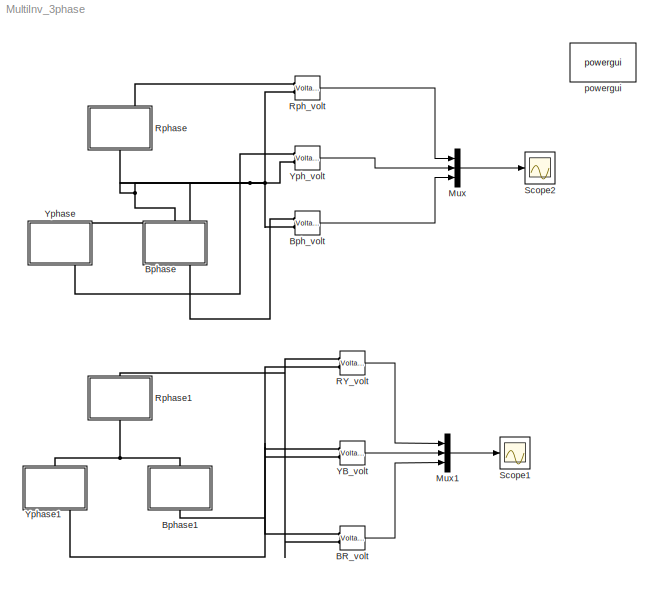
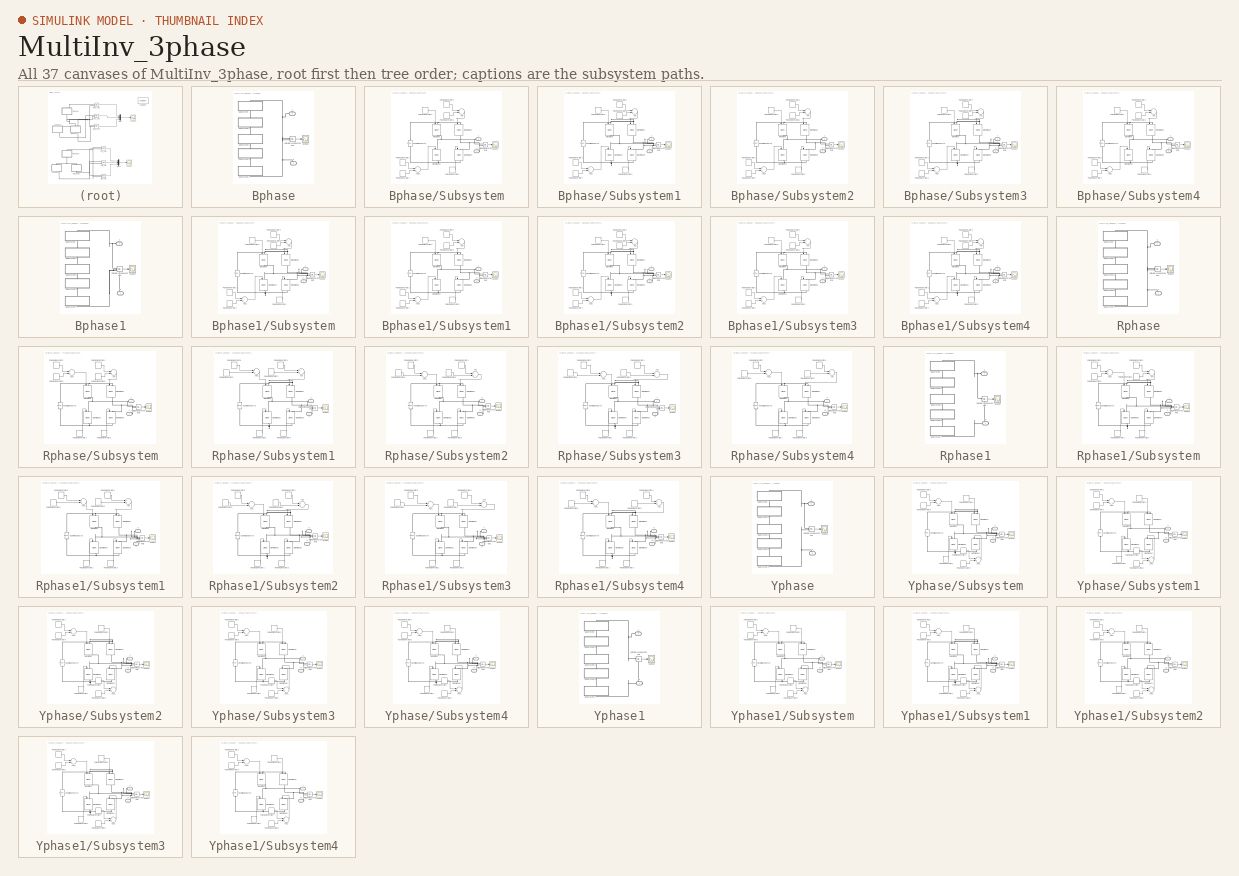
[diagram: thumbnail index - all 37 canvases of the model, root first then tree order]
MODEL MultiInv_3phase
KIND model
BLOCK [Reference] BR_volt  REF=powerlib/Measurements/Voltage Measurement
  FunctionWithSeparateData = off
  GeneratePreprocessorConditionals = off
  OutputType = Complex
  PSBequivalent = 0
  PhasorSimulation = off
  Ports = [0, 1, 0, 0, 0, 2]
  RTWMemSecDataConstants = Inherit from model
  RTWMemSecDataInternal = Inherit from model
  RTWMemSecDataParameters = Inherit from model
  RTWMemSecFuncExecute = Inherit from model
  RTWMemSecFuncInitTerm = Inherit from model
  SID = 920
  ShowPortLabels = FromPortIcon
  SourceBlock = powerlib/Measurements/Voltage Measurement
  SourceType = Voltage Measurement
  SystemSampleTime = -1
BLOCK [Reference] Bph_volt  REF=powerlib/Measurements/Voltage Measurement
  FunctionWithSeparateData = off
  GeneratePreprocessorConditionals = off
  OutputType = Complex
  PSBequivalent = 0
  PhasorSimulation = off
  Ports = [0, 1, 0, 0, 0, 2]
  RTWMemSecDataConstants = Inherit from model
  RTWMemSecDataInternal = Inherit from model
  RTWMemSecDataParameters = Inherit from model
  RTWMemSecFuncExecute = Inherit from model
  RTWMemSecFuncInitTerm = Inherit from model
  SID = 631
  ShowPortLabels = FromPortIcon
  SourceBlock = powerlib/Measurements/Voltage Measurement
  SourceType = Voltage Measurement
  SystemSampleTime = -1
BLOCK [SubSystem] Bphase
  FunctionWithSeparateData = off
  MaskHideContents = off
  MinAlgLoopOccurrences = off
  Opaque = off
  Ports = [0, 0, 0, 0, 0, 1, 1]
  PropExecContextOutsideSubsystem = off
  RTWSystemCode = Auto
  RequestExecContextInheritance = off
  SID = 382
BLOCK [PMIOPort] Bphase/1
  Port = 1
  SID = 475
  Side = Left
  Tag = PMCPort
BLOCK [PMIOPort] Bphase/2
  Port = 2
  SID = 476
  Side = Right
  Tag = PMCPort
BLOCK [Scope] Bphase/Scope2
  DataFormat = StructureWithTime
  Floating = off
  MaxDataPoints = 5000000
  NumInputPorts = 1
  Ports = [1]
  SID = 383
  SampleTime = 0
  SaveName = OutVolt_Bph
  SaveToWorkspace = on
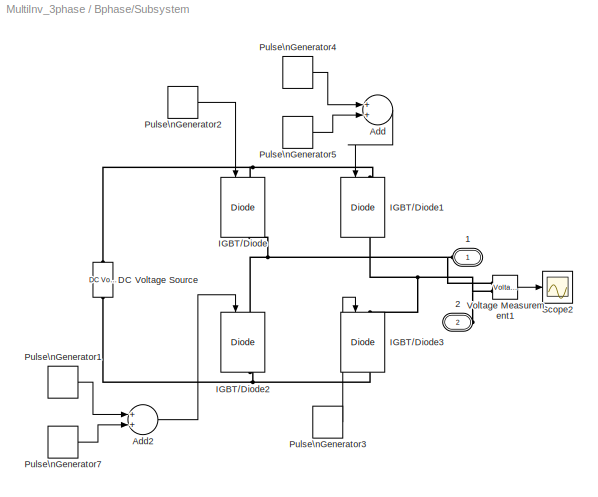
BLOCK [SubSystem] Bphase/Subsystem
  FunctionWithSeparateData = off
  MaskHideContents = off
  MinAlgLoopOccurrences = off
  Opaque = off
  Ports = [0, 0, 0, 0, 0, 1, 1]
  PropExecContextOutsideSubsystem = off
  RTWSystemCode = Auto
  RequestExecContextInheritance = off
  SID = 384
BLOCK [PMIOPort] Bphase/Subsystem/1
  Port = 1
  SID = 400
  Side = Left
  Tag = PMCPort
BLOCK [PMIOPort] Bphase/Subsystem/2
  Port = 2
  SID = 401
  Side = Right
  Tag = PMCPort
BLOCK [Sum] Bphase/Subsystem/Add
  InputSameDT = off
  OutDataTypeStr = Inherit: Inherit via internal rule
  Ports = [2, 1]
  SID = 385
  SaturateOnIntegerOverflow = off
BLOCK [Sum] Bphase/Subsystem/Add2
  InputSameDT = off
  OutDataTypeStr = Inherit: Inherit via internal rule
  Ports = [2, 1]
  SID = 477
  SaturateOnIntegerOverflow = off
BLOCK [Reference] Bphase/Subsystem/DC Voltage Source  REF=powerlib/Electrical\nSources/DC Voltage Source
  Amplitude = 12
  FunctionWithSeparateData = off
  GeneratePreprocessorConditionals = off
  Measurements = None
  Ports = [0, 0, 0, 0, 0, 1, 1]
  RTWMemSecDataConstants = Inherit from model
  RTWMemSecDataInternal = Inherit from model
  RTWMemSecDataParameters = Inherit from model
  RTWMemSecFuncExecute = Inherit from model
  RTWMemSecFuncInitTerm = Inherit from model
  SID = 387
  ShowPortLabels = FromPortIcon
  SourceBlock = powerlib/Electrical\nSources/DC Voltage Source
  SourceType = DC Voltage Source
  SystemSampleTime = -1
BLOCK [Reference] Bphase/Subsystem/IGBT//Diode  REF=powerlib/Power\nElectronics/IGBT//Diode
  Cs = inf
  FunctionWithSeparateData = off
  GeneratePreprocessorConditionals = off
  Measurements = on
  Ports = [1, 1, 0, 0, 0, 1, 1]
  RTWMemSecDataConstants = Inherit from model
  RTWMemSecDataInternal = Inherit from model
  RTWMemSecDataParameters = Inherit from model
  RTWMemSecFuncExecute = Inherit from model
  RTWMemSecFuncInitTerm = Inherit from model
  Ron = 1e-3
  Rs = 1e5
  SID = 388
  ShowPortLabels = FromPortIcon
  SourceBlock = powerlib/Power\nElectronics/IGBT//Diode
  SourceType = IGBT/Diode
  SystemSampleTime = -1
BLOCK [Reference] Bphase/Subsystem/IGBT//Diode1  REF=powerlib/Power\nElectronics/IGBT//Diode
  Cs = inf
  FunctionWithSeparateData = off
  GeneratePreprocessorConditionals = off
  Measurements = on
  Ports = [1, 1, 0, 0, 0, 1, 1]
  RTWMemSecDataConstants = Inherit from model
  RTWMemSecDataInternal = Inherit from model
  RTWMemSecDataParameters = Inherit from model
  RTWMemSecFuncExecute = Inherit from model
  RTWMemSecFuncInitTerm = Inherit from model
  Ron = 1e-3
  Rs = 1e5
  SID = 389
  ShowPortLabels = FromPortIcon
  SourceBlock = powerlib/Power\nElectronics/IGBT//Diode
  SourceType = IGBT/Diode
  SystemSampleTime = -1
BLOCK [Reference] Bphase/Subsystem/IGBT//Diode2  REF=powerlib/Power\nElectronics/IGBT//Diode
  Cs = inf
  FunctionWithSeparateData = off
  GeneratePreprocessorConditionals = off
  Measurements = on
  Ports = [1, 1, 0, 0, 0, 1, 1]
  RTWMemSecDataConstants = Inherit from model
  RTWMemSecDataInternal = Inherit from model
  RTWMemSecDataParameters = Inherit from model
  RTWMemSecFuncExecute = Inherit from model
  RTWMemSecFuncInitTerm = Inherit from model
  Ron = 1e-3
  Rs = 1e5
  SID = 390
  ShowPortLabels = FromPortIcon
  SourceBlock = powerlib/Power\nElectronics/IGBT//Diode
  SourceType = IGBT/Diode
  SystemSampleTime = -1
BLOCK [Reference] Bphase/Subsystem/IGBT//Diode3  REF=powerlib/Power\nElectronics/IGBT//Diode
  Cs = inf
  FunctionWithSeparateData = off
  GeneratePreprocessorConditionals = off
  Measurements = on
  Ports = [1, 1, 0, 0, 0, 1, 1]
  RTWMemSecDataConstants = Inherit from model
  RTWMemSecDataInternal = Inherit from model
  RTWMemSecDataParameters = Inherit from model
  RTWMemSecFuncExecute = Inherit from model
  RTWMemSecFuncInitTerm = Inherit from model
  Ron = 1e-3
  Rs = 1e5
  SID = 391
  ShowPortLabels = FromPortIcon
  SourceBlock = powerlib/Power\nElectronics/IGBT//Diode
  SourceType = IGBT/Diode
  SystemSampleTime = -1
BLOCK [DiscretePulseGenerator] Bphase/Subsystem/Pulse\nGenerator1
  Period = t
  Ports = [0, 1]
  PulseType = Time based
  PulseWidth = (120-a)/3.6
  SID = 478
BLOCK [DiscretePulseGenerator] Bphase/Subsystem/Pulse\nGenerator2
  Period = t
  PhaseDelay = (120-a)*(t/360)
  Ports = [0, 1]
  PulseType = Time based
  PulseWidth = 50+((5*a)/9)
  SID = 393
BLOCK [DiscretePulseGenerator] Bphase/Subsystem/Pulse\nGenerator3
  Period = t
  PhaseDelay = ((a+120)*t)/360
  Ports = [0, 1]
  PulseType = Time based
  PulseWidth = 50-((5*a)/9)
  SID = 394
BLOCK [DiscretePulseGenerator] Bphase/Subsystem/Pulse\nGenerator4
  Period = t
  Ports = [0, 1]
  PulseType = Time based
  PulseWidth = (120+a)/3.6
  SID = 395
BLOCK [DiscretePulseGenerator] Bphase/Subsystem/Pulse\nGenerator5
  Period = t
  PhaseDelay = (300-a)*(t/360)
  Ports = [0, 1]
  PulseType = Time based
  PulseWidth = (60+a)/3.6
  SID = 396
BLOCK [DiscretePulseGenerator] Bphase/Subsystem/Pulse\nGenerator7
  Period = t
  PhaseDelay = (300+a)*(t/360)
  Ports = [0, 1]
  PulseType = Time based
  PulseWidth = (60-a)/3.6
  SID = 479
BLOCK [Scope] Bphase/Subsystem/Scope2
  DataFormat = StructureWithTime
  Floating = off
  NumInputPorts = 1
  Ports = [1]
  SID = 398
  SampleTime = 0
  SaveName = ScopeData6
  ZoomMode = yonly
BLOCK [Reference] Bphase/Subsystem/Voltage Measurement1  REF=powerlib/Measurements/Voltage Measurement
  FunctionWithSeparateData = off
  GeneratePreprocessorConditionals = off
  OutputType = Complex
  PSBequivalent = 0
  PhasorSimulation = off
  Ports = [0, 1, 0, 0, 0, 2]
  RTWMemSecDataConstants = Inherit from model
  RTWMemSecDataInternal = Inherit from model
  RTWMemSecDataParameters = Inherit from model
  RTWMemSecFuncExecute = Inherit from model
  RTWMemSecFuncInitTerm = Inherit from model
  SID = 399
  ShowPortLabels = FromPortIcon
  SourceBlock = powerlib/Measurements/Voltage Measurement
  SourceType = Voltage Measurement
  SystemSampleTime = -1
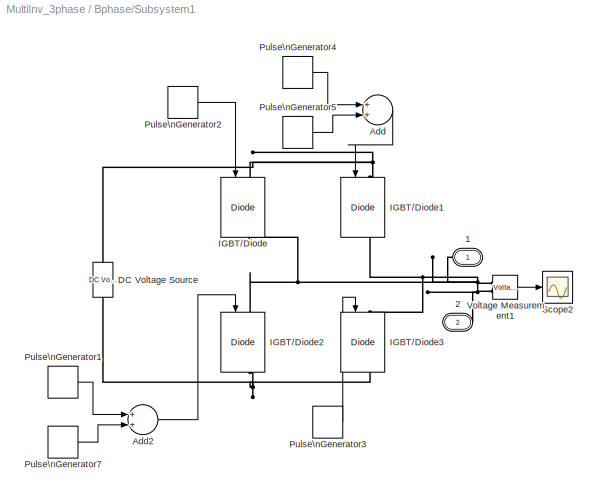
BLOCK [SubSystem] Bphase/Subsystem1
  FunctionWithSeparateData = off
  MaskHideContents = off
  MinAlgLoopOccurrences = off
  Opaque = off
  Ports = [0, 0, 0, 0, 0, 1, 1]
  PropExecContextOutsideSubsystem = off
  RTWSystemCode = Auto
  RequestExecContextInheritance = off
  SID = 480
BLOCK [PMIOPort] Bphase/Subsystem1/1
  Port = 1
  SID = 496
  Side = Left
  Tag = PMCPort
BLOCK [PMIOPort] Bphase/Subsystem1/2
  Port = 2
  SID = 497
  Side = Right
  Tag = PMCPort
BLOCK [Sum] Bphase/Subsystem1/Add
  InputSameDT = off
  OutDataTypeStr = Inherit: Inherit via internal rule
  Ports = [2, 1]
  SID = 481
  SaturateOnIntegerOverflow = off
BLOCK [Sum] Bphase/Subsystem1/Add2
  InputSameDT = off
  OutDataTypeStr = Inherit: Inherit via internal rule
  Ports = [2, 1]
  SID = 482
  SaturateOnIntegerOverflow = off
BLOCK [Reference] Bphase/Subsystem1/DC Voltage Source  REF=powerlib/Electrical\nSources/DC Voltage Source
  Amplitude = 12
  FunctionWithSeparateData = off
  GeneratePreprocessorConditionals = off
  Measurements = None
  Ports = [0, 0, 0, 0, 0, 1, 1]
  RTWMemSecDataConstants = Inherit from model
  RTWMemSecDataInternal = Inherit from model
  RTWMemSecDataParameters = Inherit from model
  RTWMemSecFuncExecute = Inherit from model
  RTWMemSecFuncInitTerm = Inherit from model
  SID = 483
  ShowPortLabels = FromPortIcon
  SourceBlock = powerlib/Electrical\nSources/DC Voltage Source
  SourceType = DC Voltage Source
  SystemSampleTime = -1
BLOCK [Reference] Bphase/Subsystem1/IGBT//Diode  REF=powerlib/Power\nElectronics/IGBT//Diode
  Cs = inf
  FunctionWithSeparateData = off
  GeneratePreprocessorConditionals = off
  Measurements = on
  Ports = [1, 1, 0, 0, 0, 1, 1]
  RTWMemSecDataConstants = Inherit from model
  RTWMemSecDataInternal = Inherit from model
  RTWMemSecDataParameters = Inherit from model
  RTWMemSecFuncExecute = Inherit from model
  RTWMemSecFuncInitTerm = Inherit from model
  Ron = 1e-3
  Rs = 1e5
  SID = 484
  ShowPortLabels = FromPortIcon
  SourceBlock = powerlib/Power\nElectronics/IGBT//Diode
  SourceType = IGBT/Diode
  SystemSampleTime = -1
BLOCK [Reference] Bphase/Subsystem1/IGBT//Diode1  REF=powerlib/Power\nElectronics/IGBT//Diode
  Cs = inf
  FunctionWithSeparateData = off
  GeneratePreprocessorConditionals = off
  Measurements = on
  Ports = [1, 1, 0, 0, 0, 1, 1]
  RTWMemSecDataConstants = Inherit from model
  RTWMemSecDataInternal = Inherit from model
  RTWMemSecDataParameters = Inherit from model
  RTWMemSecFuncExecute = Inherit from model
  RTWMemSecFuncInitTerm = Inherit from model
  Ron = 1e-3
  Rs = 1e5
  SID = 485
  ShowPortLabels = FromPortIcon
  SourceBlock = powerlib/Power\nElectronics/IGBT//Diode
  SourceType = IGBT/Diode
  SystemSampleTime = -1
BLOCK [Reference] Bphase/Subsystem1/IGBT//Diode2  REF=powerlib/Power\nElectronics/IGBT//Diode
  Cs = inf
  FunctionWithSeparateData = off
  GeneratePreprocessorConditionals = off
  Measurements = on
  Ports = [1, 1, 0, 0, 0, 1, 1]
  RTWMemSecDataConstants = Inherit from model
  RTWMemSecDataInternal = Inherit from model
  RTWMemSecDataParameters = Inherit from model
  RTWMemSecFuncExecute = Inherit from model
  RTWMemSecFuncInitTerm = Inherit from model
  Ron = 1e-3
  Rs = 1e5
  SID = 486
  ShowPortLabels = FromPortIcon
  SourceBlock = powerlib/Power\nElectronics/IGBT//Diode
  SourceType = IGBT/Diode
  SystemSampleTime = -1
BLOCK [Reference] Bphase/Subsystem1/IGBT//Diode3  REF=powerlib/Power\nElectronics/IGBT//Diode
  Cs = inf
  FunctionWithSeparateData = off
  GeneratePreprocessorConditionals = off
  Measurements = on
  Ports = [1, 1, 0, 0, 0, 1, 1]
  RTWMemSecDataConstants = Inherit from model
  RTWMemSecDataInternal = Inherit from model
  RTWMemSecDataParameters = Inherit from model
  RTWMemSecFuncExecute = Inherit from model
  RTWMemSecFuncInitTerm = Inherit from model
  Ron = 1e-3
  Rs = 1e5
  SID = 487
  ShowPortLabels = FromPortIcon
  SourceBlock = powerlib/Power\nElectronics/IGBT//Diode
  SourceType = IGBT/Diode
  SystemSampleTime = -1
BLOCK [DiscretePulseGenerator] Bphase/Subsystem1/Pulse\nGenerator1
  Period = t
  Ports = [0, 1]
  PulseType = Time based
  PulseWidth = (120-b)/3.6
  SID = 488
BLOCK [DiscretePulseGenerator] Bphase/Subsystem1/Pulse\nGenerator2
  Period = t
  PhaseDelay = (120-b)*(t/360)
  Ports = [0, 1]
  PulseType = Time based
  PulseWidth = 50+((5*b)/9)
  SID = 489
BLOCK [DiscretePulseGenerator] Bphase/Subsystem1/Pulse\nGenerator3
  Period = t
  PhaseDelay = ((b+120)*t)/360
  Ports = [0, 1]
  PulseType = Time based
  PulseWidth = 50-((5*b)/9)
  SID = 490
BLOCK [DiscretePulseGenerator] Bphase/Subsystem1/Pulse\nGenerator4
  Period = t
  Ports = [0, 1]
  PulseType = Time based
  PulseWidth = (120+b)/3.6
  SID = 491
BLOCK [DiscretePulseGenerator] Bphase/Subsystem1/Pulse\nGenerator5
  Period = t
  PhaseDelay = (300-b)*(t/360)
  Ports = [0, 1]
  PulseType = Time based
  PulseWidth = (60+b)/3.6
  SID = 492
BLOCK [DiscretePulseGenerator] Bphase/Subsystem1/Pulse\nGenerator7
  Period = t
  PhaseDelay = (300+b)*(t/360)
  Ports = [0, 1]
  PulseType = Time based
  PulseWidth = (60-b)/3.6
  SID = 493
BLOCK [Scope] Bphase/Subsystem1/Scope2
  DataFormat = StructureWithTime
  Floating = off
  NumInputPorts = 1
  Ports = [1]
  SID = 494
  SampleTime = 0
  SaveName = ScopeData6
  ZoomMode = yonly
BLOCK [Reference] Bphase/Subsystem1/Voltage Measurement1  REF=powerlib/Measurements/Voltage Measurement
  FunctionWithSeparateData = off
  GeneratePreprocessorConditionals = off
  OutputType = Complex
  PSBequivalent = 0
  PhasorSimulation = off
  Ports = [0, 1, 0, 0, 0, 2]
  RTWMemSecDataConstants = Inherit from model
  RTWMemSecDataInternal = Inherit from model
  RTWMemSecDataParameters = Inherit from model
  RTWMemSecFuncExecute = Inherit from model
  RTWMemSecFuncInitTerm = Inherit from model
  SID = 495
  ShowPortLabels = FromPortIcon
  SourceBlock = powerlib/Measurements/Voltage Measurement
  SourceType = Voltage Measurement
  SystemSampleTime = -1
BLOCK [SubSystem] Bphase/Subsystem2
  FunctionWithSeparateData = off
  MaskHideContents = off
  MinAlgLoopOccurrences = off
  Opaque = off
  Ports = [0, 0, 0, 0, 0, 1, 1]
  PropExecContextOutsideSubsystem = off
  RTWSystemCode = Auto
  RequestExecContextInheritance = off
  SID = 498
BLOCK [PMIOPort] Bphase/Subsystem2/1
  Port = 1
  SID = 514
  Side = Left
  Tag = PMCPort
BLOCK [PMIOPort] Bphase/Subsystem2/2
  Port = 2
  SID = 515
  Side = Right
  Tag = PMCPort
BLOCK [Sum] Bphase/Subsystem2/Add
  InputSameDT = off
  OutDataTypeStr = Inherit: Inherit via internal rule
  Ports = [2, 1]
  SID = 499
  SaturateOnIntegerOverflow = off
BLOCK [Sum] Bphase/Subsystem2/Add2
  InputSameDT = off
  OutDataTypeStr = Inherit: Inherit via internal rule
  Ports = [2, 1]
  SID = 500
  SaturateOnIntegerOverflow = off
BLOCK [Reference] Bphase/Subsystem2/DC Voltage Source  REF=powerlib/Electrical\nSources/DC Voltage Source
  Amplitude = 12
  FunctionWithSeparateData = off
  GeneratePreprocessorConditionals = off
  Measurements = None
  Ports = [0, 0, 0, 0, 0, 1, 1]
  RTWMemSecDataConstants = Inherit from model
  RTWMemSecDataInternal = Inherit from model
  RTWMemSecDataParameters = Inherit from model
  RTWMemSecFuncExecute = Inherit from model
  RTWMemSecFuncInitTerm = Inherit from model
  SID = 501
  ShowPortLabels = FromPortIcon
  SourceBlock = powerlib/Electrical\nSources/DC Voltage Source
  SourceType = DC Voltage Source
  SystemSampleTime = -1
BLOCK [Reference] Bphase/Subsystem2/IGBT//Diode  REF=powerlib/Power\nElectronics/IGBT//Diode
  Cs = inf
  FunctionWithSeparateData = off
  GeneratePreprocessorConditionals = off
  Measurements = on
  Ports = [1, 1, 0, 0, 0, 1, 1]
  RTWMemSecDataConstants = Inherit from model
  RTWMemSecDataInternal = Inherit from model
  RTWMemSecDataParameters = Inherit from model
  RTWMemSecFuncExecute = Inherit from model
  RTWMemSecFuncInitTerm = Inherit from model
  Ron = 1e-3
  Rs = 1e5
  SID = 502
  ShowPortLabels = FromPortIcon
  SourceBlock = powerlib/Power\nElectronics/IGBT//Diode
  SourceType = IGBT/Diode
  SystemSampleTime = -1
BLOCK [Reference] Bphase/Subsystem2/IGBT//Diode1  REF=powerlib/Power\nElectronics/IGBT//Diode
  Cs = inf
  FunctionWithSeparateData = off
  GeneratePreprocessorConditionals = off
  Measurements = on
  Ports = [1, 1, 0, 0, 0, 1, 1]
  RTWMemSecDataConstants = Inherit from model
  RTWMemSecDataInternal = Inherit from model
  RTWMemSecDataParameters = Inherit from model
  RTWMemSecFuncExecute = Inherit from model
  RTWMemSecFuncInitTerm = Inherit from model
  Ron = 1e-3
  Rs = 1e5
  SID = 503
  ShowPortLabels = FromPortIcon
  SourceBlock = powerlib/Power\nElectronics/IGBT//Diode
  SourceType = IGBT/Diode
  SystemSampleTime = -1
BLOCK [Reference] Bphase/Subsystem2/IGBT//Diode2  REF=powerlib/Power\nElectronics/IGBT//Diode
  Cs = inf
  FunctionWithSeparateData = off
  GeneratePreprocessorConditionals = off
  Measurements = on
  Ports = [1, 1, 0, 0, 0, 1, 1]
  RTWMemSecDataConstants = Inherit from model
  RTWMemSecDataInternal = Inherit from model
  RTWMemSecDataParameters = Inherit from model
  RTWMemSecFuncExecute = Inherit from model
  RTWMemSecFuncInitTerm = Inherit from model
  Ron = 1e-3
  Rs = 1e5
  SID = 504
  ShowPortLabels = FromPortIcon
  SourceBlock = powerlib/Power\nElectronics/IGBT//Diode
  SourceType = IGBT/Diode
  SystemSampleTime = -1
BLOCK [Reference] Bphase/Subsystem2/IGBT//Diode3  REF=powerlib/Power\nElectronics/IGBT//Diode
  Cs = inf
  FunctionWithSeparateData = off
  GeneratePreprocessorConditionals = off
  Measurements = on
  Ports = [1, 1, 0, 0, 0, 1, 1]
  RTWMemSecDataConstants = Inherit from model
  RTWMemSecDataInternal = Inherit from model
  RTWMemSecDataParameters = Inherit from model
  RTWMemSecFuncExecute = Inherit from model
  RTWMemSecFuncInitTerm = Inherit from model
  Ron = 1e-3
  Rs = 1e5
  SID = 505
  ShowPortLabels = FromPortIcon
  SourceBlock = powerlib/Power\nElectronics/IGBT//Diode
  SourceType = IGBT/Diode
  SystemSampleTime = -1
BLOCK [DiscretePulseGenerator] Bphase/Subsystem2/Pulse\nGenerator1
  Period = t
  Ports = [0, 1]
  PulseType = Time based
  PulseWidth = (120-c)/3.6
  SID = 506
BLOCK [DiscretePulseGenerator] Bphase/Subsystem2/Pulse\nGenerator2
  Period = t
  PhaseDelay = (120-c)*(t/360)
  Ports = [0, 1]
  PulseType = Time based
  PulseWidth = 50+((5*c)/9)
  SID = 507
BLOCK [DiscretePulseGenerator] Bphase/Subsystem2/Pulse\nGenerator3
  Period = t
  PhaseDelay = ((c+120)*t)/360
  Ports = [0, 1]
  PulseType = Time based
  PulseWidth = 50-((5*c)/9)
  SID = 508
BLOCK [DiscretePulseGenerator] Bphase/Subsystem2/Pulse\nGenerator4
  Period = t
  Ports = [0, 1]
  PulseType = Time based
  PulseWidth = (120+c)/3.6
  SID = 509
BLOCK [DiscretePulseGenerator] Bphase/Subsystem2/Pulse\nGenerator5
  Period = t
  PhaseDelay = (300-c)*(t/360)
  Ports = [0, 1]
  PulseType = Time based
  PulseWidth = (60+c)/3.6
  SID = 510
BLOCK [DiscretePulseGenerator] Bphase/Subsystem2/Pulse\nGenerator7
  Period = t
  PhaseDelay = (300+c)*(t/360)
  Ports = [0, 1]
  PulseType = Time based
  PulseWidth = (60-c)/3.6
  SID = 511
BLOCK [Scope] Bphase/Subsystem2/Scope2
  DataFormat = StructureWithTime
  Floating = off
  NumInputPorts = 1
  Ports = [1]
  SID = 512
  SampleTime = 0
  SaveName = ScopeData6
  ZoomMode = yonly
BLOCK [Reference] Bphase/Subsystem2/Voltage Measurement1  REF=powerlib/Measurements/Voltage Measurement
  FunctionWithSeparateData = off
  GeneratePreprocessorConditionals = off
  OutputType = Complex
  PSBequivalent = 0
  PhasorSimulation = off
  Ports = [0, 1, 0, 0, 0, 2]
  RTWMemSecDataConstants = Inherit from model
  RTWMemSecDataInternal = Inherit from model
  RTWMemSecDataParameters = Inherit from model
  RTWMemSecFuncExecute = Inherit from model
  RTWMemSecFuncInitTerm = Inherit from model
  SID = 513
  ShowPortLabels = FromPortIcon
  SourceBlock = powerlib/Measurements/Voltage Measurement
  SourceType = Voltage Measurement
  SystemSampleTime = -1
BLOCK [SubSystem] Bphase/Subsystem3
  FunctionWithSeparateData = off
  MaskHideContents = off
  MinAlgLoopOccurrences = off
  Opaque = off
  Ports = [0, 0, 0, 0, 0, 1, 1]
  PropExecContextOutsideSubsystem = off
  RTWSystemCode = Auto
  RequestExecContextInheritance = off
  SID = 516
BLOCK [PMIOPort] Bphase/Subsystem3/1
  Port = 1
  SID = 532
  Side = Left
  Tag = PMCPort
BLOCK [PMIOPort] Bphase/Subsystem3/2
  Port = 2
  SID = 533
  Side = Right
  Tag = PMCPort
BLOCK [Sum] Bphase/Subsystem3/Add
  InputSameDT = off
  OutDataTypeStr = Inherit: Inherit via internal rule
  Ports = [2, 1]
  SID = 517
  SaturateOnIntegerOverflow = off
BLOCK [Sum] Bphase/Subsystem3/Add2
  InputSameDT = off
  OutDataTypeStr = Inherit: Inherit via internal rule
  Ports = [2, 1]
  SID = 518
  SaturateOnIntegerOverflow = off
BLOCK [Reference] Bphase/Subsystem3/DC Voltage Source  REF=powerlib/Electrical\nSources/DC Voltage Source
  Amplitude = 12
  FunctionWithSeparateData = off
  GeneratePreprocessorConditionals = off
  Measurements = None
  Ports = [0, 0, 0, 0, 0, 1, 1]
  RTWMemSecDataConstants = Inherit from model
  RTWMemSecDataInternal = Inherit from model
  RTWMemSecDataParameters = Inherit from model
  RTWMemSecFuncExecute = Inherit from model
  RTWMemSecFuncInitTerm = Inherit from model
  SID = 519
  ShowPortLabels = FromPortIcon
  SourceBlock = powerlib/Electrical\nSources/DC Voltage Source
  SourceType = DC Voltage Source
  SystemSampleTime = -1
BLOCK [Reference] Bphase/Subsystem3/IGBT//Diode  REF=powerlib/Power\nElectronics/IGBT//Diode
  Cs = inf
  FunctionWithSeparateData = off
  GeneratePreprocessorConditionals = off
  Measurements = on
  Ports = [1, 1, 0, 0, 0, 1, 1]
  RTWMemSecDataConstants = Inherit from model
  RTWMemSecDataInternal = Inherit from model
  RTWMemSecDataParameters = Inherit from model
  RTWMemSecFuncExecute = Inherit from model
  RTWMemSecFuncInitTerm = Inherit from model
  Ron = 1e-3
  Rs = 1e5
  SID = 520
  ShowPortLabels = FromPortIcon
  SourceBlock = powerlib/Power\nElectronics/IGBT//Diode
  SourceType = IGBT/Diode
  SystemSampleTime = -1
BLOCK [Reference] Bphase/Subsystem3/IGBT//Diode1  REF=powerlib/Power\nElectronics/IGBT//Diode
  Cs = inf
  FunctionWithSeparateData = off
  GeneratePreprocessorConditionals = off
  Measurements = on
  Ports = [1, 1, 0, 0, 0, 1, 1]
  RTWMemSecDataConstants = Inherit from model
  RTWMemSecDataInternal = Inherit from model
  RTWMemSecDataParameters = Inherit from model
  RTWMemSecFuncExecute = Inherit from model
  RTWMemSecFuncInitTerm = Inherit from model
  Ron = 1e-3
  Rs = 1e5
  SID = 521
  ShowPortLabels = FromPortIcon
  SourceBlock = powerlib/Power\nElectronics/IGBT//Diode
  SourceType = IGBT/Diode
  SystemSampleTime = -1
BLOCK [Reference] Bphase/Subsystem3/IGBT//Diode2  REF=powerlib/Power\nElectronics/IGBT//Diode
  Cs = inf
  FunctionWithSeparateData = off
  GeneratePreprocessorConditionals = off
  Measurements = on
  Ports = [1, 1, 0, 0, 0, 1, 1]
  RTWMemSecDataConstants = Inherit from model
  RTWMemSecDataInternal = Inherit from model
  RTWMemSecDataParameters = Inherit from model
  RTWMemSecFuncExecute = Inherit from model
  RTWMemSecFuncInitTerm = Inherit from model
  Ron = 1e-3
  Rs = 1e5
  SID = 522
  ShowPortLabels = FromPortIcon
  SourceBlock = powerlib/Power\nElectronics/IGBT//Diode
  SourceType = IGBT/Diode
  SystemSampleTime = -1
BLOCK [Reference] Bphase/Subsystem3/IGBT//Diode3  REF=powerlib/Power\nElectronics/IGBT//Diode
  Cs = inf
  FunctionWithSeparateData = off
  GeneratePreprocessorConditionals = off
  Measurements = on
  Ports = [1, 1, 0, 0, 0, 1, 1]
  RTWMemSecDataConstants = Inherit from model
  RTWMemSecDataInternal = Inherit from model
  RTWMemSecDataParameters = Inherit from model
  RTWMemSecFuncExecute = Inherit from model
  RTWMemSecFuncInitTerm = Inherit from model
  Ron = 1e-3
  Rs = 1e5
  SID = 523
  ShowPortLabels = FromPortIcon
  SourceBlock = powerlib/Power\nElectronics/IGBT//Diode
  SourceType = IGBT/Diode
  SystemSampleTime = -1
BLOCK [DiscretePulseGenerator] Bphase/Subsystem3/Pulse\nGenerator1
  Period = t
  Ports = [0, 1]
  PulseType = Time based
  PulseWidth = (120-d)/3.6
  SID = 524
BLOCK [DiscretePulseGenerator] Bphase/Subsystem3/Pulse\nGenerator2
  Period = t
  PhaseDelay = (120-d)*(t/360)
  Ports = [0, 1]
  PulseType = Time based
  PulseWidth = 50+((5*d)/9)
  SID = 525
BLOCK [DiscretePulseGenerator] Bphase/Subsystem3/Pulse\nGenerator3
  Period = t
  PhaseDelay = ((d+120)*t)/360
  Ports = [0, 1]
  PulseType = Time based
  PulseWidth = 50-((5*d)/9)
  SID = 526
BLOCK [DiscretePulseGenerator] Bphase/Subsystem3/Pulse\nGenerator4
  Period = t
  Ports = [0, 1]
  PulseType = Time based
  PulseWidth = (120+d)/3.6
  SID = 527
BLOCK [DiscretePulseGenerator] Bphase/Subsystem3/Pulse\nGenerator5
  Period = t
  PhaseDelay = (300-d)*(t/360)
  Ports = [0, 1]
  PulseType = Time based
  PulseWidth = (60+d)/3.6
  SID = 528
BLOCK [DiscretePulseGenerator] Bphase/Subsystem3/Pulse\nGenerator7
  Period = t
  PhaseDelay = (300+d)*(t/360)
  Ports = [0, 1]
  PulseType = Time based
  PulseWidth = (60-d)/3.6
  SID = 529
BLOCK [Scope] Bphase/Subsystem3/Scope2
  DataFormat = StructureWithTime
  Floating = off
  NumInputPorts = 1
  Ports = [1]
  SID = 530
  SampleTime = 0
  SaveName = ScopeData6
  ZoomMode = yonly
BLOCK [Reference] Bphase/Subsystem3/Voltage Measurement1  REF=powerlib/Measurements/Voltage Measurement
  FunctionWithSeparateData = off
  GeneratePreprocessorConditionals = off
  OutputType = Complex
  PSBequivalent = 0
  PhasorSimulation = off
  Ports = [0, 1, 0, 0, 0, 2]
  RTWMemSecDataConstants = Inherit from model
  RTWMemSecDataInternal = Inherit from model
  RTWMemSecDataParameters = Inherit from model
  RTWMemSecFuncExecute = Inherit from model
  RTWMemSecFuncInitTerm = Inherit from model
  SID = 531
  ShowPortLabels = FromPortIcon
  SourceBlock = powerlib/Measurements/Voltage Measurement
  SourceType = Voltage Measurement
  SystemSampleTime = -1
BLOCK [SubSystem] Bphase/Subsystem4
  FunctionWithSeparateData = off
  MaskHideContents = off
  MinAlgLoopOccurrences = off
  Opaque = off
  Ports = [0, 0, 0, 0, 0, 1, 1]
  PropExecContextOutsideSubsystem = off
  RTWSystemCode = Auto
  RequestExecContextInheritance = off
  SID = 534
BLOCK [PMIOPort] Bphase/Subsystem4/1
  Port = 1
  SID = 550
  Side = Left
  Tag = PMCPort
BLOCK [PMIOPort] Bphase/Subsystem4/2
  Port = 2
  SID = 551
  Side = Right
  Tag = PMCPort
BLOCK [Sum] Bphase/Subsystem4/Add
  InputSameDT = off
  OutDataTypeStr = Inherit: Inherit via internal rule
  Ports = [2, 1]
  SID = 535
  SaturateOnIntegerOverflow = off
BLOCK [Sum] Bphase/Subsystem4/Add2
  InputSameDT = off
  OutDataTypeStr = Inherit: Inherit via internal rule
  Ports = [2, 1]
  SID = 536
  SaturateOnIntegerOverflow = off
BLOCK [Reference] Bphase/Subsystem4/DC Voltage Source  REF=powerlib/Electrical\nSources/DC Voltage Source
  Amplitude = 12
  FunctionWithSeparateData = off
  GeneratePreprocessorConditionals = off
  Measurements = None
  Ports = [0, 0, 0, 0, 0, 1, 1]
  RTWMemSecDataConstants = Inherit from model
  RTWMemSecDataInternal = Inherit from model
  RTWMemSecDataParameters = Inherit from model
  RTWMemSecFuncExecute = Inherit from model
  RTWMemSecFuncInitTerm = Inherit from model
  SID = 537
  ShowPortLabels = FromPortIcon
  SourceBlock = powerlib/Electrical\nSources/DC Voltage Source
  SourceType = DC Voltage Source
  SystemSampleTime = -1
BLOCK [Reference] Bphase/Subsystem4/IGBT//Diode  REF=powerlib/Power\nElectronics/IGBT//Diode
  Cs = inf
  FunctionWithSeparateData = off
  GeneratePreprocessorConditionals = off
  Measurements = on
  Ports = [1, 1, 0, 0, 0, 1, 1]
  RTWMemSecDataConstants = Inherit from model
  RTWMemSecDataInternal = Inherit from model
  RTWMemSecDataParameters = Inherit from model
  RTWMemSecFuncExecute = Inherit from model
  RTWMemSecFuncInitTerm = Inherit from model
  Ron = 1e-3
  Rs = 1e5
  SID = 538
  ShowPortLabels = FromPortIcon
  SourceBlock = powerlib/Power\nElectronics/IGBT//Diode
  SourceType = IGBT/Diode
  SystemSampleTime = -1
BLOCK [Reference] Bphase/Subsystem4/IGBT//Diode1  REF=powerlib/Power\nElectronics/IGBT//Diode
  Cs = inf
  FunctionWithSeparateData = off
  GeneratePreprocessorConditionals = off
  Measurements = on
  Ports = [1, 1, 0, 0, 0, 1, 1]
  RTWMemSecDataConstants = Inherit from model
  RTWMemSecDataInternal = Inherit from model
  RTWMemSecDataParameters = Inherit from model
  RTWMemSecFuncExecute = Inherit from model
  RTWMemSecFuncInitTerm = Inherit from model
  Ron = 1e-3
  Rs = 1e5
  SID = 539
  ShowPortLabels = FromPortIcon
  SourceBlock = powerlib/Power\nElectronics/IGBT//Diode
  SourceType = IGBT/Diode
  SystemSampleTime = -1
BLOCK [Reference] Bphase/Subsystem4/IGBT//Diode2  REF=powerlib/Power\nElectronics/IGBT//Diode
  Cs = inf
  FunctionWithSeparateData = off
  GeneratePreprocessorConditionals = off
  Measurements = on
  Ports = [1, 1, 0, 0, 0, 1, 1]
  RTWMemSecDataConstants = Inherit from model
  RTWMemSecDataInternal = Inherit from model
  RTWMemSecDataParameters = Inherit from model
  RTWMemSecFuncExecute = Inherit from model
  RTWMemSecFuncInitTerm = Inherit from model
  Ron = 1e-3
  Rs = 1e5
  SID = 540
  ShowPortLabels = FromPortIcon
  SourceBlock = powerlib/Power\nElectronics/IGBT//Diode
  SourceType = IGBT/Diode
  SystemSampleTime = -1
BLOCK [Reference] Bphase/Subsystem4/IGBT//Diode3  REF=powerlib/Power\nElectronics/IGBT//Diode
  Cs = inf
  FunctionWithSeparateData = off
  GeneratePreprocessorConditionals = off
  Measurements = on
  Ports = [1, 1, 0, 0, 0, 1, 1]
  RTWMemSecDataConstants = Inherit from model
  RTWMemSecDataInternal = Inherit from model
  RTWMemSecDataParameters = Inherit from model
  RTWMemSecFuncExecute = Inherit from model
  RTWMemSecFuncInitTerm = Inherit from model
  Ron = 1e-3
  Rs = 1e5
  SID = 541
  ShowPortLabels = FromPortIcon
  SourceBlock = powerlib/Power\nElectronics/IGBT//Diode
  SourceType = IGBT/Diode
  SystemSampleTime = -1
BLOCK [DiscretePulseGenerator] Bphase/Subsystem4/Pulse\nGenerator1
  Period = t
  Ports = [0, 1]
  PulseType = Time based
  PulseWidth = (120-e)/3.6
  SID = 542
BLOCK [DiscretePulseGenerator] Bphase/Subsystem4/Pulse\nGenerator2
  Period = t
  PhaseDelay = (120-e)*(t/360)
  Ports = [0, 1]
  PulseType = Time based
  PulseWidth = 50+((5*e)/9)
  SID = 543
BLOCK [DiscretePulseGenerator] Bphase/Subsystem4/Pulse\nGenerator3
  Period = t
  PhaseDelay = ((e+120)*t)/360
  Ports = [0, 1]
  PulseType = Time based
  PulseWidth = 50-((5*e)/9)
  SID = 544
BLOCK [DiscretePulseGenerator] Bphase/Subsystem4/Pulse\nGenerator4
  Period = t
  Ports = [0, 1]
  PulseType = Time based
  PulseWidth = (120+e)/3.6
  SID = 545
BLOCK [DiscretePulseGenerator] Bphase/Subsystem4/Pulse\nGenerator5
  Period = t
  PhaseDelay = (300-e)*(t/360)
  Ports = [0, 1]
  PulseType = Time based
  PulseWidth = (60+e)/3.6
  SID = 546
BLOCK [DiscretePulseGenerator] Bphase/Subsystem4/Pulse\nGenerator7
  Period = t
  PhaseDelay = (300+e)*(t/360)
  Ports = [0, 1]
  PulseType = Time based
  PulseWidth = (60-e)/3.6
  SID = 547
BLOCK [Scope] Bphase/Subsystem4/Scope2
  DataFormat = StructureWithTime
  Floating = off
  NumInputPorts = 1
  Ports = [1]
  SID = 548
  SampleTime = 0
  SaveName = ScopeData6
  ZoomMode = yonly
BLOCK [Reference] Bphase/Subsystem4/Voltage Measurement1  REF=powerlib/Measurements/Voltage Measurement
  FunctionWithSeparateData = off
  GeneratePreprocessorConditionals = off
  OutputType = Complex
  PSBequivalent = 0
  PhasorSimulation = off
  Ports = [0, 1, 0, 0, 0, 2]
  RTWMemSecDataConstants = Inherit from model
  RTWMemSecDataInternal = Inherit from model
  RTWMemSecDataParameters = Inherit from model
  RTWMemSecFuncExecute = Inherit from model
  RTWMemSecFuncInitTerm = Inherit from model
  SID = 549
  ShowPortLabels = FromPortIcon
  SourceBlock = powerlib/Measurements/Voltage Measurement
  SourceType = Voltage Measurement
  SystemSampleTime = -1
BLOCK [Reference] Bphase/Voltage Measurement  REF=powerlib/Measurements/Voltage Measurement
  FunctionWithSeparateData = off
  GeneratePreprocessorConditionals = off
  OutputType = Complex
  PSBequivalent = 0
  PhasorSimulation = off
  Ports = [0, 1, 0, 0, 0, 2]
  RTWMemSecDataConstants = Inherit from model
  RTWMemSecDataInternal = Inherit from model
  RTWMemSecDataParameters = Inherit from model
  RTWMemSecFuncExecute = Inherit from model
  RTWMemSecFuncInitTerm = Inherit from model
  SID = 474
  ShowPortLabels = FromPortIcon
  SourceBlock = powerlib/Measurements/Voltage Measurement
  SourceType = Voltage Measurement
  SystemSampleTime = -1
BLOCK [SubSystem] Bphase1
  FunctionWithSeparateData = off
  MaskHideContents = off
  MinAlgLoopOccurrences = off
  Opaque = off
  Ports = [0, 0, 0, 0, 0, 1, 1]
  PropExecContextOutsideSubsystem = off
  RTWSystemCode = Auto
  RequestExecContextInheritance = off
  SID = 823
BLOCK [PMIOPort] Bphase1/1
  Port = 1
  SID = 916
  Side = Left
  Tag = PMCPort
BLOCK [PMIOPort] Bphase1/2
  Port = 2
  SID = 917
  Side = Right
  Tag = PMCPort
BLOCK [Scope] Bphase1/Scope2
  DataFormat = StructureWithTime
  Floating = off
  MaxDataPoints = 5000000
  NumInputPorts = 1
  Ports = [1]
  SID = 824
  SampleTime = 0
  SaveName = OutVolt_Bph1
  SaveToWorkspace = on
BLOCK [SubSystem] Bphase1/Subsystem
  FunctionWithSeparateData = off
  MaskHideContents = off
  MinAlgLoopOccurrences = off
  Opaque = off
  Ports = [0, 0, 0, 0, 0, 1, 1]
  PropExecContextOutsideSubsystem = off
  RTWSystemCode = Auto
  RequestExecContextInheritance = off
  SID = 825
BLOCK [PMIOPort] Bphase1/Subsystem/1
  Port = 1
  SID = 841
  Side = Left
  Tag = PMCPort
BLOCK [PMIOPort] Bphase1/Subsystem/2
  Port = 2
  SID = 842
  Side = Right
  Tag = PMCPort
BLOCK [Sum] Bphase1/Subsystem/Add
  InputSameDT = off
  OutDataTypeStr = Inherit: Inherit via internal rule
  Ports = [2, 1]
  SID = 826
  SaturateOnIntegerOverflow = off
BLOCK [Sum] Bphase1/Subsystem/Add2
  InputSameDT = off
  OutDataTypeStr = Inherit: Inherit via internal rule
  Ports = [2, 1]
  SID = 827
  SaturateOnIntegerOverflow = off
BLOCK [Reference] Bphase1/Subsystem/DC Voltage Source  REF=powerlib/Electrical\nSources/DC Voltage Source
  Amplitude = 12
  FunctionWithSeparateData = off
  GeneratePreprocessorConditionals = off
  Measurements = None
  Ports = [0, 0, 0, 0, 0, 1, 1]
  RTWMemSecDataConstants = Inherit from model
  RTWMemSecDataInternal = Inherit from model
  RTWMemSecDataParameters = Inherit from model
  RTWMemSecFuncExecute = Inherit from model
  RTWMemSecFuncInitTerm = Inherit from model
  SID = 828
  ShowPortLabels = FromPortIcon
  SourceBlock = powerlib/Electrical\nSources/DC Voltage Source
  SourceType = DC Voltage Source
  SystemSampleTime = -1
BLOCK [Reference] Bphase1/Subsystem/IGBT//Diode  REF=powerlib/Power\nElectronics/IGBT//Diode
  Cs = inf
  FunctionWithSeparateData = off
  GeneratePreprocessorConditionals = off
  Measurements = on
  Ports = [1, 1, 0, 0, 0, 1, 1]
  RTWMemSecDataConstants = Inherit from model
  RTWMemSecDataInternal = Inherit from model
  RTWMemSecDataParameters = Inherit from model
  RTWMemSecFuncExecute = Inherit from model
  RTWMemSecFuncInitTerm = Inherit from model
  Ron = 1e-3
  Rs = 1e5
  SID = 829
  ShowPortLabels = FromPortIcon
  SourceBlock = powerlib/Power\nElectronics/IGBT//Diode
  SourceType = IGBT/Diode
  SystemSampleTime = -1
BLOCK [Reference] Bphase1/Subsystem/IGBT//Diode1  REF=powerlib/Power\nElectronics/IGBT//Diode
  Cs = inf
  FunctionWithSeparateData = off
  GeneratePreprocessorConditionals = off
  Measurements = on
  Ports = [1, 1, 0, 0, 0, 1, 1]
  RTWMemSecDataConstants = Inherit from model
  RTWMemSecDataInternal = Inherit from model
  RTWMemSecDataParameters = Inherit from model
  RTWMemSecFuncExecute = Inherit from model
  RTWMemSecFuncInitTerm = Inherit from model
  Ron = 1e-3
  Rs = 1e5
  SID = 830
  ShowPortLabels = FromPortIcon
  SourceBlock = powerlib/Power\nElectronics/IGBT//Diode
  SourceType = IGBT/Diode
  SystemSampleTime = -1
BLOCK [Reference] Bphase1/Subsystem/IGBT//Diode2  REF=powerlib/Power\nElectronics/IGBT//Diode
  Cs = inf
  FunctionWithSeparateData = off
  GeneratePreprocessorConditionals = off
  Measurements = on
  Ports = [1, 1, 0, 0, 0, 1, 1]
  RTWMemSecDataConstants = Inherit from model
  RTWMemSecDataInternal = Inherit from model
  RTWMemSecDataParameters = Inherit from model
  RTWMemSecFuncExecute = Inherit from model
  RTWMemSecFuncInitTerm = Inherit from model
  Ron = 1e-3
  Rs = 1e5
  SID = 831
  ShowPortLabels = FromPortIcon
  SourceBlock = powerlib/Power\nElectronics/IGBT//Diode
  SourceType = IGBT/Diode
  SystemSampleTime = -1
BLOCK [Reference] Bphase1/Subsystem/IGBT//Diode3  REF=powerlib/Power\nElectronics/IGBT//Diode
  Cs = inf
  FunctionWithSeparateData = off
  GeneratePreprocessorConditionals = off
  Measurements = on
  Ports = [1, 1, 0, 0, 0, 1, 1]
  RTWMemSecDataConstants = Inherit from model
  RTWMemSecDataInternal = Inherit from model
  RTWMemSecDataParameters = Inherit from model
  RTWMemSecFuncExecute = Inherit from model
  RTWMemSecFuncInitTerm = Inherit from model
  Ron = 1e-3
  Rs = 1e5
  SID = 832
  ShowPortLabels = FromPortIcon
  SourceBlock = powerlib/Power\nElectronics/IGBT//Diode
  SourceType = IGBT/Diode
  SystemSampleTime = -1
BLOCK [DiscretePulseGenerator] Bphase1/Subsystem/Pulse\nGenerator1
  Period = t
  Ports = [0, 1]
  PulseType = Time based
  PulseWidth = (120-a)/3.6
  SID = 833
BLOCK [DiscretePulseGenerator] Bphase1/Subsystem/Pulse\nGenerator2
  Period = t
  PhaseDelay = (120-a)*(t/360)
  Ports = [0, 1]
  PulseType = Time based
  PulseWidth = 50+((5*a)/9)
  SID = 834
BLOCK [DiscretePulseGenerator] Bphase1/Subsystem/Pulse\nGenerator3
  Period = t
  PhaseDelay = ((a+120)*t)/360
  Ports = [0, 1]
  PulseType = Time based
  PulseWidth = 50-((5*a)/9)
  SID = 835
BLOCK [DiscretePulseGenerator] Bphase1/Subsystem/Pulse\nGenerator4
  Period = t
  Ports = [0, 1]
  PulseType = Time based
  PulseWidth = (120+a)/3.6
  SID = 836
BLOCK [DiscretePulseGenerator] Bphase1/Subsystem/Pulse\nGenerator5
  Period = t
  PhaseDelay = (300-a)*(t/360)
  Ports = [0, 1]
  PulseType = Time based
  PulseWidth = (60+a)/3.6
  SID = 837
BLOCK [DiscretePulseGenerator] Bphase1/Subsystem/Pulse\nGenerator7
  Period = t
  PhaseDelay = (300+a)*(t/360)
  Ports = [0, 1]
  PulseType = Time based
  PulseWidth = (60-a)/3.6
  SID = 838
BLOCK [Scope] Bphase1/Subsystem/Scope2
  DataFormat = StructureWithTime
  Floating = off
  NumInputPorts = 1
  Ports = [1]
  SID = 839
  SampleTime = 0
  SaveName = ScopeData6
  ZoomMode = yonly
BLOCK [Reference] Bphase1/Subsystem/Voltage Measurement1  REF=powerlib/Measurements/Voltage Measurement
  FunctionWithSeparateData = off
  GeneratePreprocessorConditionals = off
  OutputType = Complex
  PSBequivalent = 0
  PhasorSimulation = off
  Ports = [0, 1, 0, 0, 0, 2]
  RTWMemSecDataConstants = Inherit from model
  RTWMemSecDataInternal = Inherit from model
  RTWMemSecDataParameters = Inherit from model
  RTWMemSecFuncExecute = Inherit from model
  RTWMemSecFuncInitTerm = Inherit from model
  SID = 840
  ShowPortLabels = FromPortIcon
  SourceBlock = powerlib/Measurements/Voltage Measurement
  SourceType = Voltage Measurement
  SystemSampleTime = -1
BLOCK [SubSystem] Bphase1/Subsystem1
  FunctionWithSeparateData = off
  MaskHideContents = off
  MinAlgLoopOccurrences = off
  Opaque = off
  Ports = [0, 0, 0, 0, 0, 1, 1]
  PropExecContextOutsideSubsystem = off
  RTWSystemCode = Auto
  RequestExecContextInheritance = off
  SID = 843
BLOCK [PMIOPort] Bphase1/Subsystem1/1
  Port = 1
  SID = 859
  Side = Left
  Tag = PMCPort
BLOCK [PMIOPort] Bphase1/Subsystem1/2
  Port = 2
  SID = 860
  Side = Right
  Tag = PMCPort
BLOCK [Sum] Bphase1/Subsystem1/Add
  InputSameDT = off
  OutDataTypeStr = Inherit: Inherit via internal rule
  Ports = [2, 1]
  SID = 844
  SaturateOnIntegerOverflow = off
BLOCK [Sum] Bphase1/Subsystem1/Add2
  InputSameDT = off
  OutDataTypeStr = Inherit: Inherit via internal rule
  Ports = [2, 1]
  SID = 845
  SaturateOnIntegerOverflow = off
BLOCK [Reference] Bphase1/Subsystem1/DC Voltage Source  REF=powerlib/Electrical\nSources/DC Voltage Source
  Amplitude = 12
  FunctionWithSeparateData = off
  GeneratePreprocessorConditionals = off
  Measurements = None
  Ports = [0, 0, 0, 0, 0, 1, 1]
  RTWMemSecDataConstants = Inherit from model
  RTWMemSecDataInternal = Inherit from model
  RTWMemSecDataParameters = Inherit from model
  RTWMemSecFuncExecute = Inherit from model
  RTWMemSecFuncInitTerm = Inherit from model
  SID = 846
  ShowPortLabels = FromPortIcon
  SourceBlock = powerlib/Electrical\nSources/DC Voltage Source
  SourceType = DC Voltage Source
  SystemSampleTime = -1
BLOCK [Reference] Bphase1/Subsystem1/IGBT//Diode  REF=powerlib/Power\nElectronics/IGBT//Diode
  Cs = inf
  FunctionWithSeparateData = off
  GeneratePreprocessorConditionals = off
  Measurements = on
  Ports = [1, 1, 0, 0, 0, 1, 1]
  RTWMemSecDataConstants = Inherit from model
  RTWMemSecDataInternal = Inherit from model
  RTWMemSecDataParameters = Inherit from model
  RTWMemSecFuncExecute = Inherit from model
  RTWMemSecFuncInitTerm = Inherit from model
  Ron = 1e-3
  Rs = 1e5
  SID = 847
  ShowPortLabels = FromPortIcon
  SourceBlock = powerlib/Power\nElectronics/IGBT//Diode
  SourceType = IGBT/Diode
  SystemSampleTime = -1
BLOCK [Reference] Bphase1/Subsystem1/IGBT//Diode1  REF=powerlib/Power\nElectronics/IGBT//Diode
  Cs = inf
  FunctionWithSeparateData = off
  GeneratePreprocessorConditionals = off
  Measurements = on
  Ports = [1, 1, 0, 0, 0, 1, 1]
  RTWMemSecDataConstants = Inherit from model
  RTWMemSecDataInternal = Inherit from model
  RTWMemSecDataParameters = Inherit from model
  RTWMemSecFuncExecute = Inherit from model
  RTWMemSecFuncInitTerm = Inherit from model
  Ron = 1e-3
  Rs = 1e5
  SID = 848
  ShowPortLabels = FromPortIcon
  SourceBlock = powerlib/Power\nElectronics/IGBT//Diode
  SourceType = IGBT/Diode
  SystemSampleTime = -1
BLOCK [Reference] Bphase1/Subsystem1/IGBT//Diode2  REF=powerlib/Power\nElectronics/IGBT//Diode
  Cs = inf
  FunctionWithSeparateData = off
  GeneratePreprocessorConditionals = off
  Measurements = on
  Ports = [1, 1, 0, 0, 0, 1, 1]
  RTWMemSecDataConstants = Inherit from model
  RTWMemSecDataInternal = Inherit from model
  RTWMemSecDataParameters = Inherit from model
  RTWMemSecFuncExecute = Inherit from model
  RTWMemSecFuncInitTerm = Inherit from model
  Ron = 1e-3
  Rs = 1e5
  SID = 849
  ShowPortLabels = FromPortIcon
  SourceBlock = powerlib/Power\nElectronics/IGBT//Diode
  SourceType = IGBT/Diode
  SystemSampleTime = -1
BLOCK [Reference] Bphase1/Subsystem1/IGBT//Diode3  REF=powerlib/Power\nElectronics/IGBT//Diode
  Cs = inf
  FunctionWithSeparateData = off
  GeneratePreprocessorConditionals = off
  Measurements = on
  Ports = [1, 1, 0, 0, 0, 1, 1]
  RTWMemSecDataConstants = Inherit from model
  RTWMemSecDataInternal = Inherit from model
  RTWMemSecDataParameters = Inherit from model
  RTWMemSecFuncExecute = Inherit from model
  RTWMemSecFuncInitTerm = Inherit from model
  Ron = 1e-3
  Rs = 1e5
  SID = 850
  ShowPortLabels = FromPortIcon
  SourceBlock = powerlib/Power\nElectronics/IGBT//Diode
  SourceType = IGBT/Diode
  SystemSampleTime = -1
BLOCK [DiscretePulseGenerator] Bphase1/Subsystem1/Pulse\nGenerator1
  Period = t
  Ports = [0, 1]
  PulseType = Time based
  PulseWidth = (120-b)/3.6
  SID = 851
BLOCK [DiscretePulseGenerator] Bphase1/Subsystem1/Pulse\nGenerator2
  Period = t
  PhaseDelay = (120-b)*(t/360)
  Ports = [0, 1]
  PulseType = Time based
  PulseWidth = 50+((5*b)/9)
  SID = 852
BLOCK [DiscretePulseGenerator] Bphase1/Subsystem1/Pulse\nGenerator3
  Period = t
  PhaseDelay = ((b+120)*t)/360
  Ports = [0, 1]
  PulseType = Time based
  PulseWidth = 50-((5*b)/9)
  SID = 853
BLOCK [DiscretePulseGenerator] Bphase1/Subsystem1/Pulse\nGenerator4
  Period = t
  Ports = [0, 1]
  PulseType = Time based
  PulseWidth = (120+b)/3.6
  SID = 854
BLOCK [DiscretePulseGenerator] Bphase1/Subsystem1/Pulse\nGenerator5
  Period = t
  PhaseDelay = (300-b)*(t/360)
  Ports = [0, 1]
  PulseType = Time based
  PulseWidth = (60+b)/3.6
  SID = 855
BLOCK [DiscretePulseGenerator] Bphase1/Subsystem1/Pulse\nGenerator7
  Period = t
  PhaseDelay = (300+b)*(t/360)
  Ports = [0, 1]
  PulseType = Time based
  PulseWidth = (60-b)/3.6
  SID = 856
BLOCK [Scope] Bphase1/Subsystem1/Scope2
  DataFormat = StructureWithTime
  Floating = off
  NumInputPorts = 1
  Ports = [1]
  SID = 857
  SampleTime = 0
  SaveName = ScopeData6
  ZoomMode = yonly
BLOCK [Reference] Bphase1/Subsystem1/Voltage Measurement1  REF=powerlib/Measurements/Voltage Measurement
  FunctionWithSeparateData = off
  GeneratePreprocessorConditionals = off
  OutputType = Complex
  PSBequivalent = 0
  PhasorSimulation = off
  Ports = [0, 1, 0, 0, 0, 2]
  RTWMemSecDataConstants = Inherit from model
  RTWMemSecDataInternal = Inherit from model
  RTWMemSecDataParameters = Inherit from model
  RTWMemSecFuncExecute = Inherit from model
  RTWMemSecFuncInitTerm = Inherit from model
  SID = 858
  ShowPortLabels = FromPortIcon
  SourceBlock = powerlib/Measurements/Voltage Measurement
  SourceType = Voltage Measurement
  SystemSampleTime = -1
BLOCK [SubSystem] Bphase1/Subsystem2
  FunctionWithSeparateData = off
  MaskHideContents = off
  MinAlgLoopOccurrences = off
  Opaque = off
  Ports = [0, 0, 0, 0, 0, 1, 1]
  PropExecContextOutsideSubsystem = off
  RTWSystemCode = Auto
  RequestExecContextInheritance = off
  SID = 861
BLOCK [PMIOPort] Bphase1/Subsystem2/1
  Port = 1
  SID = 877
  Side = Left
  Tag = PMCPort
BLOCK [PMIOPort] Bphase1/Subsystem2/2
  Port = 2
  SID = 878
  Side = Right
  Tag = PMCPort
BLOCK [Sum] Bphase1/Subsystem2/Add
  InputSameDT = off
  OutDataTypeStr = Inherit: Inherit via internal rule
  Ports = [2, 1]
  SID = 862
  SaturateOnIntegerOverflow = off
BLOCK [Sum] Bphase1/Subsystem2/Add2
  InputSameDT = off
  OutDataTypeStr = Inherit: Inherit via internal rule
  Ports = [2, 1]
  SID = 863
  SaturateOnIntegerOverflow = off
BLOCK [Reference] Bphase1/Subsystem2/DC Voltage Source  REF=powerlib/Electrical\nSources/DC Voltage Source
  Amplitude = 12
  FunctionWithSeparateData = off
  GeneratePreprocessorConditionals = off
  Measurements = None
  Ports = [0, 0, 0, 0, 0, 1, 1]
  RTWMemSecDataConstants = Inherit from model
  RTWMemSecDataInternal = Inherit from model
  RTWMemSecDataParameters = Inherit from model
  RTWMemSecFuncExecute = Inherit from model
  RTWMemSecFuncInitTerm = Inherit from model
  SID = 864
  ShowPortLabels = FromPortIcon
  SourceBlock = powerlib/Electrical\nSources/DC Voltage Source
  SourceType = DC Voltage Source
  SystemSampleTime = -1
BLOCK [Reference] Bphase1/Subsystem2/IGBT//Diode  REF=powerlib/Power\nElectronics/IGBT//Diode
  Cs = inf
  FunctionWithSeparateData = off
  GeneratePreprocessorConditionals = off
  Measurements = on
  Ports = [1, 1, 0, 0, 0, 1, 1]
  RTWMemSecDataConstants = Inherit from model
  RTWMemSecDataInternal = Inherit from model
  RTWMemSecDataParameters = Inherit from model
  RTWMemSecFuncExecute = Inherit from model
  RTWMemSecFuncInitTerm = Inherit from model
  Ron = 1e-3
  Rs = 1e5
  SID = 865
  ShowPortLabels = FromPortIcon
  SourceBlock = powerlib/Power\nElectronics/IGBT//Diode
  SourceType = IGBT/Diode
  SystemSampleTime = -1
BLOCK [Reference] Bphase1/Subsystem2/IGBT//Diode1  REF=powerlib/Power\nElectronics/IGBT//Diode
  Cs = inf
  FunctionWithSeparateData = off
  GeneratePreprocessorConditionals = off
  Measurements = on
  Ports = [1, 1, 0, 0, 0, 1, 1]
  RTWMemSecDataConstants = Inherit from model
  RTWMemSecDataInternal = Inherit from model
  RTWMemSecDataParameters = Inherit from model
  RTWMemSecFuncExecute = Inherit from model
  RTWMemSecFuncInitTerm = Inherit from model
  Ron = 1e-3
  Rs = 1e5
  SID = 866
  ShowPortLabels = FromPortIcon
  SourceBlock = powerlib/Power\nElectronics/IGBT//Diode
  SourceType = IGBT/Diode
  SystemSampleTime = -1
BLOCK [Reference] Bphase1/Subsystem2/IGBT//Diode2  REF=powerlib/Power\nElectronics/IGBT//Diode
  Cs = inf
  FunctionWithSeparateData = off
  GeneratePreprocessorConditionals = off
  Measurements = on
  Ports = [1, 1, 0, 0, 0, 1, 1]
  RTWMemSecDataConstants = Inherit from model
  RTWMemSecDataInternal = Inherit from model
  RTWMemSecDataParameters = Inherit from model
  RTWMemSecFuncExecute = Inherit from model
  RTWMemSecFuncInitTerm = Inherit from model
  Ron = 1e-3
  Rs = 1e5
  SID = 867
  ShowPortLabels = FromPortIcon
  SourceBlock = powerlib/Power\nElectronics/IGBT//Diode
  SourceType = IGBT/Diode
  SystemSampleTime = -1
BLOCK [Reference] Bphase1/Subsystem2/IGBT//Diode3  REF=powerlib/Power\nElectronics/IGBT//Diode
  Cs = inf
  FunctionWithSeparateData = off
  GeneratePreprocessorConditionals = off
  Measurements = on
  Ports = [1, 1, 0, 0, 0, 1, 1]
  RTWMemSecDataConstants = Inherit from model
  RTWMemSecDataInternal = Inherit from model
  RTWMemSecDataParameters = Inherit from model
  RTWMemSecFuncExecute = Inherit from model
  RTWMemSecFuncInitTerm = Inherit from model
  Ron = 1e-3
  Rs = 1e5
  SID = 868
  ShowPortLabels = FromPortIcon
  SourceBlock = powerlib/Power\nElectronics/IGBT//Diode
  SourceType = IGBT/Diode
  SystemSampleTime = -1
BLOCK [DiscretePulseGenerator] Bphase1/Subsystem2/Pulse\nGenerator1
  Period = t
  Ports = [0, 1]
  PulseType = Time based
  PulseWidth = (120-c)/3.6
  SID = 869
BLOCK [DiscretePulseGenerator] Bphase1/Subsystem2/Pulse\nGenerator2
  Period = t
  PhaseDelay = (120-c)*(t/360)
  Ports = [0, 1]
  PulseType = Time based
  PulseWidth = 50+((5*c)/9)
  SID = 870
BLOCK [DiscretePulseGenerator] Bphase1/Subsystem2/Pulse\nGenerator3
  Period = t
  PhaseDelay = ((c+120)*t)/360
  Ports = [0, 1]
  PulseType = Time based
  PulseWidth = 50-((5*c)/9)
  SID = 871
BLOCK [DiscretePulseGenerator] Bphase1/Subsystem2/Pulse\nGenerator4
  Period = t
  Ports = [0, 1]
  PulseType = Time based
  PulseWidth = (120+c)/3.6
  SID = 872
BLOCK [DiscretePulseGenerator] Bphase1/Subsystem2/Pulse\nGenerator5
  Period = t
  PhaseDelay = (300-c)*(t/360)
  Ports = [0, 1]
  PulseType = Time based
  PulseWidth = (60+c)/3.6
  SID = 873
BLOCK [DiscretePulseGenerator] Bphase1/Subsystem2/Pulse\nGenerator7
  Period = t
  PhaseDelay = (300+c)*(t/360)
  Ports = [0, 1]
  PulseType = Time based
  PulseWidth = (60-c)/3.6
  SID = 874
BLOCK [Scope] Bphase1/Subsystem2/Scope2
  DataFormat = StructureWithTime
  Floating = off
  NumInputPorts = 1
  Ports = [1]
  SID = 875
  SampleTime = 0
  SaveName = ScopeData6
  ZoomMode = yonly
BLOCK [Reference] Bphase1/Subsystem2/Voltage Measurement1  REF=powerlib/Measurements/Voltage Measurement
  FunctionWithSeparateData = off
  GeneratePreprocessorConditionals = off
  OutputType = Complex
  PSBequivalent = 0
  PhasorSimulation = off
  Ports = [0, 1, 0, 0, 0, 2]
  RTWMemSecDataConstants = Inherit from model
  RTWMemSecDataInternal = Inherit from model
  RTWMemSecDataParameters = Inherit from model
  RTWMemSecFuncExecute = Inherit from model
  RTWMemSecFuncInitTerm = Inherit from model
  SID = 876
  ShowPortLabels = FromPortIcon
  SourceBlock = powerlib/Measurements/Voltage Measurement
  SourceType = Voltage Measurement
  SystemSampleTime = -1
BLOCK [SubSystem] Bphase1/Subsystem3
  FunctionWithSeparateData = off
  MaskHideContents = off
  MinAlgLoopOccurrences = off
  Opaque = off
  Ports = [0, 0, 0, 0, 0, 1, 1]
  PropExecContextOutsideSubsystem = off
  RTWSystemCode = Auto
  RequestExecContextInheritance = off
  SID = 879
BLOCK [PMIOPort] Bphase1/Subsystem3/1
  Port = 1
  SID = 895
  Side = Left
  Tag = PMCPort
BLOCK [PMIOPort] Bphase1/Subsystem3/2
  Port = 2
  SID = 896
  Side = Right
  Tag = PMCPort
BLOCK [Sum] Bphase1/Subsystem3/Add
  InputSameDT = off
  OutDataTypeStr = Inherit: Inherit via internal rule
  Ports = [2, 1]
  SID = 880
  SaturateOnIntegerOverflow = off
BLOCK [Sum] Bphase1/Subsystem3/Add2
  InputSameDT = off
  OutDataTypeStr = Inherit: Inherit via internal rule
  Ports = [2, 1]
  SID = 881
  SaturateOnIntegerOverflow = off
BLOCK [Reference] Bphase1/Subsystem3/DC Voltage Source  REF=powerlib/Electrical\nSources/DC Voltage Source
  Amplitude = 12
  FunctionWithSeparateData = off
  GeneratePreprocessorConditionals = off
  Measurements = None
  Ports = [0, 0, 0, 0, 0, 1, 1]
  RTWMemSecDataConstants = Inherit from model
  RTWMemSecDataInternal = Inherit from model
  RTWMemSecDataParameters = Inherit from model
  RTWMemSecFuncExecute = Inherit from model
  RTWMemSecFuncInitTerm = Inherit from model
  SID = 882
  ShowPortLabels = FromPortIcon
  SourceBlock = powerlib/Electrical\nSources/DC Voltage Source
  SourceType = DC Voltage Source
  SystemSampleTime = -1
BLOCK [Reference] Bphase1/Subsystem3/IGBT//Diode  REF=powerlib/Power\nElectronics/IGBT//Diode
  Cs = inf
  FunctionWithSeparateData = off
  GeneratePreprocessorConditionals = off
  Measurements = on
  Ports = [1, 1, 0, 0, 0, 1, 1]
  RTWMemSecDataConstants = Inherit from model
  RTWMemSecDataInternal = Inherit from model
  RTWMemSecDataParameters = Inherit from model
  RTWMemSecFuncExecute = Inherit from model
  RTWMemSecFuncInitTerm = Inherit from model
  Ron = 1e-3
  Rs = 1e5
  SID = 883
  ShowPortLabels = FromPortIcon
  SourceBlock = powerlib/Power\nElectronics/IGBT//Diode
  SourceType = IGBT/Diode
  SystemSampleTime = -1
BLOCK [Reference] Bphase1/Subsystem3/IGBT//Diode1  REF=powerlib/Power\nElectronics/IGBT//Diode
  Cs = inf
  FunctionWithSeparateData = off
  GeneratePreprocessorConditionals = off
  Measurements = on
  Ports = [1, 1, 0, 0, 0, 1, 1]
  RTWMemSecDataConstants = Inherit from model
  RTWMemSecDataInternal = Inherit from model
  RTWMemSecDataParameters = Inherit from model
  RTWMemSecFuncExecute = Inherit from model
  RTWMemSecFuncInitTerm = Inherit from model
  Ron = 1e-3
  Rs = 1e5
  SID = 884
  ShowPortLabels = FromPortIcon
  SourceBlock = powerlib/Power\nElectronics/IGBT//Diode
  SourceType = IGBT/Diode
  SystemSampleTime = -1
BLOCK [Reference] Bphase1/Subsystem3/IGBT//Diode2  REF=powerlib/Power\nElectronics/IGBT//Diode
  Cs = inf
  FunctionWithSeparateData = off
  GeneratePreprocessorConditionals = off
  Measurements = on
  Ports = [1, 1, 0, 0, 0, 1, 1]
  RTWMemSecDataConstants = Inherit from model
  RTWMemSecDataInternal = Inherit from model
  RTWMemSecDataParameters = Inherit from model
  RTWMemSecFuncExecute = Inherit from model
  RTWMemSecFuncInitTerm = Inherit from model
  Ron = 1e-3
  Rs = 1e5
  SID = 885
  ShowPortLabels = FromPortIcon
  SourceBlock = powerlib/Power\nElectronics/IGBT//Diode
  SourceType = IGBT/Diode
  SystemSampleTime = -1
BLOCK [Reference] Bphase1/Subsystem3/IGBT//Diode3  REF=powerlib/Power\nElectronics/IGBT//Diode
  Cs = inf
  FunctionWithSeparateData = off
  GeneratePreprocessorConditionals = off
  Measurements = on
  Ports = [1, 1, 0, 0, 0, 1, 1]
  RTWMemSecDataConstants = Inherit from model
  RTWMemSecDataInternal = Inherit from model
  RTWMemSecDataParameters = Inherit from model
  RTWMemSecFuncExecute = Inherit from model
  RTWMemSecFuncInitTerm = Inherit from model
  Ron = 1e-3
  Rs = 1e5
  SID = 886
  ShowPortLabels = FromPortIcon
  SourceBlock = powerlib/Power\nElectronics/IGBT//Diode
  SourceType = IGBT/Diode
  SystemSampleTime = -1
BLOCK [DiscretePulseGenerator] Bphase1/Subsystem3/Pulse\nGenerator1
  Period = t
  Ports = [0, 1]
  PulseType = Time based
  PulseWidth = (120-d)/3.6
  SID = 887
BLOCK [DiscretePulseGenerator] Bphase1/Subsystem3/Pulse\nGenerator2
  Period = t
  PhaseDelay = (120-d)*(t/360)
  Ports = [0, 1]
  PulseType = Time based
  PulseWidth = 50+((5*d)/9)
  SID = 888
BLOCK [DiscretePulseGenerator] Bphase1/Subsystem3/Pulse\nGenerator3
  Period = t
  PhaseDelay = ((d+120)*t)/360
  Ports = [0, 1]
  PulseType = Time based
  PulseWidth = 50-((5*d)/9)
  SID = 889
BLOCK [DiscretePulseGenerator] Bphase1/Subsystem3/Pulse\nGenerator4
  Period = t
  Ports = [0, 1]
  PulseType = Time based
  PulseWidth = (120+d)/3.6
  SID = 890
BLOCK [DiscretePulseGenerator] Bphase1/Subsystem3/Pulse\nGenerator5
  Period = t
  PhaseDelay = (300-d)*(t/360)
  Ports = [0, 1]
  PulseType = Time based
  PulseWidth = (60+d)/3.6
  SID = 891
BLOCK [DiscretePulseGenerator] Bphase1/Subsystem3/Pulse\nGenerator7
  Period = t
  PhaseDelay = (300+d)*(t/360)
  Ports = [0, 1]
  PulseType = Time based
  PulseWidth = (60-d)/3.6
  SID = 892
BLOCK [Scope] Bphase1/Subsystem3/Scope2
  DataFormat = StructureWithTime
  Floating = off
  NumInputPorts = 1
  Ports = [1]
  SID = 893
  SampleTime = 0
  SaveName = ScopeData6
  ZoomMode = yonly
BLOCK [Reference] Bphase1/Subsystem3/Voltage Measurement1  REF=powerlib/Measurements/Voltage Measurement
  FunctionWithSeparateData = off
  GeneratePreprocessorConditionals = off
  OutputType = Complex
  PSBequivalent = 0
  PhasorSimulation = off
  Ports = [0, 1, 0, 0, 0, 2]
  RTWMemSecDataConstants = Inherit from model
  RTWMemSecDataInternal = Inherit from model
  RTWMemSecDataParameters = Inherit from model
  RTWMemSecFuncExecute = Inherit from model
  RTWMemSecFuncInitTerm = Inherit from model
  SID = 894
  ShowPortLabels = FromPortIcon
  SourceBlock = powerlib/Measurements/Voltage Measurement
  SourceType = Voltage Measurement
  SystemSampleTime = -1
BLOCK [SubSystem] Bphase1/Subsystem4
  FunctionWithSeparateData = off
  MaskHideContents = off
  MinAlgLoopOccurrences = off
  Opaque = off
  Ports = [0, 0, 0, 0, 0, 1, 1]
  PropExecContextOutsideSubsystem = off
  RTWSystemCode = Auto
  RequestExecContextInheritance = off
  SID = 897
BLOCK [PMIOPort] Bphase1/Subsystem4/1
  Port = 1
  SID = 913
  Side = Left
  Tag = PMCPort
BLOCK [PMIOPort] Bphase1/Subsystem4/2
  Port = 2
  SID = 914
  Side = Right
  Tag = PMCPort
BLOCK [Sum] Bphase1/Subsystem4/Add
  InputSameDT = off
  OutDataTypeStr = Inherit: Inherit via internal rule
  Ports = [2, 1]
  SID = 898
  SaturateOnIntegerOverflow = off
BLOCK [Sum] Bphase1/Subsystem4/Add2
  InputSameDT = off
  OutDataTypeStr = Inherit: Inherit via internal rule
  Ports = [2, 1]
  SID = 899
  SaturateOnIntegerOverflow = off
BLOCK [Reference] Bphase1/Subsystem4/DC Voltage Source  REF=powerlib/Electrical\nSources/DC Voltage Source
  Amplitude = 12
  FunctionWithSeparateData = off
  GeneratePreprocessorConditionals = off
  Measurements = None
  Ports = [0, 0, 0, 0, 0, 1, 1]
  RTWMemSecDataConstants = Inherit from model
  RTWMemSecDataInternal = Inherit from model
  RTWMemSecDataParameters = Inherit from model
  RTWMemSecFuncExecute = Inherit from model
  RTWMemSecFuncInitTerm = Inherit from model
  SID = 900
  ShowPortLabels = FromPortIcon
  SourceBlock = powerlib/Electrical\nSources/DC Voltage Source
  SourceType = DC Voltage Source
  SystemSampleTime = -1
BLOCK [Reference] Bphase1/Subsystem4/IGBT//Diode  REF=powerlib/Power\nElectronics/IGBT//Diode
  Cs = inf
  FunctionWithSeparateData = off
  GeneratePreprocessorConditionals = off
  Measurements = on
  Ports = [1, 1, 0, 0, 0, 1, 1]
  RTWMemSecDataConstants = Inherit from model
  RTWMemSecDataInternal = Inherit from model
  RTWMemSecDataParameters = Inherit from model
  RTWMemSecFuncExecute = Inherit from model
  RTWMemSecFuncInitTerm = Inherit from model
  Ron = 1e-3
  Rs = 1e5
  SID = 901
  ShowPortLabels = FromPortIcon
  SourceBlock = powerlib/Power\nElectronics/IGBT//Diode
  SourceType = IGBT/Diode
  SystemSampleTime = -1
BLOCK [Reference] Bphase1/Subsystem4/IGBT//Diode1  REF=powerlib/Power\nElectronics/IGBT//Diode
  Cs = inf
  FunctionWithSeparateData = off
  GeneratePreprocessorConditionals = off
  Measurements = on
  Ports = [1, 1, 0, 0, 0, 1, 1]
  RTWMemSecDataConstants = Inherit from model
  RTWMemSecDataInternal = Inherit from model
  RTWMemSecDataParameters = Inherit from model
  RTWMemSecFuncExecute = Inherit from model
  RTWMemSecFuncInitTerm = Inherit from model
  Ron = 1e-3
  Rs = 1e5
  SID = 902
  ShowPortLabels = FromPortIcon
  SourceBlock = powerlib/Power\nElectronics/IGBT//Diode
  SourceType = IGBT/Diode
  SystemSampleTime = -1
BLOCK [Reference] Bphase1/Subsystem4/IGBT//Diode2  REF=powerlib/Power\nElectronics/IGBT//Diode
  Cs = inf
  FunctionWithSeparateData = off
  GeneratePreprocessorConditionals = off
  Measurements = on
  Ports = [1, 1, 0, 0, 0, 1, 1]
  RTWMemSecDataConstants = Inherit from model
  RTWMemSecDataInternal = Inherit from model
  RTWMemSecDataParameters = Inherit from model
  RTWMemSecFuncExecute = Inherit from model
  RTWMemSecFuncInitTerm = Inherit from model
  Ron = 1e-3
  Rs = 1e5
  SID = 903
  ShowPortLabels = FromPortIcon
  SourceBlock = powerlib/Power\nElectronics/IGBT//Diode
  SourceType = IGBT/Diode
  SystemSampleTime = -1
BLOCK [Reference] Bphase1/Subsystem4/IGBT//Diode3  REF=powerlib/Power\nElectronics/IGBT//Diode
  Cs = inf
  FunctionWithSeparateData = off
  GeneratePreprocessorConditionals = off
  Measurements = on
  Ports = [1, 1, 0, 0, 0, 1, 1]
  RTWMemSecDataConstants = Inherit from model
  RTWMemSecDataInternal = Inherit from model
  RTWMemSecDataParameters = Inherit from model
  RTWMemSecFuncExecute = Inherit from model
  RTWMemSecFuncInitTerm = Inherit from model
  Ron = 1e-3
  Rs = 1e5
  SID = 904
  ShowPortLabels = FromPortIcon
  SourceBlock = powerlib/Power\nElectronics/IGBT//Diode
  SourceType = IGBT/Diode
  SystemSampleTime = -1
BLOCK [DiscretePulseGenerator] Bphase1/Subsystem4/Pulse\nGenerator1
  Period = t
  Ports = [0, 1]
  PulseType = Time based
  PulseWidth = (120-e)/3.6
  SID = 905
BLOCK [DiscretePulseGenerator] Bphase1/Subsystem4/Pulse\nGenerator2
  Period = t
  PhaseDelay = (120-e)*(t/360)
  Ports = [0, 1]
  PulseType = Time based
  PulseWidth = 50+((5*e)/9)
  SID = 906
BLOCK [DiscretePulseGenerator] Bphase1/Subsystem4/Pulse\nGenerator3
  Period = t
  PhaseDelay = ((e+120)*t)/360
  Ports = [0, 1]
  PulseType = Time based
  PulseWidth = 50-((5*e)/9)
  SID = 907
BLOCK [DiscretePulseGenerator] Bphase1/Subsystem4/Pulse\nGenerator4
  Period = t
  Ports = [0, 1]
  PulseType = Time based
  PulseWidth = (120+e)/3.6
  SID = 908
BLOCK [DiscretePulseGenerator] Bphase1/Subsystem4/Pulse\nGenerator5
  Period = t
  PhaseDelay = (300-e)*(t/360)
  Ports = [0, 1]
  PulseType = Time based
  PulseWidth = (60+e)/3.6
  SID = 909
BLOCK [DiscretePulseGenerator] Bphase1/Subsystem4/Pulse\nGenerator7
  Period = t
  PhaseDelay = (300+e)*(t/360)
  Ports = [0, 1]
  PulseType = Time based
  PulseWidth = (60-e)/3.6
  SID = 910
BLOCK [Scope] Bphase1/Subsystem4/Scope2
  DataFormat = StructureWithTime
  Floating = off
  NumInputPorts = 1
  Ports = [1]
  SID = 911
  SampleTime = 0
  SaveName = ScopeData6
  ZoomMode = yonly
BLOCK [Reference] Bphase1/Subsystem4/Voltage Measurement1  REF=powerlib/Measurements/Voltage Measurement
  FunctionWithSeparateData = off
  GeneratePreprocessorConditionals = off
  OutputType = Complex
  PSBequivalent = 0
  PhasorSimulation = off
  Ports = [0, 1, 0, 0, 0, 2]
  RTWMemSecDataConstants = Inherit from model
  RTWMemSecDataInternal = Inherit from model
  RTWMemSecDataParameters = Inherit from model
  RTWMemSecFuncExecute = Inherit from model
  RTWMemSecFuncInitTerm = Inherit from model
  SID = 912
  ShowPortLabels = FromPortIcon
  SourceBlock = powerlib/Measurements/Voltage Measurement
  SourceType = Voltage Measurement
  SystemSampleTime = -1
BLOCK [Reference] Bphase1/Voltage Measurement  REF=powerlib/Measurements/Voltage Measurement
  FunctionWithSeparateData = off
  GeneratePreprocessorConditionals = off
  OutputType = Complex
  PSBequivalent = 0
  PhasorSimulation = off
  Ports = [0, 1, 0, 0, 0, 2]
  RTWMemSecDataConstants = Inherit from model
  RTWMemSecDataInternal = Inherit from model
  RTWMemSecDataParameters = Inherit from model
  RTWMemSecFuncExecute = Inherit from model
  RTWMemSecFuncInitTerm = Inherit from model
  SID = 915
  ShowPortLabels = FromPortIcon
  SourceBlock = powerlib/Measurements/Voltage Measurement
  SourceType = Voltage Measurement
  SystemSampleTime = -1
BLOCK [Mux] Mux
  DisplayOption = bar
  Inputs = 3
  Ports = [3, 1]
  SID = 632
BLOCK [Mux] Mux1
  DisplayOption = bar
  Inputs = 3
  Ports = [3, 1]
  SID = 921
BLOCK [Reference] RY_volt  REF=powerlib/Measurements/Voltage Measurement
  FunctionWithSeparateData = off
  GeneratePreprocessorConditionals = off
  OutputType = Complex
  PSBequivalent = 0
  PhasorSimulation = off
  Ports = [0, 1, 0, 0, 0, 2]
  RTWMemSecDataConstants = Inherit from model
  RTWMemSecDataInternal = Inherit from model
  RTWMemSecDataParameters = Inherit from model
  RTWMemSecFuncExecute = Inherit from model
  RTWMemSecFuncInitTerm = Inherit from model
  SID = 918
  ShowPortLabels = FromPortIcon
  SourceBlock = powerlib/Measurements/Voltage Measurement
  SourceType = Voltage Measurement
  SystemSampleTime = -1
BLOCK [Reference] Rph_volt  REF=powerlib/Measurements/Voltage Measurement
  FunctionWithSeparateData = off
  GeneratePreprocessorConditionals = off
  OutputType = Complex
  PSBequivalent = 0
  PhasorSimulation = off
  Ports = [0, 1, 0, 0, 0, 2]
  RTWMemSecDataConstants = Inherit from model
  RTWMemSecDataInternal = Inherit from model
  RTWMemSecDataParameters = Inherit from model
  RTWMemSecFuncExecute = Inherit from model
  RTWMemSecFuncInitTerm = Inherit from model
  SID = 629
  ShowPortLabels = FromPortIcon
  SourceBlock = powerlib/Measurements/Voltage Measurement
  SourceType = Voltage Measurement
  SystemSampleTime = -1
BLOCK [SubSystem] Rphase
  FunctionWithSeparateData = off
  MaskHideContents = off
  MinAlgLoopOccurrences = off
  Opaque = off
  Ports = [0, 0, 0, 0, 0, 1, 1]
  PropExecContextOutsideSubsystem = off
  RTWSystemCode = Auto
  RequestExecContextInheritance = off
  SID = 94
BLOCK [PMIOPort] Rphase/1
  Port = 1
  SID = 95
  Side = Left
  Tag = PMCPort
BLOCK [PMIOPort] Rphase/2
  Port = 2
  SID = 96
  Side = Right
  Tag = PMCPort
BLOCK [Scope] Rphase/Scope2
  DataFormat = StructureWithTime
  Floating = off
  MaxDataPoints = 5000000
  NumInputPorts = 1
  Ports = [1]
  SID = 2
  SampleTime = 0
  SaveName = OutVolt_Rph
  SaveToWorkspace = on
BLOCK [SubSystem] Rphase/Subsystem
  FunctionWithSeparateData = off
  MaskHideContents = off
  MinAlgLoopOccurrences = off
  Opaque = off
  Ports = [0, 0, 0, 0, 0, 1, 1]
  PropExecContextOutsideSubsystem = off
  RTWSystemCode = Auto
  RequestExecContextInheritance = off
  SID = 3
BLOCK [PMIOPort] Rphase/Subsystem/1
  Port = 1
  SID = 19
  Side = Left
  Tag = PMCPort
BLOCK [PMIOPort] Rphase/Subsystem/2
  Port = 2
  SID = 20
  Side = Right
  Tag = PMCPort
BLOCK [Sum] Rphase/Subsystem/Add
  InputSameDT = off
  OutDataTypeStr = Inherit: Inherit via internal rule
  Ports = [2, 1]
  SID = 4
  SaturateOnIntegerOverflow = off
BLOCK [Sum] Rphase/Subsystem/Add1
  InputSameDT = off
  OutDataTypeStr = Inherit: Inherit via internal rule
  Ports = [2, 1]
  SID = 5
  SaturateOnIntegerOverflow = off
BLOCK [Reference] Rphase/Subsystem/DC Voltage Source  REF=powerlib/Electrical\nSources/DC Voltage Source
  Amplitude = 12
  FunctionWithSeparateData = off
  GeneratePreprocessorConditionals = off
  Measurements = None
  Ports = [0, 0, 0, 0, 0, 1, 1]
  RTWMemSecDataConstants = Inherit from model
  RTWMemSecDataInternal = Inherit from model
  RTWMemSecDataParameters = Inherit from model
  RTWMemSecFuncExecute = Inherit from model
  RTWMemSecFuncInitTerm = Inherit from model
  SID = 6
  ShowPortLabels = FromPortIcon
  SourceBlock = powerlib/Electrical\nSources/DC Voltage Source
  SourceType = DC Voltage Source
  SystemSampleTime = -1
BLOCK [Reference] Rphase/Subsystem/IGBT//Diode  REF=powerlib/Power\nElectronics/IGBT//Diode
  Cs = inf
  FunctionWithSeparateData = off
  GeneratePreprocessorConditionals = off
  Measurements = on
  Ports = [1, 1, 0, 0, 0, 1, 1]
  RTWMemSecDataConstants = Inherit from model
  RTWMemSecDataInternal = Inherit from model
  RTWMemSecDataParameters = Inherit from model
  RTWMemSecFuncExecute = Inherit from model
  RTWMemSecFuncInitTerm = Inherit from model
  Ron = 1e-3
  Rs = 1e5
  SID = 7
  ShowPortLabels = FromPortIcon
  SourceBlock = powerlib/Power\nElectronics/IGBT//Diode
  SourceType = IGBT/Diode
  SystemSampleTime = -1
BLOCK [Reference] Rphase/Subsystem/IGBT//Diode1  REF=powerlib/Power\nElectronics/IGBT//Diode
  Cs = inf
  FunctionWithSeparateData = off
  GeneratePreprocessorConditionals = off
  Measurements = on
  Ports = [1, 1, 0, 0, 0, 1, 1]
  RTWMemSecDataConstants = Inherit from model
  RTWMemSecDataInternal = Inherit from model
  RTWMemSecDataParameters = Inherit from model
  RTWMemSecFuncExecute = Inherit from model
  RTWMemSecFuncInitTerm = Inherit from model
  Ron = 1e-3
  Rs = 1e5
  SID = 8
  ShowPortLabels = FromPortIcon
  SourceBlock = powerlib/Power\nElectronics/IGBT//Diode
  SourceType = IGBT/Diode
  SystemSampleTime = -1
BLOCK [Reference] Rphase/Subsystem/IGBT//Diode2  REF=powerlib/Power\nElectronics/IGBT//Diode
  Cs = inf
  FunctionWithSeparateData = off
  GeneratePreprocessorConditionals = off
  Measurements = on
  Ports = [1, 1, 0, 0, 0, 1, 1]
  RTWMemSecDataConstants = Inherit from model
  RTWMemSecDataInternal = Inherit from model
  RTWMemSecDataParameters = Inherit from model
  RTWMemSecFuncExecute = Inherit from model
  RTWMemSecFuncInitTerm = Inherit from model
  Ron = 1e-3
  Rs = 1e5
  SID = 9
  ShowPortLabels = FromPortIcon
  SourceBlock = powerlib/Power\nElectronics/IGBT//Diode
  SourceType = IGBT/Diode
  SystemSampleTime = -1
BLOCK [Reference] Rphase/Subsystem/IGBT//Diode3  REF=powerlib/Power\nElectronics/IGBT//Diode
  Cs = inf
  FunctionWithSeparateData = off
  GeneratePreprocessorConditionals = off
  Measurements = on
  Ports = [1, 1, 0, 0, 0, 1, 1]
  RTWMemSecDataConstants = Inherit from model
  RTWMemSecDataInternal = Inherit from model
  RTWMemSecDataParameters = Inherit from model
  RTWMemSecFuncExecute = Inherit from model
  RTWMemSecFuncInitTerm = Inherit from model
  Ron = 1e-3
  Rs = 1e5
  SID = 10
  ShowPortLabels = FromPortIcon
  SourceBlock = powerlib/Power\nElectronics/IGBT//Diode
  SourceType = IGBT/Diode
  SystemSampleTime = -1
BLOCK [DiscretePulseGenerator] Rphase/Subsystem/Pulse\nGenerator1
  Period = t
  PhaseDelay = ((180+a)*t)/360
  Ports = [0, 1]
  PulseType = Time based
  PulseWidth = 50-((5*a)/9)
  SID = 11
BLOCK [DiscretePulseGenerator] Rphase/Subsystem/Pulse\nGenerator2
  Period = t
  Ports = [0, 1]
  PulseType = Time based
  PulseWidth = 50+((5*a)/18)
  SID = 12
BLOCK [DiscretePulseGenerator] Rphase/Subsystem/Pulse\nGenerator3
  Period = t
  PhaseDelay = (a*t)/360
  Ports = [0, 1]
  PulseType = Time based
  PulseWidth = 50-((5*a)/9)
  SID = 13
BLOCK [DiscretePulseGenerator] Rphase/Subsystem/Pulse\nGenerator4
  Period = t
  Ports = [0, 1]
  PulseType = Time based
  PulseWidth = a/3.6
  SID = 14
BLOCK [DiscretePulseGenerator] Rphase/Subsystem/Pulse\nGenerator5
  Period = t
  PhaseDelay = (180-a)*(t/360)
  Ports = [0, 1]
  PulseType = Time based
  PulseWidth = 50+((5*a)/18)
  SID = 15
BLOCK [DiscretePulseGenerator] Rphase/Subsystem/Pulse\nGenerator6
  Period = t
  PhaseDelay = (360-a)*(t/360)
  Ports = [0, 1]
  PulseType = Time based
  PulseWidth = a/3.6
  SID = 16
BLOCK [Scope] Rphase/Subsystem/Scope2
  DataFormat = StructureWithTime
  Floating = off
  NumInputPorts = 1
  Ports = [1]
  SID = 17
  SampleTime = 0
  SaveName = ScopeData6
  ZoomMode = yonly
BLOCK [Reference] Rphase/Subsystem/Voltage Measurement1  REF=powerlib/Measurements/Voltage Measurement
  FunctionWithSeparateData = off
  GeneratePreprocessorConditionals = off
  OutputType = Complex
  PSBequivalent = 0
  PhasorSimulation = off
  Ports = [0, 1, 0, 0, 0, 2]
  RTWMemSecDataConstants = Inherit from model
  RTWMemSecDataInternal = Inherit from model
  RTWMemSecDataParameters = Inherit from model
  RTWMemSecFuncExecute = Inherit from model
  RTWMemSecFuncInitTerm = Inherit from model
  SID = 18
  ShowPortLabels = FromPortIcon
  SourceBlock = powerlib/Measurements/Voltage Measurement
  SourceType = Voltage Measurement
  SystemSampleTime = -1
BLOCK [SubSystem] Rphase/Subsystem1
  FunctionWithSeparateData = off
  MaskHideContents = off
  MinAlgLoopOccurrences = off
  Opaque = off
  Ports = [0, 0, 0, 0, 0, 1, 1]
  PropExecContextOutsideSubsystem = off
  RTWSystemCode = Auto
  RequestExecContextInheritance = off
  SID = 21
BLOCK [PMIOPort] Rphase/Subsystem1/3
  Port = 1
  SID = 37
  Side = Left
  Tag = PMCPort
BLOCK [PMIOPort] Rphase/Subsystem1/4
  Port = 2
  SID = 38
  Side = Right
  Tag = PMCPort
BLOCK [Sum] Rphase/Subsystem1/Add
  InputSameDT = off
  OutDataTypeStr = Inherit: Inherit via internal rule
  Ports = [2, 1]
  SID = 22
  SaturateOnIntegerOverflow = off
BLOCK [Sum] Rphase/Subsystem1/Add1
  InputSameDT = off
  OutDataTypeStr = Inherit: Inherit via internal rule
  Ports = [2, 1]
  SID = 23
  SaturateOnIntegerOverflow = off
BLOCK [Reference] Rphase/Subsystem1/DC Voltage Source  REF=powerlib/Electrical\nSources/DC Voltage Source
  Amplitude = 12
  FunctionWithSeparateData = off
  GeneratePreprocessorConditionals = off
  Measurements = None
  Ports = [0, 0, 0, 0, 0, 1, 1]
  RTWMemSecDataConstants = Inherit from model
  RTWMemSecDataInternal = Inherit from model
  RTWMemSecDataParameters = Inherit from model
  RTWMemSecFuncExecute = Inherit from model
  RTWMemSecFuncInitTerm = Inherit from model
  SID = 24
  ShowPortLabels = FromPortIcon
  SourceBlock = powerlib/Electrical\nSources/DC Voltage Source
  SourceType = DC Voltage Source
  SystemSampleTime = -1
BLOCK [Reference] Rphase/Subsystem1/IGBT//Diode  REF=powerlib/Power\nElectronics/IGBT//Diode
  Cs = inf
  FunctionWithSeparateData = off
  GeneratePreprocessorConditionals = off
  Measurements = on
  Ports = [1, 1, 0, 0, 0, 1, 1]
  RTWMemSecDataConstants = Inherit from model
  RTWMemSecDataInternal = Inherit from model
  RTWMemSecDataParameters = Inherit from model
  RTWMemSecFuncExecute = Inherit from model
  RTWMemSecFuncInitTerm = Inherit from model
  Ron = 1e-3
  Rs = 1e5
  SID = 25
  ShowPortLabels = FromPortIcon
  SourceBlock = powerlib/Power\nElectronics/IGBT//Diode
  SourceType = IGBT/Diode
  SystemSampleTime = -1
BLOCK [Reference] Rphase/Subsystem1/IGBT//Diode1  REF=powerlib/Power\nElectronics/IGBT//Diode
  Cs = inf
  FunctionWithSeparateData = off
  GeneratePreprocessorConditionals = off
  Measurements = on
  Ports = [1, 1, 0, 0, 0, 1, 1]
  RTWMemSecDataConstants = Inherit from model
  RTWMemSecDataInternal = Inherit from model
  RTWMemSecDataParameters = Inherit from model
  RTWMemSecFuncExecute = Inherit from model
  RTWMemSecFuncInitTerm = Inherit from model
  Ron = 1e-3
  Rs = 1e5
  SID = 26
  ShowPortLabels = FromPortIcon
  SourceBlock = powerlib/Power\nElectronics/IGBT//Diode
  SourceType = IGBT/Diode
  SystemSampleTime = -1
BLOCK [Reference] Rphase/Subsystem1/IGBT//Diode2  REF=powerlib/Power\nElectronics/IGBT//Diode
  Cs = inf
  FunctionWithSeparateData = off
  GeneratePreprocessorConditionals = off
  Measurements = on
  Ports = [1, 1, 0, 0, 0, 1, 1]
  RTWMemSecDataConstants = Inherit from model
  RTWMemSecDataInternal = Inherit from model
  RTWMemSecDataParameters = Inherit from model
  RTWMemSecFuncExecute = Inherit from model
  RTWMemSecFuncInitTerm = Inherit from model
  Ron = 1e-3
  Rs = 1e5
  SID = 27
  ShowPortLabels = FromPortIcon
  SourceBlock = powerlib/Power\nElectronics/IGBT//Diode
  SourceType = IGBT/Diode
  SystemSampleTime = -1
BLOCK [Reference] Rphase/Subsystem1/IGBT//Diode3  REF=powerlib/Power\nElectronics/IGBT//Diode
  Cs = inf
  FunctionWithSeparateData = off
  GeneratePreprocessorConditionals = off
  Measurements = on
  Ports = [1, 1, 0, 0, 0, 1, 1]
  RTWMemSecDataConstants = Inherit from model
  RTWMemSecDataInternal = Inherit from model
  RTWMemSecDataParameters = Inherit from model
  RTWMemSecFuncExecute = Inherit from model
  RTWMemSecFuncInitTerm = Inherit from model
  Ron = 1e-3
  Rs = 1e5
  SID = 28
  ShowPortLabels = FromPortIcon
  SourceBlock = powerlib/Power\nElectronics/IGBT//Diode
  SourceType = IGBT/Diode
  SystemSampleTime = -1
BLOCK [DiscretePulseGenerator] Rphase/Subsystem1/Pulse\nGenerator1
  Period = t
  PhaseDelay = ((180+b)*t)/360
  Ports = [0, 1]
  PulseType = Time based
  PulseWidth = 50-((5*b)/9)
  SID = 29
BLOCK [DiscretePulseGenerator] Rphase/Subsystem1/Pulse\nGenerator2
  Period = t
  PhaseDelay = (180-b)*(t/360)
  Ports = [0, 1]
  PulseType = Time based
  PulseWidth = 50+((5*b)/18)
  SID = 30
BLOCK [DiscretePulseGenerator] Rphase/Subsystem1/Pulse\nGenerator3
  Period = t
  PhaseDelay = (b*t)/360
  Ports = [0, 1]
  PulseType = Time based
  PulseWidth = 50-((5*b)/9)
  SID = 31
BLOCK [DiscretePulseGenerator] Rphase/Subsystem1/Pulse\nGenerator4
  Period = t
  Ports = [0, 1]
  PulseType = Time based
  PulseWidth = b/3.6
  SID = 32
BLOCK [DiscretePulseGenerator] Rphase/Subsystem1/Pulse\nGenerator5
  Period = t
  PhaseDelay = (360-b)*(t/360)
  Ports = [0, 1]
  PulseType = Time based
  PulseWidth = b/3.6
  SID = 33
BLOCK [DiscretePulseGenerator] Rphase/Subsystem1/Pulse\nGenerator6
  Period = t
  Ports = [0, 1]
  PulseType = Time based
  PulseWidth = 50+((5*b)/18)
  SID = 34
BLOCK [Scope] Rphase/Subsystem1/Scope1
  DataFormat = StructureWithTime
  Floating = off
  NumInputPorts = 1
  Ports = [1]
  SID = 35
  SampleTime = 0
  SaveName = ScopeData5
BLOCK [Reference] Rphase/Subsystem1/Voltage Measurement2  REF=powerlib/Measurements/Voltage Measurement
  FunctionWithSeparateData = off
  GeneratePreprocessorConditionals = off
  OutputType = Complex
  PSBequivalent = 0
  PhasorSimulation = off
  Ports = [0, 1, 0, 0, 0, 2]
  RTWMemSecDataConstants = Inherit from model
  RTWMemSecDataInternal = Inherit from model
  RTWMemSecDataParameters = Inherit from model
  RTWMemSecFuncExecute = Inherit from model
  RTWMemSecFuncInitTerm = Inherit from model
  SID = 36
  ShowPortLabels = FromPortIcon
  SourceBlock = powerlib/Measurements/Voltage Measurement
  SourceType = Voltage Measurement
  SystemSampleTime = -1
BLOCK [SubSystem] Rphase/Subsystem2
  FunctionWithSeparateData = off
  MaskHideContents = off
  MinAlgLoopOccurrences = off
  Opaque = off
  Ports = [0, 0, 0, 0, 0, 1, 1]
  PropExecContextOutsideSubsystem = off
  RTWSystemCode = Auto
  RequestExecContextInheritance = off
  SID = 39
BLOCK [PMIOPort] Rphase/Subsystem2/5
  Port = 1
  SID = 55
  Side = Left
  Tag = PMCPort
BLOCK [PMIOPort] Rphase/Subsystem2/6
  Port = 2
  SID = 56
  Side = Right
  Tag = PMCPort
BLOCK [Sum] Rphase/Subsystem2/Add
  InputSameDT = off
  OutDataTypeStr = Inherit: Inherit via internal rule
  Ports = [2, 1]
  SID = 40
  SaturateOnIntegerOverflow = off
BLOCK [Sum] Rphase/Subsystem2/Add1
  InputSameDT = off
  OutDataTypeStr = Inherit: Inherit via internal rule
  Ports = [2, 1]
  SID = 41
  SaturateOnIntegerOverflow = off
BLOCK [Reference] Rphase/Subsystem2/DC Voltage Source  REF=powerlib/Electrical\nSources/DC Voltage Source
  Amplitude = 12
  FunctionWithSeparateData = off
  GeneratePreprocessorConditionals = off
  Measurements = None
  Ports = [0, 0, 0, 0, 0, 1, 1]
  RTWMemSecDataConstants = Inherit from model
  RTWMemSecDataInternal = Inherit from model
  RTWMemSecDataParameters = Inherit from model
  RTWMemSecFuncExecute = Inherit from model
  RTWMemSecFuncInitTerm = Inherit from model
  SID = 42
  ShowPortLabels = FromPortIcon
  SourceBlock = powerlib/Electrical\nSources/DC Voltage Source
  SourceType = DC Voltage Source
  SystemSampleTime = -1
BLOCK [Reference] Rphase/Subsystem2/IGBT//Diode  REF=powerlib/Power\nElectronics/IGBT//Diode
  Cs = inf
  FunctionWithSeparateData = off
  GeneratePreprocessorConditionals = off
  Measurements = on
  Ports = [1, 1, 0, 0, 0, 1, 1]
  RTWMemSecDataConstants = Inherit from model
  RTWMemSecDataInternal = Inherit from model
  RTWMemSecDataParameters = Inherit from model
  RTWMemSecFuncExecute = Inherit from model
  RTWMemSecFuncInitTerm = Inherit from model
  Ron = 1e-3
  Rs = 1e5
  SID = 43
  ShowPortLabels = FromPortIcon
  SourceBlock = powerlib/Power\nElectronics/IGBT//Diode
  SourceType = IGBT/Diode
  SystemSampleTime = -1
BLOCK [Reference] Rphase/Subsystem2/IGBT//Diode1  REF=powerlib/Power\nElectronics/IGBT//Diode
  Cs = inf
  FunctionWithSeparateData = off
  GeneratePreprocessorConditionals = off
  Measurements = on
  Ports = [1, 1, 0, 0, 0, 1, 1]
  RTWMemSecDataConstants = Inherit from model
  RTWMemSecDataInternal = Inherit from model
  RTWMemSecDataParameters = Inherit from model
  RTWMemSecFuncExecute = Inherit from model
  RTWMemSecFuncInitTerm = Inherit from model
  Ron = 1e-3
  Rs = 1e5
  SID = 44
  ShowPortLabels = FromPortIcon
  SourceBlock = powerlib/Power\nElectronics/IGBT//Diode
  SourceType = IGBT/Diode
  SystemSampleTime = -1
BLOCK [Reference] Rphase/Subsystem2/IGBT//Diode2  REF=powerlib/Power\nElectronics/IGBT//Diode
  Cs = inf
  FunctionWithSeparateData = off
  GeneratePreprocessorConditionals = off
  Measurements = on
  Ports = [1, 1, 0, 0, 0, 1, 1]
  RTWMemSecDataConstants = Inherit from model
  RTWMemSecDataInternal = Inherit from model
  RTWMemSecDataParameters = Inherit from model
  RTWMemSecFuncExecute = Inherit from model
  RTWMemSecFuncInitTerm = Inherit from model
  Ron = 1e-3
  Rs = 1e5
  SID = 45
  ShowPortLabels = FromPortIcon
  SourceBlock = powerlib/Power\nElectronics/IGBT//Diode
  SourceType = IGBT/Diode
  SystemSampleTime = -1
BLOCK [Reference] Rphase/Subsystem2/IGBT//Diode3  REF=powerlib/Power\nElectronics/IGBT//Diode
  Cs = inf
  FunctionWithSeparateData = off
  GeneratePreprocessorConditionals = off
  Measurements = on
  Ports = [1, 1, 0, 0, 0, 1, 1]
  RTWMemSecDataConstants = Inherit from model
  RTWMemSecDataInternal = Inherit from model
  RTWMemSecDataParameters = Inherit from model
  RTWMemSecFuncExecute = Inherit from model
  RTWMemSecFuncInitTerm = Inherit from model
  Ron = 1e-3
  Rs = 1e5
  SID = 46
  ShowPortLabels = FromPortIcon
  SourceBlock = powerlib/Power\nElectronics/IGBT//Diode
  SourceType = IGBT/Diode
  SystemSampleTime = -1
BLOCK [DiscretePulseGenerator] Rphase/Subsystem2/Pulse\nGenerator1
  Period = t
  PhaseDelay = ((180+c)*t)/360
  Ports = [0, 1]
  PulseType = Time based
  PulseWidth = 50-((5*c)/9)
  SID = 47
BLOCK [DiscretePulseGenerator] Rphase/Subsystem2/Pulse\nGenerator2
  Period = t
  Ports = [0, 1]
  PulseType = Time based
  PulseWidth = 50+((5*c)/18)
  SID = 48
BLOCK [DiscretePulseGenerator] Rphase/Subsystem2/Pulse\nGenerator3
  Period = t
  PhaseDelay = (c*t)/360
  Ports = [0, 1]
  PulseType = Time based
  PulseWidth = 50-((5*c)/9)
  SID = 49
BLOCK [DiscretePulseGenerator] Rphase/Subsystem2/Pulse\nGenerator4
  Period = t
  Ports = [0, 1]
  PulseType = Time based
  PulseWidth = c/3.6
  SID = 50
BLOCK [DiscretePulseGenerator] Rphase/Subsystem2/Pulse\nGenerator5
  Period = t
  PhaseDelay = (180-c)*(t/360)
  Ports = [0, 1]
  PulseType = Time based
  PulseWidth = 50+((5*c)/18)
  SID = 51
BLOCK [DiscretePulseGenerator] Rphase/Subsystem2/Pulse\nGenerator6
  Period = t
  PhaseDelay = (360-c)*(t/360)
  Ports = [0, 1]
  PulseType = Time based
  PulseWidth = c/3.6
  SID = 52
BLOCK [Scope] Rphase/Subsystem2/Scope2
  DataFormat = StructureWithTime
  Floating = off
  NumInputPorts = 1
  Ports = [1]
  SID = 53
  SampleTime = 0
  SaveName = ScopeData3
BLOCK [Reference] Rphase/Subsystem2/Voltage Measurement1  REF=powerlib/Measurements/Voltage Measurement
  FunctionWithSeparateData = off
  GeneratePreprocessorConditionals = off
  OutputType = Complex
  PSBequivalent = 0
  PhasorSimulation = off
  Ports = [0, 1, 0, 0, 0, 2]
  RTWMemSecDataConstants = Inherit from model
  RTWMemSecDataInternal = Inherit from model
  RTWMemSecDataParameters = Inherit from model
  RTWMemSecFuncExecute = Inherit from model
  RTWMemSecFuncInitTerm = Inherit from model
  SID = 54
  ShowPortLabels = FromPortIcon
  SourceBlock = powerlib/Measurements/Voltage Measurement
  SourceType = Voltage Measurement
  SystemSampleTime = -1
BLOCK [SubSystem] Rphase/Subsystem3
  FunctionWithSeparateData = off
  MaskHideContents = off
  MinAlgLoopOccurrences = off
  Opaque = off
  Ports = [0, 0, 0, 0, 0, 1, 1]
  PropExecContextOutsideSubsystem = off
  RTWSystemCode = Auto
  RequestExecContextInheritance = off
  SID = 57
BLOCK [PMIOPort] Rphase/Subsystem3/7
  Port = 1
  SID = 73
  Side = Left
  Tag = PMCPort
BLOCK [PMIOPort] Rphase/Subsystem3/8
  Port = 2
  SID = 74
  Side = Right
  Tag = PMCPort
BLOCK [Sum] Rphase/Subsystem3/Add
  InputSameDT = off
  OutDataTypeStr = Inherit: Inherit via internal rule
  Ports = [2, 1]
  SID = 58
  SaturateOnIntegerOverflow = off
BLOCK [Sum] Rphase/Subsystem3/Add1
  InputSameDT = off
  OutDataTypeStr = Inherit: Inherit via internal rule
  Ports = [2, 1]
  SID = 59
  SaturateOnIntegerOverflow = off
BLOCK [Reference] Rphase/Subsystem3/DC Voltage Source  REF=powerlib/Electrical\nSources/DC Voltage Source
  Amplitude = 12
  FunctionWithSeparateData = off
  GeneratePreprocessorConditionals = off
  Measurements = None
  Ports = [0, 0, 0, 0, 0, 1, 1]
  RTWMemSecDataConstants = Inherit from model
  RTWMemSecDataInternal = Inherit from model
  RTWMemSecDataParameters = Inherit from model
  RTWMemSecFuncExecute = Inherit from model
  RTWMemSecFuncInitTerm = Inherit from model
  SID = 60
  ShowPortLabels = FromPortIcon
  SourceBlock = powerlib/Electrical\nSources/DC Voltage Source
  SourceType = DC Voltage Source
  SystemSampleTime = -1
BLOCK [Reference] Rphase/Subsystem3/IGBT//Diode  REF=powerlib/Power\nElectronics/IGBT//Diode
  Cs = inf
  FunctionWithSeparateData = off
  GeneratePreprocessorConditionals = off
  Measurements = on
  Ports = [1, 1, 0, 0, 0, 1, 1]
  RTWMemSecDataConstants = Inherit from model
  RTWMemSecDataInternal = Inherit from model
  RTWMemSecDataParameters = Inherit from model
  RTWMemSecFuncExecute = Inherit from model
  RTWMemSecFuncInitTerm = Inherit from model
  Ron = 1e-3
  Rs = 1e5
  SID = 61
  ShowPortLabels = FromPortIcon
  SourceBlock = powerlib/Power\nElectronics/IGBT//Diode
  SourceType = IGBT/Diode
  SystemSampleTime = -1
BLOCK [Reference] Rphase/Subsystem3/IGBT//Diode1  REF=powerlib/Power\nElectronics/IGBT//Diode
  Cs = inf
  FunctionWithSeparateData = off
  GeneratePreprocessorConditionals = off
  Measurements = on
  Ports = [1, 1, 0, 0, 0, 1, 1]
  RTWMemSecDataConstants = Inherit from model
  RTWMemSecDataInternal = Inherit from model
  RTWMemSecDataParameters = Inherit from model
  RTWMemSecFuncExecute = Inherit from model
  RTWMemSecFuncInitTerm = Inherit from model
  Ron = 1e-3
  Rs = 1e5
  SID = 62
  ShowPortLabels = FromPortIcon
  SourceBlock = powerlib/Power\nElectronics/IGBT//Diode
  SourceType = IGBT/Diode
  SystemSampleTime = -1
BLOCK [Reference] Rphase/Subsystem3/IGBT//Diode2  REF=powerlib/Power\nElectronics/IGBT//Diode
  Cs = inf
  FunctionWithSeparateData = off
  GeneratePreprocessorConditionals = off
  Measurements = on
  Ports = [1, 1, 0, 0, 0, 1, 1]
  RTWMemSecDataConstants = Inherit from model
  RTWMemSecDataInternal = Inherit from model
  RTWMemSecDataParameters = Inherit from model
  RTWMemSecFuncExecute = Inherit from model
  RTWMemSecFuncInitTerm = Inherit from model
  Ron = 1e-3
  Rs = 1e5
  SID = 63
  ShowPortLabels = FromPortIcon
  SourceBlock = powerlib/Power\nElectronics/IGBT//Diode
  SourceType = IGBT/Diode
  SystemSampleTime = -1
BLOCK [Reference] Rphase/Subsystem3/IGBT//Diode3  REF=powerlib/Power\nElectronics/IGBT//Diode
  Cs = inf
  FunctionWithSeparateData = off
  GeneratePreprocessorConditionals = off
  Measurements = on
  Ports = [1, 1, 0, 0, 0, 1, 1]
  RTWMemSecDataConstants = Inherit from model
  RTWMemSecDataInternal = Inherit from model
  RTWMemSecDataParameters = Inherit from model
  RTWMemSecFuncExecute = Inherit from model
  RTWMemSecFuncInitTerm = Inherit from model
  Ron = 1e-3
  Rs = 1e5
  SID = 64
  ShowPortLabels = FromPortIcon
  SourceBlock = powerlib/Power\nElectronics/IGBT//Diode
  SourceType = IGBT/Diode
  SystemSampleTime = -1
BLOCK [DiscretePulseGenerator] Rphase/Subsystem3/Pulse\nGenerator1
  Period = t
  PhaseDelay = ((180+d)*t)/360
  Ports = [0, 1]
  PulseType = Time based
  PulseWidth = 50-((5*d)/9)
  SID = 65
BLOCK [DiscretePulseGenerator] Rphase/Subsystem3/Pulse\nGenerator2
  Period = t
  Ports = [0, 1]
  PulseType = Time based
  PulseWidth = 50+((5*d)/18)
  SID = 66
BLOCK [DiscretePulseGenerator] Rphase/Subsystem3/Pulse\nGenerator3
  Period = t
  PhaseDelay = (d*t)/360
  Ports = [0, 1]
  PulseType = Time based
  PulseWidth = 50-((5*d)/9)
  SID = 67
BLOCK [DiscretePulseGenerator] Rphase/Subsystem3/Pulse\nGenerator4
  Period = t
  Ports = [0, 1]
  PulseType = Time based
  PulseWidth = d/3.6
  SID = 68
BLOCK [DiscretePulseGenerator] Rphase/Subsystem3/Pulse\nGenerator5
  Period = t
  PhaseDelay = (180-d)*(t/360)
  Ports = [0, 1]
  PulseType = Time based
  PulseWidth = 50+((5*d)/18)
  SID = 69
BLOCK [DiscretePulseGenerator] Rphase/Subsystem3/Pulse\nGenerator6
  Period = t
  PhaseDelay = (360-d)*(t/360)
  Ports = [0, 1]
  PulseType = Time based
  PulseWidth = d/3.6
  SID = 70
BLOCK [Scope] Rphase/Subsystem3/Scope2
  DataFormat = StructureWithTime
  Floating = off
  NumInputPorts = 1
  Ports = [1]
  SID = 71
  SampleTime = 0
  SaveName = ScopeData2
BLOCK [Reference] Rphase/Subsystem3/Voltage Measurement1  REF=powerlib/Measurements/Voltage Measurement
  FunctionWithSeparateData = off
  GeneratePreprocessorConditionals = off
  OutputType = Complex
  PSBequivalent = 0
  PhasorSimulation = off
  Ports = [0, 1, 0, 0, 0, 2]
  RTWMemSecDataConstants = Inherit from model
  RTWMemSecDataInternal = Inherit from model
  RTWMemSecDataParameters = Inherit from model
  RTWMemSecFuncExecute = Inherit from model
  RTWMemSecFuncInitTerm = Inherit from model
  SID = 72
  ShowPortLabels = FromPortIcon
  SourceBlock = powerlib/Measurements/Voltage Measurement
  SourceType = Voltage Measurement
  SystemSampleTime = -1
BLOCK [SubSystem] Rphase/Subsystem4
  FunctionWithSeparateData = off
  MaskHideContents = off
  MinAlgLoopOccurrences = off
  Opaque = off
  Ports = [0, 0, 0, 0, 0, 1, 1]
  PropExecContextOutsideSubsystem = off
  RTWSystemCode = Auto
  RequestExecContextInheritance = off
  SID = 75
BLOCK [PMIOPort] Rphase/Subsystem4/10
  Port = 2
  SID = 92
  Side = Right
  Tag = PMCPort
BLOCK [PMIOPort] Rphase/Subsystem4/9
  Port = 1
  SID = 91
  Side = Left
  Tag = PMCPort
BLOCK [Sum] Rphase/Subsystem4/Add
  InputSameDT = off
  OutDataTypeStr = Inherit: Inherit via internal rule
  Ports = [2, 1]
  SID = 76
  SaturateOnIntegerOverflow = off
BLOCK [Sum] Rphase/Subsystem4/Add1
  InputSameDT = off
  OutDataTypeStr = Inherit: Inherit via internal rule
  Ports = [2, 1]
  SID = 77
  SaturateOnIntegerOverflow = off
BLOCK [Reference] Rphase/Subsystem4/DC Voltage Source  REF=powerlib/Electrical\nSources/DC Voltage Source
  Amplitude = 12
  FunctionWithSeparateData = off
  GeneratePreprocessorConditionals = off
  Measurements = None
  Ports = [0, 0, 0, 0, 0, 1, 1]
  RTWMemSecDataConstants = Inherit from model
  RTWMemSecDataInternal = Inherit from model
  RTWMemSecDataParameters = Inherit from model
  RTWMemSecFuncExecute = Inherit from model
  RTWMemSecFuncInitTerm = Inherit from model
  SID = 78
  ShowPortLabels = FromPortIcon
  SourceBlock = powerlib/Electrical\nSources/DC Voltage Source
  SourceType = DC Voltage Source
  SystemSampleTime = -1
BLOCK [Reference] Rphase/Subsystem4/IGBT//Diode  REF=powerlib/Power\nElectronics/IGBT//Diode
  Cs = inf
  FunctionWithSeparateData = off
  GeneratePreprocessorConditionals = off
  Measurements = on
  Ports = [1, 1, 0, 0, 0, 1, 1]
  RTWMemSecDataConstants = Inherit from model
  RTWMemSecDataInternal = Inherit from model
  RTWMemSecDataParameters = Inherit from model
  RTWMemSecFuncExecute = Inherit from model
  RTWMemSecFuncInitTerm = Inherit from model
  Ron = 1e-3
  Rs = 1e5
  SID = 79
  ShowPortLabels = FromPortIcon
  SourceBlock = powerlib/Power\nElectronics/IGBT//Diode
  SourceType = IGBT/Diode
  SystemSampleTime = -1
BLOCK [Reference] Rphase/Subsystem4/IGBT//Diode1  REF=powerlib/Power\nElectronics/IGBT//Diode
  Cs = inf
  FunctionWithSeparateData = off
  GeneratePreprocessorConditionals = off
  Measurements = on
  Ports = [1, 1, 0, 0, 0, 1, 1]
  RTWMemSecDataConstants = Inherit from model
  RTWMemSecDataInternal = Inherit from model
  RTWMemSecDataParameters = Inherit from model
  RTWMemSecFuncExecute = Inherit from model
  RTWMemSecFuncInitTerm = Inherit from model
  Ron = 1e-3
  Rs = 1e5
  SID = 80
  ShowPortLabels = FromPortIcon
  SourceBlock = powerlib/Power\nElectronics/IGBT//Diode
  SourceType = IGBT/Diode
  SystemSampleTime = -1
BLOCK [Reference] Rphase/Subsystem4/IGBT//Diode2  REF=powerlib/Power\nElectronics/IGBT//Diode
  Cs = inf
  FunctionWithSeparateData = off
  GeneratePreprocessorConditionals = off
  Measurements = on
  Ports = [1, 1, 0, 0, 0, 1, 1]
  RTWMemSecDataConstants = Inherit from model
  RTWMemSecDataInternal = Inherit from model
  RTWMemSecDataParameters = Inherit from model
  RTWMemSecFuncExecute = Inherit from model
  RTWMemSecFuncInitTerm = Inherit from model
  Ron = 1e-3
  Rs = 1e5
  SID = 81
  ShowPortLabels = FromPortIcon
  SourceBlock = powerlib/Power\nElectronics/IGBT//Diode
  SourceType = IGBT/Diode
  SystemSampleTime = -1
BLOCK [Reference] Rphase/Subsystem4/IGBT//Diode3  REF=powerlib/Power\nElectronics/IGBT//Diode
  Cs = inf
  FunctionWithSeparateData = off
  GeneratePreprocessorConditionals = off
  Measurements = on
  Ports = [1, 1, 0, 0, 0, 1, 1]
  RTWMemSecDataConstants = Inherit from model
  RTWMemSecDataInternal = Inherit from model
  RTWMemSecDataParameters = Inherit from model
  RTWMemSecFuncExecute = Inherit from model
  RTWMemSecFuncInitTerm = Inherit from model
  Ron = 1e-3
  Rs = 1e5
  SID = 82
  ShowPortLabels = FromPortIcon
  SourceBlock = powerlib/Power\nElectronics/IGBT//Diode
  SourceType = IGBT/Diode
  SystemSampleTime = -1
BLOCK [DiscretePulseGenerator] Rphase/Subsystem4/Pulse\nGenerator1
  Period = t
  PhaseDelay = ((180+e)*t)/360
  Ports = [0, 1]
  PulseType = Time based
  PulseWidth = 50-((5*e)/9)
  SID = 83
BLOCK [DiscretePulseGenerator] Rphase/Subsystem4/Pulse\nGenerator2
  Period = t
  Ports = [0, 1]
  PulseType = Time based
  PulseWidth = 50+((5*e)/18)
  SID = 84
BLOCK [DiscretePulseGenerator] Rphase/Subsystem4/Pulse\nGenerator3
  Period = t
  PhaseDelay = (e*t)/360
  Ports = [0, 1]
  PulseType = Time based
  PulseWidth = 50-((5*e)/9)
  SID = 85
BLOCK [DiscretePulseGenerator] Rphase/Subsystem4/Pulse\nGenerator4
  Period = t
  Ports = [0, 1]
  PulseType = Time based
  PulseWidth = e/3.6
  SID = 86
BLOCK [DiscretePulseGenerator] Rphase/Subsystem4/Pulse\nGenerator5
  Period = t
  PhaseDelay = (180-e)*(t/360)
  Ports = [0, 1]
  PulseType = Time based
  PulseWidth = 50+((5*e)/18)
  SID = 87
BLOCK [DiscretePulseGenerator] Rphase/Subsystem4/Pulse\nGenerator6
  Period = t
  PhaseDelay = (360-e)*(t/360)
  Ports = [0, 1]
  PulseType = Time based
  PulseWidth = e/3.6
  SID = 88
BLOCK [Scope] Rphase/Subsystem4/Scope2
  DataFormat = StructureWithTime
  Floating = off
  NumInputPorts = 1
  Ports = [1]
  SID = 89
  SampleTime = 0
  SaveName = ScopeData1
BLOCK [Reference] Rphase/Subsystem4/Voltage Measurement1  REF=powerlib/Measurements/Voltage Measurement
  FunctionWithSeparateData = off
  GeneratePreprocessorConditionals = off
  OutputType = Complex
  PSBequivalent = 0
  PhasorSimulation = off
  Ports = [0, 1, 0, 0, 0, 2]
  RTWMemSecDataConstants = Inherit from model
  RTWMemSecDataInternal = Inherit from model
  RTWMemSecDataParameters = Inherit from model
  RTWMemSecFuncExecute = Inherit from model
  RTWMemSecFuncInitTerm = Inherit from model
  SID = 90
  ShowPortLabels = FromPortIcon
  SourceBlock = powerlib/Measurements/Voltage Measurement
  SourceType = Voltage Measurement
  SystemSampleTime = -1
BLOCK [Reference] Rphase/Voltage Measurement  REF=powerlib/Measurements/Voltage Measurement
  FunctionWithSeparateData = off
  GeneratePreprocessorConditionals = off
  OutputType = Complex
  PSBequivalent = 0
  PhasorSimulation = off
  Ports = [0, 1, 0, 0, 0, 2]
  RTWMemSecDataConstants = Inherit from model
  RTWMemSecDataInternal = Inherit from model
  RTWMemSecDataParameters = Inherit from model
  RTWMemSecFuncExecute = Inherit from model
  RTWMemSecFuncInitTerm = Inherit from model
  SID = 93
  ShowPortLabels = FromPortIcon
  SourceBlock = powerlib/Measurements/Voltage Measurement
  SourceType = Voltage Measurement
  SystemSampleTime = -1
BLOCK [SubSystem] Rphase1
  FunctionWithSeparateData = off
  MaskHideContents = off
  MinAlgLoopOccurrences = off
  Opaque = off
  Ports = [0, 0, 0, 0, 0, 1, 1]
  PropExecContextOutsideSubsystem = off
  RTWSystemCode = Auto
  RequestExecContextInheritance = off
  SID = 633
BLOCK [PMIOPort] Rphase1/1
  Port = 1
  SID = 726
  Side = Left
  Tag = PMCPort
BLOCK [PMIOPort] Rphase1/2
  Port = 2
  SID = 727
  Side = Right
  Tag = PMCPort
BLOCK [Scope] Rphase1/Scope2
  DataFormat = StructureWithTime
  Floating = off
  MaxDataPoints = 5000000
  NumInputPorts = 1
  Ports = [1]
  SID = 634
  SampleTime = 0
  SaveName = OutVolt_Rph1
  SaveToWorkspace = on
BLOCK [SubSystem] Rphase1/Subsystem
  FunctionWithSeparateData = off
  MaskHideContents = off
  MinAlgLoopOccurrences = off
  Opaque = off
  Ports = [0, 0, 0, 0, 0, 1, 1]
  PropExecContextOutsideSubsystem = off
  RTWSystemCode = Auto
  RequestExecContextInheritance = off
  SID = 635
BLOCK [PMIOPort] Rphase1/Subsystem/1
  Port = 1
  SID = 651
  Side = Left
  Tag = PMCPort
BLOCK [PMIOPort] Rphase1/Subsystem/2
  Port = 2
  SID = 652
  Side = Right
  Tag = PMCPort
BLOCK [Sum] Rphase1/Subsystem/Add
  InputSameDT = off
  OutDataTypeStr = Inherit: Inherit via internal rule
  Ports = [2, 1]
  SID = 636
  SaturateOnIntegerOverflow = off
BLOCK [Sum] Rphase1/Subsystem/Add1
  InputSameDT = off
  OutDataTypeStr = Inherit: Inherit via internal rule
  Ports = [2, 1]
  SID = 637
  SaturateOnIntegerOverflow = off
BLOCK [Reference] Rphase1/Subsystem/DC Voltage Source  REF=powerlib/Electrical\nSources/DC Voltage Source
  Amplitude = 12
  FunctionWithSeparateData = off
  GeneratePreprocessorConditionals = off
  Measurements = None
  Ports = [0, 0, 0, 0, 0, 1, 1]
  RTWMemSecDataConstants = Inherit from model
  RTWMemSecDataInternal = Inherit from model
  RTWMemSecDataParameters = Inherit from model
  RTWMemSecFuncExecute = Inherit from model
  RTWMemSecFuncInitTerm = Inherit from model
  SID = 638
  ShowPortLabels = FromPortIcon
  SourceBlock = powerlib/Electrical\nSources/DC Voltage Source
  SourceType = DC Voltage Source
  SystemSampleTime = -1
BLOCK [Reference] Rphase1/Subsystem/IGBT//Diode  REF=powerlib/Power\nElectronics/IGBT//Diode
  Cs = inf
  FunctionWithSeparateData = off
  GeneratePreprocessorConditionals = off
  Measurements = on
  Ports = [1, 1, 0, 0, 0, 1, 1]
  RTWMemSecDataConstants = Inherit from model
  RTWMemSecDataInternal = Inherit from model
  RTWMemSecDataParameters = Inherit from model
  RTWMemSecFuncExecute = Inherit from model
  RTWMemSecFuncInitTerm = Inherit from model
  Ron = 1e-3
  Rs = 1e5
  SID = 639
  ShowPortLabels = FromPortIcon
  SourceBlock = powerlib/Power\nElectronics/IGBT//Diode
  SourceType = IGBT/Diode
  SystemSampleTime = -1
BLOCK [Reference] Rphase1/Subsystem/IGBT//Diode1  REF=powerlib/Power\nElectronics/IGBT//Diode
  Cs = inf
  FunctionWithSeparateData = off
  GeneratePreprocessorConditionals = off
  Measurements = on
  Ports = [1, 1, 0, 0, 0, 1, 1]
  RTWMemSecDataConstants = Inherit from model
  RTWMemSecDataInternal = Inherit from model
  RTWMemSecDataParameters = Inherit from model
  RTWMemSecFuncExecute = Inherit from model
  RTWMemSecFuncInitTerm = Inherit from model
  Ron = 1e-3
  Rs = 1e5
  SID = 640
  ShowPortLabels = FromPortIcon
  SourceBlock = powerlib/Power\nElectronics/IGBT//Diode
  SourceType = IGBT/Diode
  SystemSampleTime = -1
BLOCK [Reference] Rphase1/Subsystem/IGBT//Diode2  REF=powerlib/Power\nElectronics/IGBT//Diode
  Cs = inf
  FunctionWithSeparateData = off
  GeneratePreprocessorConditionals = off
  Measurements = on
  Ports = [1, 1, 0, 0, 0, 1, 1]
  RTWMemSecDataConstants = Inherit from model
  RTWMemSecDataInternal = Inherit from model
  RTWMemSecDataParameters = Inherit from model
  RTWMemSecFuncExecute = Inherit from model
  RTWMemSecFuncInitTerm = Inherit from model
  Ron = 1e-3
  Rs = 1e5
  SID = 641
  ShowPortLabels = FromPortIcon
  SourceBlock = powerlib/Power\nElectronics/IGBT//Diode
  SourceType = IGBT/Diode
  SystemSampleTime = -1
BLOCK [Reference] Rphase1/Subsystem/IGBT//Diode3  REF=powerlib/Power\nElectronics/IGBT//Diode
  Cs = inf
  FunctionWithSeparateData = off
  GeneratePreprocessorConditionals = off
  Measurements = on
  Ports = [1, 1, 0, 0, 0, 1, 1]
  RTWMemSecDataConstants = Inherit from model
  RTWMemSecDataInternal = Inherit from model
  RTWMemSecDataParameters = Inherit from model
  RTWMemSecFuncExecute = Inherit from model
  RTWMemSecFuncInitTerm = Inherit from model
  Ron = 1e-3
  Rs = 1e5
  SID = 642
  ShowPortLabels = FromPortIcon
  SourceBlock = powerlib/Power\nElectronics/IGBT//Diode
  SourceType = IGBT/Diode
  SystemSampleTime = -1
BLOCK [DiscretePulseGenerator] Rphase1/Subsystem/Pulse\nGenerator1
  Period = t
  PhaseDelay = ((180+a)*t)/360
  Ports = [0, 1]
  PulseType = Time based
  PulseWidth = 50-((5*a)/9)
  SID = 643
BLOCK [DiscretePulseGenerator] Rphase1/Subsystem/Pulse\nGenerator2
  Period = t
  Ports = [0, 1]
  PulseType = Time based
  PulseWidth = 50+((5*a)/18)
  SID = 644
BLOCK [DiscretePulseGenerator] Rphase1/Subsystem/Pulse\nGenerator3
  Period = t
  PhaseDelay = (a*t)/360
  Ports = [0, 1]
  PulseType = Time based
  PulseWidth = 50-((5*a)/9)
  SID = 645
BLOCK [DiscretePulseGenerator] Rphase1/Subsystem/Pulse\nGenerator4
  Period = t
  Ports = [0, 1]
  PulseType = Time based
  PulseWidth = a/3.6
  SID = 646
BLOCK [DiscretePulseGenerator] Rphase1/Subsystem/Pulse\nGenerator5
  Period = t
  PhaseDelay = (180-a)*(t/360)
  Ports = [0, 1]
  PulseType = Time based
  PulseWidth = 50+((5*a)/18)
  SID = 647
BLOCK [DiscretePulseGenerator] Rphase1/Subsystem/Pulse\nGenerator6
  Period = t
  PhaseDelay = (360-a)*(t/360)
  Ports = [0, 1]
  PulseType = Time based
  PulseWidth = a/3.6
  SID = 648
BLOCK [Scope] Rphase1/Subsystem/Scope2
  DataFormat = StructureWithTime
  Floating = off
  NumInputPorts = 1
  Ports = [1]
  SID = 649
  SampleTime = 0
  SaveName = ScopeData6
  ZoomMode = yonly
BLOCK [Reference] Rphase1/Subsystem/Voltage Measurement1  REF=powerlib/Measurements/Voltage Measurement
  FunctionWithSeparateData = off
  GeneratePreprocessorConditionals = off
  OutputType = Complex
  PSBequivalent = 0
  PhasorSimulation = off
  Ports = [0, 1, 0, 0, 0, 2]
  RTWMemSecDataConstants = Inherit from model
  RTWMemSecDataInternal = Inherit from model
  RTWMemSecDataParameters = Inherit from model
  RTWMemSecFuncExecute = Inherit from model
  RTWMemSecFuncInitTerm = Inherit from model
  SID = 650
  ShowPortLabels = FromPortIcon
  SourceBlock = powerlib/Measurements/Voltage Measurement
  SourceType = Voltage Measurement
  SystemSampleTime = -1
BLOCK [SubSystem] Rphase1/Subsystem1
  FunctionWithSeparateData = off
  MaskHideContents = off
  MinAlgLoopOccurrences = off
  Opaque = off
  Ports = [0, 0, 0, 0, 0, 1, 1]
  PropExecContextOutsideSubsystem = off
  RTWSystemCode = Auto
  RequestExecContextInheritance = off
  SID = 653
BLOCK [PMIOPort] Rphase1/Subsystem1/3
  Port = 1
  SID = 669
  Side = Left
  Tag = PMCPort
BLOCK [PMIOPort] Rphase1/Subsystem1/4
  Port = 2
  SID = 670
  Side = Right
  Tag = PMCPort
BLOCK [Sum] Rphase1/Subsystem1/Add
  InputSameDT = off
  OutDataTypeStr = Inherit: Inherit via internal rule
  Ports = [2, 1]
  SID = 654
  SaturateOnIntegerOverflow = off
BLOCK [Sum] Rphase1/Subsystem1/Add1
  InputSameDT = off
  OutDataTypeStr = Inherit: Inherit via internal rule
  Ports = [2, 1]
  SID = 655
  SaturateOnIntegerOverflow = off
BLOCK [Reference] Rphase1/Subsystem1/DC Voltage Source  REF=powerlib/Electrical\nSources/DC Voltage Source
  Amplitude = 12
  FunctionWithSeparateData = off
  GeneratePreprocessorConditionals = off
  Measurements = None
  Ports = [0, 0, 0, 0, 0, 1, 1]
  RTWMemSecDataConstants = Inherit from model
  RTWMemSecDataInternal = Inherit from model
  RTWMemSecDataParameters = Inherit from model
  RTWMemSecFuncExecute = Inherit from model
  RTWMemSecFuncInitTerm = Inherit from model
  SID = 656
  ShowPortLabels = FromPortIcon
  SourceBlock = powerlib/Electrical\nSources/DC Voltage Source
  SourceType = DC Voltage Source
  SystemSampleTime = -1
BLOCK [Reference] Rphase1/Subsystem1/IGBT//Diode  REF=powerlib/Power\nElectronics/IGBT//Diode
  Cs = inf
  FunctionWithSeparateData = off
  GeneratePreprocessorConditionals = off
  Measurements = on
  Ports = [1, 1, 0, 0, 0, 1, 1]
  RTWMemSecDataConstants = Inherit from model
  RTWMemSecDataInternal = Inherit from model
  RTWMemSecDataParameters = Inherit from model
  RTWMemSecFuncExecute = Inherit from model
  RTWMemSecFuncInitTerm = Inherit from model
  Ron = 1e-3
  Rs = 1e5
  SID = 657
  ShowPortLabels = FromPortIcon
  SourceBlock = powerlib/Power\nElectronics/IGBT//Diode
  SourceType = IGBT/Diode
  SystemSampleTime = -1
BLOCK [Reference] Rphase1/Subsystem1/IGBT//Diode1  REF=powerlib/Power\nElectronics/IGBT//Diode
  Cs = inf
  FunctionWithSeparateData = off
  GeneratePreprocessorConditionals = off
  Measurements = on
  Ports = [1, 1, 0, 0, 0, 1, 1]
  RTWMemSecDataConstants = Inherit from model
  RTWMemSecDataInternal = Inherit from model
  RTWMemSecDataParameters = Inherit from model
  RTWMemSecFuncExecute = Inherit from model
  RTWMemSecFuncInitTerm = Inherit from model
  Ron = 1e-3
  Rs = 1e5
  SID = 658
  ShowPortLabels = FromPortIcon
  SourceBlock = powerlib/Power\nElectronics/IGBT//Diode
  SourceType = IGBT/Diode
  SystemSampleTime = -1
BLOCK [Reference] Rphase1/Subsystem1/IGBT//Diode2  REF=powerlib/Power\nElectronics/IGBT//Diode
  Cs = inf
  FunctionWithSeparateData = off
  GeneratePreprocessorConditionals = off
  Measurements = on
  Ports = [1, 1, 0, 0, 0, 1, 1]
  RTWMemSecDataConstants = Inherit from model
  RTWMemSecDataInternal = Inherit from model
  RTWMemSecDataParameters = Inherit from model
  RTWMemSecFuncExecute = Inherit from model
  RTWMemSecFuncInitTerm = Inherit from model
  Ron = 1e-3
  Rs = 1e5
  SID = 659
  ShowPortLabels = FromPortIcon
  SourceBlock = powerlib/Power\nElectronics/IGBT//Diode
  SourceType = IGBT/Diode
  SystemSampleTime = -1
BLOCK [Reference] Rphase1/Subsystem1/IGBT//Diode3  REF=powerlib/Power\nElectronics/IGBT//Diode
  Cs = inf
  FunctionWithSeparateData = off
  GeneratePreprocessorConditionals = off
  Measurements = on
  Ports = [1, 1, 0, 0, 0, 1, 1]
  RTWMemSecDataConstants = Inherit from model
  RTWMemSecDataInternal = Inherit from model
  RTWMemSecDataParameters = Inherit from model
  RTWMemSecFuncExecute = Inherit from model
  RTWMemSecFuncInitTerm = Inherit from model
  Ron = 1e-3
  Rs = 1e5
  SID = 660
  ShowPortLabels = FromPortIcon
  SourceBlock = powerlib/Power\nElectronics/IGBT//Diode
  SourceType = IGBT/Diode
  SystemSampleTime = -1
BLOCK [DiscretePulseGenerator] Rphase1/Subsystem1/Pulse\nGenerator1
  Period = t
  PhaseDelay = ((180+b)*t)/360
  Ports = [0, 1]
  PulseType = Time based
  PulseWidth = 50-((5*b)/9)
  SID = 661
BLOCK [DiscretePulseGenerator] Rphase1/Subsystem1/Pulse\nGenerator2
  Period = t
  PhaseDelay = (180-b)*(t/360)
  Ports = [0, 1]
  PulseType = Time based
  PulseWidth = 50+((5*b)/18)
  SID = 662
BLOCK [DiscretePulseGenerator] Rphase1/Subsystem1/Pulse\nGenerator3
  Period = t
  PhaseDelay = (b*t)/360
  Ports = [0, 1]
  PulseType = Time based
  PulseWidth = 50-((5*b)/9)
  SID = 663
BLOCK [DiscretePulseGenerator] Rphase1/Subsystem1/Pulse\nGenerator4
  Period = t
  Ports = [0, 1]
  PulseType = Time based
  PulseWidth = b/3.6
  SID = 664
BLOCK [DiscretePulseGenerator] Rphase1/Subsystem1/Pulse\nGenerator5
  Period = t
  PhaseDelay = (360-b)*(t/360)
  Ports = [0, 1]
  PulseType = Time based
  PulseWidth = b/3.6
  SID = 665
BLOCK [DiscretePulseGenerator] Rphase1/Subsystem1/Pulse\nGenerator6
  Period = t
  Ports = [0, 1]
  PulseType = Time based
  PulseWidth = 50+((5*b)/18)
  SID = 666
BLOCK [Scope] Rphase1/Subsystem1/Scope1
  DataFormat = StructureWithTime
  Floating = off
  NumInputPorts = 1
  Ports = [1]
  SID = 667
  SampleTime = 0
  SaveName = ScopeData5
BLOCK [Reference] Rphase1/Subsystem1/Voltage Measurement2  REF=powerlib/Measurements/Voltage Measurement
  FunctionWithSeparateData = off
  GeneratePreprocessorConditionals = off
  OutputType = Complex
  PSBequivalent = 0
  PhasorSimulation = off
  Ports = [0, 1, 0, 0, 0, 2]
  RTWMemSecDataConstants = Inherit from model
  RTWMemSecDataInternal = Inherit from model
  RTWMemSecDataParameters = Inherit from model
  RTWMemSecFuncExecute = Inherit from model
  RTWMemSecFuncInitTerm = Inherit from model
  SID = 668
  ShowPortLabels = FromPortIcon
  SourceBlock = powerlib/Measurements/Voltage Measurement
  SourceType = Voltage Measurement
  SystemSampleTime = -1
BLOCK [SubSystem] Rphase1/Subsystem2
  FunctionWithSeparateData = off
  MaskHideContents = off
  MinAlgLoopOccurrences = off
  Opaque = off
  Ports = [0, 0, 0, 0, 0, 1, 1]
  PropExecContextOutsideSubsystem = off
  RTWSystemCode = Auto
  RequestExecContextInheritance = off
  SID = 671
BLOCK [PMIOPort] Rphase1/Subsystem2/5
  Port = 1
  SID = 687
  Side = Left
  Tag = PMCPort
BLOCK [PMIOPort] Rphase1/Subsystem2/6
  Port = 2
  SID = 688
  Side = Right
  Tag = PMCPort
BLOCK [Sum] Rphase1/Subsystem2/Add
  InputSameDT = off
  OutDataTypeStr = Inherit: Inherit via internal rule
  Ports = [2, 1]
  SID = 672
  SaturateOnIntegerOverflow = off
BLOCK [Sum] Rphase1/Subsystem2/Add1
  InputSameDT = off
  OutDataTypeStr = Inherit: Inherit via internal rule
  Ports = [2, 1]
  SID = 673
  SaturateOnIntegerOverflow = off
BLOCK [Reference] Rphase1/Subsystem2/DC Voltage Source  REF=powerlib/Electrical\nSources/DC Voltage Source
  Amplitude = 12
  FunctionWithSeparateData = off
  GeneratePreprocessorConditionals = off
  Measurements = None
  Ports = [0, 0, 0, 0, 0, 1, 1]
  RTWMemSecDataConstants = Inherit from model
  RTWMemSecDataInternal = Inherit from model
  RTWMemSecDataParameters = Inherit from model
  RTWMemSecFuncExecute = Inherit from model
  RTWMemSecFuncInitTerm = Inherit from model
  SID = 674
  ShowPortLabels = FromPortIcon
  SourceBlock = powerlib/Electrical\nSources/DC Voltage Source
  SourceType = DC Voltage Source
  SystemSampleTime = -1
BLOCK [Reference] Rphase1/Subsystem2/IGBT//Diode  REF=powerlib/Power\nElectronics/IGBT//Diode
  Cs = inf
  FunctionWithSeparateData = off
  GeneratePreprocessorConditionals = off
  Measurements = on
  Ports = [1, 1, 0, 0, 0, 1, 1]
  RTWMemSecDataConstants = Inherit from model
  RTWMemSecDataInternal = Inherit from model
  RTWMemSecDataParameters = Inherit from model
  RTWMemSecFuncExecute = Inherit from model
  RTWMemSecFuncInitTerm = Inherit from model
  Ron = 1e-3
  Rs = 1e5
  SID = 675
  ShowPortLabels = FromPortIcon
  SourceBlock = powerlib/Power\nElectronics/IGBT//Diode
  SourceType = IGBT/Diode
  SystemSampleTime = -1
BLOCK [Reference] Rphase1/Subsystem2/IGBT//Diode1  REF=powerlib/Power\nElectronics/IGBT//Diode
  Cs = inf
  FunctionWithSeparateData = off
  GeneratePreprocessorConditionals = off
  Measurements = on
  Ports = [1, 1, 0, 0, 0, 1, 1]
  RTWMemSecDataConstants = Inherit from model
  RTWMemSecDataInternal = Inherit from model
  RTWMemSecDataParameters = Inherit from model
  RTWMemSecFuncExecute = Inherit from model
  RTWMemSecFuncInitTerm = Inherit from model
  Ron = 1e-3
  Rs = 1e5
  SID = 676
  ShowPortLabels = FromPortIcon
  SourceBlock = powerlib/Power\nElectronics/IGBT//Diode
  SourceType = IGBT/Diode
  SystemSampleTime = -1
BLOCK [Reference] Rphase1/Subsystem2/IGBT//Diode2  REF=powerlib/Power\nElectronics/IGBT//Diode
  Cs = inf
  FunctionWithSeparateData = off
  GeneratePreprocessorConditionals = off
  Measurements = on
  Ports = [1, 1, 0, 0, 0, 1, 1]
  RTWMemSecDataConstants = Inherit from model
  RTWMemSecDataInternal = Inherit from model
  RTWMemSecDataParameters = Inherit from model
  RTWMemSecFuncExecute = Inherit from model
  RTWMemSecFuncInitTerm = Inherit from model
  Ron = 1e-3
  Rs = 1e5
  SID = 677
  ShowPortLabels = FromPortIcon
  SourceBlock = powerlib/Power\nElectronics/IGBT//Diode
  SourceType = IGBT/Diode
  SystemSampleTime = -1
BLOCK [Reference] Rphase1/Subsystem2/IGBT//Diode3  REF=powerlib/Power\nElectronics/IGBT//Diode
  Cs = inf
  FunctionWithSeparateData = off
  GeneratePreprocessorConditionals = off
  Measurements = on
  Ports = [1, 1, 0, 0, 0, 1, 1]
  RTWMemSecDataConstants = Inherit from model
  RTWMemSecDataInternal = Inherit from model
  RTWMemSecDataParameters = Inherit from model
  RTWMemSecFuncExecute = Inherit from model
  RTWMemSecFuncInitTerm = Inherit from model
  Ron = 1e-3
  Rs = 1e5
  SID = 678
  ShowPortLabels = FromPortIcon
  SourceBlock = powerlib/Power\nElectronics/IGBT//Diode
  SourceType = IGBT/Diode
  SystemSampleTime = -1
BLOCK [DiscretePulseGenerator] Rphase1/Subsystem2/Pulse\nGenerator1
  Period = t
  PhaseDelay = ((180+c)*t)/360
  Ports = [0, 1]
  PulseType = Time based
  PulseWidth = 50-((5*c)/9)
  SID = 679
BLOCK [DiscretePulseGenerator] Rphase1/Subsystem2/Pulse\nGenerator2
  Period = t
  Ports = [0, 1]
  PulseType = Time based
  PulseWidth = 50+((5*c)/18)
  SID = 680
BLOCK [DiscretePulseGenerator] Rphase1/Subsystem2/Pulse\nGenerator3
  Period = t
  PhaseDelay = (c*t)/360
  Ports = [0, 1]
  PulseType = Time based
  PulseWidth = 50-((5*c)/9)
  SID = 681
BLOCK [DiscretePulseGenerator] Rphase1/Subsystem2/Pulse\nGenerator4
  Period = t
  Ports = [0, 1]
  PulseType = Time based
  PulseWidth = c/3.6
  SID = 682
BLOCK [DiscretePulseGenerator] Rphase1/Subsystem2/Pulse\nGenerator5
  Period = t
  PhaseDelay = (180-c)*(t/360)
  Ports = [0, 1]
  PulseType = Time based
  PulseWidth = 50+((5*c)/18)
  SID = 683
BLOCK [DiscretePulseGenerator] Rphase1/Subsystem2/Pulse\nGenerator6
  Period = t
  PhaseDelay = (360-c)*(t/360)
  Ports = [0, 1]
  PulseType = Time based
  PulseWidth = c/3.6
  SID = 684
BLOCK [Scope] Rphase1/Subsystem2/Scope2
  DataFormat = StructureWithTime
  Floating = off
  NumInputPorts = 1
  Ports = [1]
  SID = 685
  SampleTime = 0
  SaveName = ScopeData3
BLOCK [Reference] Rphase1/Subsystem2/Voltage Measurement1  REF=powerlib/Measurements/Voltage Measurement
  FunctionWithSeparateData = off
  GeneratePreprocessorConditionals = off
  OutputType = Complex
  PSBequivalent = 0
  PhasorSimulation = off
  Ports = [0, 1, 0, 0, 0, 2]
  RTWMemSecDataConstants = Inherit from model
  RTWMemSecDataInternal = Inherit from model
  RTWMemSecDataParameters = Inherit from model
  RTWMemSecFuncExecute = Inherit from model
  RTWMemSecFuncInitTerm = Inherit from model
  SID = 686
  ShowPortLabels = FromPortIcon
  SourceBlock = powerlib/Measurements/Voltage Measurement
  SourceType = Voltage Measurement
  SystemSampleTime = -1
BLOCK [SubSystem] Rphase1/Subsystem3
  FunctionWithSeparateData = off
  MaskHideContents = off
  MinAlgLoopOccurrences = off
  Opaque = off
  Ports = [0, 0, 0, 0, 0, 1, 1]
  PropExecContextOutsideSubsystem = off
  RTWSystemCode = Auto
  RequestExecContextInheritance = off
  SID = 689
BLOCK [PMIOPort] Rphase1/Subsystem3/7
  Port = 1
  SID = 705
  Side = Left
  Tag = PMCPort
BLOCK [PMIOPort] Rphase1/Subsystem3/8
  Port = 2
  SID = 706
  Side = Right
  Tag = PMCPort
BLOCK [Sum] Rphase1/Subsystem3/Add
  InputSameDT = off
  OutDataTypeStr = Inherit: Inherit via internal rule
  Ports = [2, 1]
  SID = 690
  SaturateOnIntegerOverflow = off
BLOCK [Sum] Rphase1/Subsystem3/Add1
  InputSameDT = off
  OutDataTypeStr = Inherit: Inherit via internal rule
  Ports = [2, 1]
  SID = 691
  SaturateOnIntegerOverflow = off
BLOCK [Reference] Rphase1/Subsystem3/DC Voltage Source  REF=powerlib/Electrical\nSources/DC Voltage Source
  Amplitude = 12
  FunctionWithSeparateData = off
  GeneratePreprocessorConditionals = off
  Measurements = None
  Ports = [0, 0, 0, 0, 0, 1, 1]
  RTWMemSecDataConstants = Inherit from model
  RTWMemSecDataInternal = Inherit from model
  RTWMemSecDataParameters = Inherit from model
  RTWMemSecFuncExecute = Inherit from model
  RTWMemSecFuncInitTerm = Inherit from model
  SID = 692
  ShowPortLabels = FromPortIcon
  SourceBlock = powerlib/Electrical\nSources/DC Voltage Source
  SourceType = DC Voltage Source
  SystemSampleTime = -1
BLOCK [Reference] Rphase1/Subsystem3/IGBT//Diode  REF=powerlib/Power\nElectronics/IGBT//Diode
  Cs = inf
  FunctionWithSeparateData = off
  GeneratePreprocessorConditionals = off
  Measurements = on
  Ports = [1, 1, 0, 0, 0, 1, 1]
  RTWMemSecDataConstants = Inherit from model
  RTWMemSecDataInternal = Inherit from model
  RTWMemSecDataParameters = Inherit from model
  RTWMemSecFuncExecute = Inherit from model
  RTWMemSecFuncInitTerm = Inherit from model
  Ron = 1e-3
  Rs = 1e5
  SID = 693
  ShowPortLabels = FromPortIcon
  SourceBlock = powerlib/Power\nElectronics/IGBT//Diode
  SourceType = IGBT/Diode
  SystemSampleTime = -1
BLOCK [Reference] Rphase1/Subsystem3/IGBT//Diode1  REF=powerlib/Power\nElectronics/IGBT//Diode
  Cs = inf
  FunctionWithSeparateData = off
  GeneratePreprocessorConditionals = off
  Measurements = on
  Ports = [1, 1, 0, 0, 0, 1, 1]
  RTWMemSecDataConstants = Inherit from model
  RTWMemSecDataInternal = Inherit from model
  RTWMemSecDataParameters = Inherit from model
  RTWMemSecFuncExecute = Inherit from model
  RTWMemSecFuncInitTerm = Inherit from model
  Ron = 1e-3
  Rs = 1e5
  SID = 694
  ShowPortLabels = FromPortIcon
  SourceBlock = powerlib/Power\nElectronics/IGBT//Diode
  SourceType = IGBT/Diode
  SystemSampleTime = -1
BLOCK [Reference] Rphase1/Subsystem3/IGBT//Diode2  REF=powerlib/Power\nElectronics/IGBT//Diode
  Cs = inf
  FunctionWithSeparateData = off
  GeneratePreprocessorConditionals = off
  Measurements = on
  Ports = [1, 1, 0, 0, 0, 1, 1]
  RTWMemSecDataConstants = Inherit from model
  RTWMemSecDataInternal = Inherit from model
  RTWMemSecDataParameters = Inherit from model
  RTWMemSecFuncExecute = Inherit from model
  RTWMemSecFuncInitTerm = Inherit from model
  Ron = 1e-3
  Rs = 1e5
  SID = 695
  ShowPortLabels = FromPortIcon
  SourceBlock = powerlib/Power\nElectronics/IGBT//Diode
  SourceType = IGBT/Diode
  SystemSampleTime = -1
BLOCK [Reference] Rphase1/Subsystem3/IGBT//Diode3  REF=powerlib/Power\nElectronics/IGBT//Diode
  Cs = inf
  FunctionWithSeparateData = off
  GeneratePreprocessorConditionals = off
  Measurements = on
  Ports = [1, 1, 0, 0, 0, 1, 1]
  RTWMemSecDataConstants = Inherit from model
  RTWMemSecDataInternal = Inherit from model
  RTWMemSecDataParameters = Inherit from model
  RTWMemSecFuncExecute = Inherit from model
  RTWMemSecFuncInitTerm = Inherit from model
  Ron = 1e-3
  Rs = 1e5
  SID = 696
  ShowPortLabels = FromPortIcon
  SourceBlock = powerlib/Power\nElectronics/IGBT//Diode
  SourceType = IGBT/Diode
  SystemSampleTime = -1
BLOCK [DiscretePulseGenerator] Rphase1/Subsystem3/Pulse\nGenerator1
  Period = t
  PhaseDelay = ((180+d)*t)/360
  Ports = [0, 1]
  PulseType = Time based
  PulseWidth = 50-((5*d)/9)
  SID = 697
BLOCK [DiscretePulseGenerator] Rphase1/Subsystem3/Pulse\nGenerator2
  Period = t
  Ports = [0, 1]
  PulseType = Time based
  PulseWidth = 50+((5*d)/18)
  SID = 698
BLOCK [DiscretePulseGenerator] Rphase1/Subsystem3/Pulse\nGenerator3
  Period = t
  PhaseDelay = (d*t)/360
  Ports = [0, 1]
  PulseType = Time based
  PulseWidth = 50-((5*d)/9)
  SID = 699
BLOCK [DiscretePulseGenerator] Rphase1/Subsystem3/Pulse\nGenerator4
  Period = t
  Ports = [0, 1]
  PulseType = Time based
  PulseWidth = d/3.6
  SID = 700
BLOCK [DiscretePulseGenerator] Rphase1/Subsystem3/Pulse\nGenerator5
  Period = t
  PhaseDelay = (180-d)*(t/360)
  Ports = [0, 1]
  PulseType = Time based
  PulseWidth = 50+((5*d)/18)
  SID = 701
BLOCK [DiscretePulseGenerator] Rphase1/Subsystem3/Pulse\nGenerator6
  Period = t
  PhaseDelay = (360-d)*(t/360)
  Ports = [0, 1]
  PulseType = Time based
  PulseWidth = d/3.6
  SID = 702
BLOCK [Scope] Rphase1/Subsystem3/Scope2
  DataFormat = StructureWithTime
  Floating = off
  NumInputPorts = 1
  Ports = [1]
  SID = 703
  SampleTime = 0
  SaveName = ScopeData2
BLOCK [Reference] Rphase1/Subsystem3/Voltage Measurement1  REF=powerlib/Measurements/Voltage Measurement
  FunctionWithSeparateData = off
  GeneratePreprocessorConditionals = off
  OutputType = Complex
  PSBequivalent = 0
  PhasorSimulation = off
  Ports = [0, 1, 0, 0, 0, 2]
  RTWMemSecDataConstants = Inherit from model
  RTWMemSecDataInternal = Inherit from model
  RTWMemSecDataParameters = Inherit from model
  RTWMemSecFuncExecute = Inherit from model
  RTWMemSecFuncInitTerm = Inherit from model
  SID = 704
  ShowPortLabels = FromPortIcon
  SourceBlock = powerlib/Measurements/Voltage Measurement
  SourceType = Voltage Measurement
  SystemSampleTime = -1
BLOCK [SubSystem] Rphase1/Subsystem4
  FunctionWithSeparateData = off
  MaskHideContents = off
  MinAlgLoopOccurrences = off
  Opaque = off
  Ports = [0, 0, 0, 0, 0, 1, 1]
  PropExecContextOutsideSubsystem = off
  RTWSystemCode = Auto
  RequestExecContextInheritance = off
  SID = 707
BLOCK [PMIOPort] Rphase1/Subsystem4/10
  Port = 2
  SID = 724
  Side = Right
  Tag = PMCPort
BLOCK [PMIOPort] Rphase1/Subsystem4/9
  Port = 1
  SID = 723
  Side = Left
  Tag = PMCPort
BLOCK [Sum] Rphase1/Subsystem4/Add
  InputSameDT = off
  OutDataTypeStr = Inherit: Inherit via internal rule
  Ports = [2, 1]
  SID = 708
  SaturateOnIntegerOverflow = off
BLOCK [Sum] Rphase1/Subsystem4/Add1
  InputSameDT = off
  OutDataTypeStr = Inherit: Inherit via internal rule
  Ports = [2, 1]
  SID = 709
  SaturateOnIntegerOverflow = off
BLOCK [Reference] Rphase1/Subsystem4/DC Voltage Source  REF=powerlib/Electrical\nSources/DC Voltage Source
  Amplitude = 12
  FunctionWithSeparateData = off
  GeneratePreprocessorConditionals = off
  Measurements = None
  Ports = [0, 0, 0, 0, 0, 1, 1]
  RTWMemSecDataConstants = Inherit from model
  RTWMemSecDataInternal = Inherit from model
  RTWMemSecDataParameters = Inherit from model
  RTWMemSecFuncExecute = Inherit from model
  RTWMemSecFuncInitTerm = Inherit from model
  SID = 710
  ShowPortLabels = FromPortIcon
  SourceBlock = powerlib/Electrical\nSources/DC Voltage Source
  SourceType = DC Voltage Source
  SystemSampleTime = -1
BLOCK [Reference] Rphase1/Subsystem4/IGBT//Diode  REF=powerlib/Power\nElectronics/IGBT//Diode
  Cs = inf
  FunctionWithSeparateData = off
  GeneratePreprocessorConditionals = off
  Measurements = on
  Ports = [1, 1, 0, 0, 0, 1, 1]
  RTWMemSecDataConstants = Inherit from model
  RTWMemSecDataInternal = Inherit from model
  RTWMemSecDataParameters = Inherit from model
  RTWMemSecFuncExecute = Inherit from model
  RTWMemSecFuncInitTerm = Inherit from model
  Ron = 1e-3
  Rs = 1e5
  SID = 711
  ShowPortLabels = FromPortIcon
  SourceBlock = powerlib/Power\nElectronics/IGBT//Diode
  SourceType = IGBT/Diode
  SystemSampleTime = -1
BLOCK [Reference] Rphase1/Subsystem4/IGBT//Diode1  REF=powerlib/Power\nElectronics/IGBT//Diode
  Cs = inf
  FunctionWithSeparateData = off
  GeneratePreprocessorConditionals = off
  Measurements = on
  Ports = [1, 1, 0, 0, 0, 1, 1]
  RTWMemSecDataConstants = Inherit from model
  RTWMemSecDataInternal = Inherit from model
  RTWMemSecDataParameters = Inherit from model
  RTWMemSecFuncExecute = Inherit from model
  RTWMemSecFuncInitTerm = Inherit from model
  Ron = 1e-3
  Rs = 1e5
  SID = 712
  ShowPortLabels = FromPortIcon
  SourceBlock = powerlib/Power\nElectronics/IGBT//Diode
  SourceType = IGBT/Diode
  SystemSampleTime = -1
BLOCK [Reference] Rphase1/Subsystem4/IGBT//Diode2  REF=powerlib/Power\nElectronics/IGBT//Diode
  Cs = inf
  FunctionWithSeparateData = off
  GeneratePreprocessorConditionals = off
  Measurements = on
  Ports = [1, 1, 0, 0, 0, 1, 1]
  RTWMemSecDataConstants = Inherit from model
  RTWMemSecDataInternal = Inherit from model
  RTWMemSecDataParameters = Inherit from model
  RTWMemSecFuncExecute = Inherit from model
  RTWMemSecFuncInitTerm = Inherit from model
  Ron = 1e-3
  Rs = 1e5
  SID = 713
  ShowPortLabels = FromPortIcon
  SourceBlock = powerlib/Power\nElectronics/IGBT//Diode
  SourceType = IGBT/Diode
  SystemSampleTime = -1
BLOCK [Reference] Rphase1/Subsystem4/IGBT//Diode3  REF=powerlib/Power\nElectronics/IGBT//Diode
  Cs = inf
  FunctionWithSeparateData = off
  GeneratePreprocessorConditionals = off
  Measurements = on
  Ports = [1, 1, 0, 0, 0, 1, 1]
  RTWMemSecDataConstants = Inherit from model
  RTWMemSecDataInternal = Inherit from model
  RTWMemSecDataParameters = Inherit from model
  RTWMemSecFuncExecute = Inherit from model
  RTWMemSecFuncInitTerm = Inherit from model
  Ron = 1e-3
  Rs = 1e5
  SID = 714
  ShowPortLabels = FromPortIcon
  SourceBlock = powerlib/Power\nElectronics/IGBT//Diode
  SourceType = IGBT/Diode
  SystemSampleTime = -1
BLOCK [DiscretePulseGenerator] Rphase1/Subsystem4/Pulse\nGenerator1
  Period = t
  PhaseDelay = ((180+e)*t)/360
  Ports = [0, 1]
  PulseType = Time based
  PulseWidth = 50-((5*e)/9)
  SID = 715
BLOCK [DiscretePulseGenerator] Rphase1/Subsystem4/Pulse\nGenerator2
  Period = t
  Ports = [0, 1]
  PulseType = Time based
  PulseWidth = 50+((5*e)/18)
  SID = 716
BLOCK [DiscretePulseGenerator] Rphase1/Subsystem4/Pulse\nGenerator3
  Period = t
  PhaseDelay = (e*t)/360
  Ports = [0, 1]
  PulseType = Time based
  PulseWidth = 50-((5*e)/9)
  SID = 717
BLOCK [DiscretePulseGenerator] Rphase1/Subsystem4/Pulse\nGenerator4
  Period = t
  Ports = [0, 1]
  PulseType = Time based
  PulseWidth = e/3.6
  SID = 718
BLOCK [DiscretePulseGenerator] Rphase1/Subsystem4/Pulse\nGenerator5
  Period = t
  PhaseDelay = (180-e)*(t/360)
  Ports = [0, 1]
  PulseType = Time based
  PulseWidth = 50+((5*e)/18)
  SID = 719
BLOCK [DiscretePulseGenerator] Rphase1/Subsystem4/Pulse\nGenerator6
  Period = t
  PhaseDelay = (360-e)*(t/360)
  Ports = [0, 1]
  PulseType = Time based
  PulseWidth = e/3.6
  SID = 720
BLOCK [Scope] Rphase1/Subsystem4/Scope2
  DataFormat = StructureWithTime
  Floating = off
  NumInputPorts = 1
  Ports = [1]
  SID = 721
  SampleTime = 0
  SaveName = ScopeData1
BLOCK [Reference] Rphase1/Subsystem4/Voltage Measurement1  REF=powerlib/Measurements/Voltage Measurement
  FunctionWithSeparateData = off
  GeneratePreprocessorConditionals = off
  OutputType = Complex
  PSBequivalent = 0
  PhasorSimulation = off
  Ports = [0, 1, 0, 0, 0, 2]
  RTWMemSecDataConstants = Inherit from model
  RTWMemSecDataInternal = Inherit from model
  RTWMemSecDataParameters = Inherit from model
  RTWMemSecFuncExecute = Inherit from model
  RTWMemSecFuncInitTerm = Inherit from model
  SID = 722
  ShowPortLabels = FromPortIcon
  SourceBlock = powerlib/Measurements/Voltage Measurement
  SourceType = Voltage Measurement
  SystemSampleTime = -1
BLOCK [Reference] Rphase1/Voltage Measurement  REF=powerlib/Measurements/Voltage Measurement
  FunctionWithSeparateData = off
  GeneratePreprocessorConditionals = off
  OutputType = Complex
  PSBequivalent = 0
  PhasorSimulation = off
  Ports = [0, 1, 0, 0, 0, 2]
  RTWMemSecDataConstants = Inherit from model
  RTWMemSecDataInternal = Inherit from model
  RTWMemSecDataParameters = Inherit from model
  RTWMemSecFuncExecute = Inherit from model
  RTWMemSecFuncInitTerm = Inherit from model
  SID = 725
  ShowPortLabels = FromPortIcon
  SourceBlock = powerlib/Measurements/Voltage Measurement
  SourceType = Voltage Measurement
  SystemSampleTime = -1
BLOCK [Scope] Scope1
  DataFormat = StructureWithTime
  Floating = off
  MaxDataPoints = 5000000
  NumInputPorts = 1
  Ports = [1]
  SID = 922
  SampleTime = 0
  SaveName = OutVolt_3line
  SaveToWorkspace = on
BLOCK [Scope] Scope2
  DataFormat = StructureWithTime
  Floating = off
  MaxDataPoints = 5000000
  NumInputPorts = 1
  Ports = [1]
  SID = 628
  SampleTime = 0
  SaveName = OutVolt_3ph
  SaveToWorkspace = on
BLOCK [Reference] YB_volt  REF=powerlib/Measurements/Voltage Measurement
  FunctionWithSeparateData = off
  GeneratePreprocessorConditionals = off
  OutputType = Complex
  PSBequivalent = 0
  PhasorSimulation = off
  Ports = [0, 1, 0, 0, 0, 2]
  RTWMemSecDataConstants = Inherit from model
  RTWMemSecDataInternal = Inherit from model
  RTWMemSecDataParameters = Inherit from model
  RTWMemSecFuncExecute = Inherit from model
  RTWMemSecFuncInitTerm = Inherit from model
  SID = 919
  ShowPortLabels = FromPortIcon
  SourceBlock = powerlib/Measurements/Voltage Measurement
  SourceType = Voltage Measurement
  SystemSampleTime = -1
BLOCK [Reference] Yph_volt  REF=powerlib/Measurements/Voltage Measurement
  FunctionWithSeparateData = off
  GeneratePreprocessorConditionals = off
  OutputType = Complex
  PSBequivalent = 0
  PhasorSimulation = off
  Ports = [0, 1, 0, 0, 0, 2]
  RTWMemSecDataConstants = Inherit from model
  RTWMemSecDataInternal = Inherit from model
  RTWMemSecDataParameters = Inherit from model
  RTWMemSecFuncExecute = Inherit from model
  RTWMemSecFuncInitTerm = Inherit from model
  SID = 630
  ShowPortLabels = FromPortIcon
  SourceBlock = powerlib/Measurements/Voltage Measurement
  SourceType = Voltage Measurement
  SystemSampleTime = -1
BLOCK [SubSystem] Yphase
  FunctionWithSeparateData = off
  MaskHideContents = off
  MinAlgLoopOccurrences = off
  Opaque = off
  Ports = [0, 0, 0, 0, 0, 1, 1]
  PropExecContextOutsideSubsystem = off
  RTWSystemCode = Auto
  RequestExecContextInheritance = off
  SID = 97
BLOCK [PMIOPort] Yphase/1
  Port = 1
  SID = 190
  Side = Left
  Tag = PMCPort
BLOCK [PMIOPort] Yphase/2
  Port = 2
  SID = 191
  Side = Right
  Tag = PMCPort
BLOCK [Scope] Yphase/Scope2
  DataFormat = StructureWithTime
  Floating = off
  MaxDataPoints = 5000000
  NumInputPorts = 1
  Ports = [1]
  SID = 98
  SampleTime = 0
  SaveName = OutVolt_Yph
  SaveToWorkspace = on
BLOCK [SubSystem] Yphase/Subsystem
  FunctionWithSeparateData = off
  MaskHideContents = off
  MinAlgLoopOccurrences = off
  Opaque = off
  Ports = [0, 0, 0, 0, 0, 1, 1]
  PropExecContextOutsideSubsystem = off
  RTWSystemCode = Auto
  RequestExecContextInheritance = off
  SID = 99
BLOCK [PMIOPort] Yphase/Subsystem/1
  Port = 1
  SID = 115
  Side = Left
  Tag = PMCPort
BLOCK [PMIOPort] Yphase/Subsystem/2
  Port = 2
  SID = 116
  Side = Right
  Tag = PMCPort
BLOCK [Sum] Yphase/Subsystem/Add1
  InputSameDT = off
  OutDataTypeStr = Inherit: Inherit via internal rule
  Ports = [2, 1]
  SID = 101
  SaturateOnIntegerOverflow = off
BLOCK [Sum] Yphase/Subsystem/Add2
  InputSameDT = off
  OutDataTypeStr = Inherit: Inherit via internal rule
  Ports = [2, 1]
  SID = 552
  SaturateOnIntegerOverflow = off
BLOCK [Reference] Yphase/Subsystem/DC Voltage Source  REF=powerlib/Electrical\nSources/DC Voltage Source
  Amplitude = 12
  FunctionWithSeparateData = off
  GeneratePreprocessorConditionals = off
  Measurements = None
  Ports = [0, 0, 0, 0, 0, 1, 1]
  RTWMemSecDataConstants = Inherit from model
  RTWMemSecDataInternal = Inherit from model
  RTWMemSecDataParameters = Inherit from model
  RTWMemSecFuncExecute = Inherit from model
  RTWMemSecFuncInitTerm = Inherit from model
  SID = 102
  ShowPortLabels = FromPortIcon
  SourceBlock = powerlib/Electrical\nSources/DC Voltage Source
  SourceType = DC Voltage Source
  SystemSampleTime = -1
BLOCK [Reference] Yphase/Subsystem/IGBT//Diode  REF=powerlib/Power\nElectronics/IGBT//Diode
  Cs = inf
  FunctionWithSeparateData = off
  GeneratePreprocessorConditionals = off
  Measurements = on
  Ports = [1, 1, 0, 0, 0, 1, 1]
  RTWMemSecDataConstants = Inherit from model
  RTWMemSecDataInternal = Inherit from model
  RTWMemSecDataParameters = Inherit from model
  RTWMemSecFuncExecute = Inherit from model
  RTWMemSecFuncInitTerm = Inherit from model
  Ron = 1e-3
  Rs = 1e5
  SID = 103
  ShowPortLabels = FromPortIcon
  SourceBlock = powerlib/Power\nElectronics/IGBT//Diode
  SourceType = IGBT/Diode
  SystemSampleTime = -1
BLOCK [Reference] Yphase/Subsystem/IGBT//Diode1  REF=powerlib/Power\nElectronics/IGBT//Diode
  Cs = inf
  FunctionWithSeparateData = off
  GeneratePreprocessorConditionals = off
  Measurements = on
  Ports = [1, 1, 0, 0, 0, 1, 1]
  RTWMemSecDataConstants = Inherit from model
  RTWMemSecDataInternal = Inherit from model
  RTWMemSecDataParameters = Inherit from model
  RTWMemSecFuncExecute = Inherit from model
  RTWMemSecFuncInitTerm = Inherit from model
  Ron = 1e-3
  Rs = 1e5
  SID = 104
  ShowPortLabels = FromPortIcon
  SourceBlock = powerlib/Power\nElectronics/IGBT//Diode
  SourceType = IGBT/Diode
  SystemSampleTime = -1
BLOCK [Reference] Yphase/Subsystem/IGBT//Diode2  REF=powerlib/Power\nElectronics/IGBT//Diode
  Cs = inf
  FunctionWithSeparateData = off
  GeneratePreprocessorConditionals = off
  Measurements = on
  Ports = [1, 1, 0, 0, 0, 1, 1]
  RTWMemSecDataConstants = Inherit from model
  RTWMemSecDataInternal = Inherit from model
  RTWMemSecDataParameters = Inherit from model
  RTWMemSecFuncExecute = Inherit from model
  RTWMemSecFuncInitTerm = Inherit from model
  Ron = 1e-3
  Rs = 1e5
  SID = 105
  ShowPortLabels = FromPortIcon
  SourceBlock = powerlib/Power\nElectronics/IGBT//Diode
  SourceType = IGBT/Diode
  SystemSampleTime = -1
BLOCK [Reference] Yphase/Subsystem/IGBT//Diode3  REF=powerlib/Power\nElectronics/IGBT//Diode
  Cs = inf
  FunctionWithSeparateData = off
  GeneratePreprocessorConditionals = off
  Measurements = on
  Ports = [1, 1, 0, 0, 0, 1, 1]
  RTWMemSecDataConstants = Inherit from model
  RTWMemSecDataInternal = Inherit from model
  RTWMemSecDataParameters = Inherit from model
  RTWMemSecFuncExecute = Inherit from model
  RTWMemSecFuncInitTerm = Inherit from model
  Ron = 1e-3
  Rs = 1e5
  SID = 106
  ShowPortLabels = FromPortIcon
  SourceBlock = powerlib/Power\nElectronics/IGBT//Diode
  SourceType = IGBT/Diode
  SystemSampleTime = -1
BLOCK [DiscretePulseGenerator] Yphase/Subsystem/Pulse\nGenerator1
  Period = t
  PhaseDelay = ((60+a)*t)/360
  Ports = [0, 1]
  PulseType = Time based
  PulseWidth = 50-((5*a)/9)
  SID = 107
BLOCK [DiscretePulseGenerator] Yphase/Subsystem/Pulse\nGenerator2
  Period = t
  Ports = [0, 1]
  PulseType = Time based
  PulseWidth = (60+a)/3.6
  SID = 108
BLOCK [DiscretePulseGenerator] Yphase/Subsystem/Pulse\nGenerator3
  Period = t
  PhaseDelay = (60-a)*(t/360)
  Ports = [0, 1]
  PulseType = Time based
  PulseWidth = 50+((5*a)/9)
  SID = 555
BLOCK [DiscretePulseGenerator] Yphase/Subsystem/Pulse\nGenerator6
  Period = t
  PhaseDelay = (240-a)*(t/360)
  Ports = [0, 1]
  PulseType = Time based
  PulseWidth = (120+a)/3.6
  SID = 112
BLOCK [DiscretePulseGenerator] Yphase/Subsystem/Pulse\nGenerator7
  Period = t
  Ports = [0, 1]
  PulseType = Time based
  PulseWidth = (60-a)/3.6
  SID = 553
BLOCK [DiscretePulseGenerator] Yphase/Subsystem/Pulse\nGenerator8
  Period = t
  PhaseDelay = (240+a)*(t/360)
  Ports = [0, 1]
  PulseType = Time based
  PulseWidth = (120-a)/3.6
  SID = 554
BLOCK [Scope] Yphase/Subsystem/Scope2
  DataFormat = StructureWithTime
  Floating = off
  NumInputPorts = 1
  Ports = [1]
  SID = 113
  SampleTime = 0
  SaveName = ScopeData6
  ZoomMode = yonly
BLOCK [Reference] Yphase/Subsystem/Voltage Measurement1  REF=powerlib/Measurements/Voltage Measurement
  FunctionWithSeparateData = off
  GeneratePreprocessorConditionals = off
  OutputType = Complex
  PSBequivalent = 0
  PhasorSimulation = off
  Ports = [0, 1, 0, 0, 0, 2]
  RTWMemSecDataConstants = Inherit from model
  RTWMemSecDataInternal = Inherit from model
  RTWMemSecDataParameters = Inherit from model
  RTWMemSecFuncExecute = Inherit from model
  RTWMemSecFuncInitTerm = Inherit from model
  SID = 114
  ShowPortLabels = FromPortIcon
  SourceBlock = powerlib/Measurements/Voltage Measurement
  SourceType = Voltage Measurement
  SystemSampleTime = -1
BLOCK [SubSystem] Yphase/Subsystem1
  FunctionWithSeparateData = off
  MaskHideContents = off
  MinAlgLoopOccurrences = off
  Opaque = off
  Ports = [0, 0, 0, 0, 0, 1, 1]
  PropExecContextOutsideSubsystem = off
  RTWSystemCode = Auto
  RequestExecContextInheritance = off
  SID = 556
BLOCK [PMIOPort] Yphase/Subsystem1/1
  Port = 1
  SID = 572
  Side = Left
  Tag = PMCPort
BLOCK [PMIOPort] Yphase/Subsystem1/2
  Port = 2
  SID = 573
  Side = Right
  Tag = PMCPort
BLOCK [Sum] Yphase/Subsystem1/Add1
  InputSameDT = off
  OutDataTypeStr = Inherit: Inherit via internal rule
  Ports = [2, 1]
  SID = 557
  SaturateOnIntegerOverflow = off
BLOCK [Sum] Yphase/Subsystem1/Add2
  InputSameDT = off
  OutDataTypeStr = Inherit: Inherit via internal rule
  Ports = [2, 1]
  SID = 558
  SaturateOnIntegerOverflow = off
BLOCK [Reference] Yphase/Subsystem1/DC Voltage Source  REF=powerlib/Electrical\nSources/DC Voltage Source
  Amplitude = 12
  FunctionWithSeparateData = off
  GeneratePreprocessorConditionals = off
  Measurements = None
  Ports = [0, 0, 0, 0, 0, 1, 1]
  RTWMemSecDataConstants = Inherit from model
  RTWMemSecDataInternal = Inherit from model
  RTWMemSecDataParameters = Inherit from model
  RTWMemSecFuncExecute = Inherit from model
  RTWMemSecFuncInitTerm = Inherit from model
  SID = 559
  ShowPortLabels = FromPortIcon
  SourceBlock = powerlib/Electrical\nSources/DC Voltage Source
  SourceType = DC Voltage Source
  SystemSampleTime = -1
BLOCK [Reference] Yphase/Subsystem1/IGBT//Diode  REF=powerlib/Power\nElectronics/IGBT//Diode
  Cs = inf
  FunctionWithSeparateData = off
  GeneratePreprocessorConditionals = off
  Measurements = on
  Ports = [1, 1, 0, 0, 0, 1, 1]
  RTWMemSecDataConstants = Inherit from model
  RTWMemSecDataInternal = Inherit from model
  RTWMemSecDataParameters = Inherit from model
  RTWMemSecFuncExecute = Inherit from model
  RTWMemSecFuncInitTerm = Inherit from model
  Ron = 1e-3
  Rs = 1e5
  SID = 560
  ShowPortLabels = FromPortIcon
  SourceBlock = powerlib/Power\nElectronics/IGBT//Diode
  SourceType = IGBT/Diode
  SystemSampleTime = -1
BLOCK [Reference] Yphase/Subsystem1/IGBT//Diode1  REF=powerlib/Power\nElectronics/IGBT//Diode
  Cs = inf
  FunctionWithSeparateData = off
  GeneratePreprocessorConditionals = off
  Measurements = on
  Ports = [1, 1, 0, 0, 0, 1, 1]
  RTWMemSecDataConstants = Inherit from model
  RTWMemSecDataInternal = Inherit from model
  RTWMemSecDataParameters = Inherit from model
  RTWMemSecFuncExecute = Inherit from model
  RTWMemSecFuncInitTerm = Inherit from model
  Ron = 1e-3
  Rs = 1e5
  SID = 561
  ShowPortLabels = FromPortIcon
  SourceBlock = powerlib/Power\nElectronics/IGBT//Diode
  SourceType = IGBT/Diode
  SystemSampleTime = -1
BLOCK [Reference] Yphase/Subsystem1/IGBT//Diode2  REF=powerlib/Power\nElectronics/IGBT//Diode
  Cs = inf
  FunctionWithSeparateData = off
  GeneratePreprocessorConditionals = off
  Measurements = on
  Ports = [1, 1, 0, 0, 0, 1, 1]
  RTWMemSecDataConstants = Inherit from model
  RTWMemSecDataInternal = Inherit from model
  RTWMemSecDataParameters = Inherit from model
  RTWMemSecFuncExecute = Inherit from model
  RTWMemSecFuncInitTerm = Inherit from model
  Ron = 1e-3
  Rs = 1e5
  SID = 562
  ShowPortLabels = FromPortIcon
  SourceBlock = powerlib/Power\nElectronics/IGBT//Diode
  SourceType = IGBT/Diode
  SystemSampleTime = -1
BLOCK [Reference] Yphase/Subsystem1/IGBT//Diode3  REF=powerlib/Power\nElectronics/IGBT//Diode
  Cs = inf
  FunctionWithSeparateData = off
  GeneratePreprocessorConditionals = off
  Measurements = on
  Ports = [1, 1, 0, 0, 0, 1, 1]
  RTWMemSecDataConstants = Inherit from model
  RTWMemSecDataInternal = Inherit from model
  RTWMemSecDataParameters = Inherit from model
  RTWMemSecFuncExecute = Inherit from model
  RTWMemSecFuncInitTerm = Inherit from model
  Ron = 1e-3
  Rs = 1e5
  SID = 563
  ShowPortLabels = FromPortIcon
  SourceBlock = powerlib/Power\nElectronics/IGBT//Diode
  SourceType = IGBT/Diode
  SystemSampleTime = -1
BLOCK [DiscretePulseGenerator] Yphase/Subsystem1/Pulse\nGenerator1
  Period = t
  PhaseDelay = ((60+b)*t)/360
  Ports = [0, 1]
  PulseType = Time based
  PulseWidth = 50-((5*b)/9)
  SID = 564
BLOCK [DiscretePulseGenerator] Yphase/Subsystem1/Pulse\nGenerator2
  Period = t
  Ports = [0, 1]
  PulseType = Time based
  PulseWidth = (60+b)/3.6
  SID = 565
BLOCK [DiscretePulseGenerator] Yphase/Subsystem1/Pulse\nGenerator3
  Period = t
  PhaseDelay = (60-b)*(t/360)
  Ports = [0, 1]
  PulseType = Time based
  PulseWidth = 50+((5*b)/9)
  SID = 566
BLOCK [DiscretePulseGenerator] Yphase/Subsystem1/Pulse\nGenerator6
  Period = t
  PhaseDelay = (240-b)*(t/360)
  Ports = [0, 1]
  PulseType = Time based
  PulseWidth = (120+b)/3.6
  SID = 567
BLOCK [DiscretePulseGenerator] Yphase/Subsystem1/Pulse\nGenerator7
  Period = t
  Ports = [0, 1]
  PulseType = Time based
  PulseWidth = (60-b)/3.6
  SID = 568
BLOCK [DiscretePulseGenerator] Yphase/Subsystem1/Pulse\nGenerator8
  Period = t
  PhaseDelay = (240+b)*(t/360)
  Ports = [0, 1]
  PulseType = Time based
  PulseWidth = (120-b)/3.6
  SID = 569
BLOCK [Scope] Yphase/Subsystem1/Scope2
  DataFormat = StructureWithTime
  Floating = off
  NumInputPorts = 1
  Ports = [1]
  SID = 570
  SampleTime = 0
  SaveName = ScopeData6
  ZoomMode = yonly
BLOCK [Reference] Yphase/Subsystem1/Voltage Measurement1  REF=powerlib/Measurements/Voltage Measurement
  FunctionWithSeparateData = off
  GeneratePreprocessorConditionals = off
  OutputType = Complex
  PSBequivalent = 0
  PhasorSimulation = off
  Ports = [0, 1, 0, 0, 0, 2]
  RTWMemSecDataConstants = Inherit from model
  RTWMemSecDataInternal = Inherit from model
  RTWMemSecDataParameters = Inherit from model
  RTWMemSecFuncExecute = Inherit from model
  RTWMemSecFuncInitTerm = Inherit from model
  SID = 571
  ShowPortLabels = FromPortIcon
  SourceBlock = powerlib/Measurements/Voltage Measurement
  SourceType = Voltage Measurement
  SystemSampleTime = -1
BLOCK [SubSystem] Yphase/Subsystem2
  FunctionWithSeparateData = off
  MaskHideContents = off
  MinAlgLoopOccurrences = off
  Opaque = off
  Ports = [0, 0, 0, 0, 0, 1, 1]
  PropExecContextOutsideSubsystem = off
  RTWSystemCode = Auto
  RequestExecContextInheritance = off
  SID = 574
BLOCK [PMIOPort] Yphase/Subsystem2/1
  Port = 1
  SID = 590
  Side = Left
  Tag = PMCPort
BLOCK [PMIOPort] Yphase/Subsystem2/2
  Port = 2
  SID = 591
  Side = Right
  Tag = PMCPort
BLOCK [Sum] Yphase/Subsystem2/Add1
  InputSameDT = off
  OutDataTypeStr = Inherit: Inherit via internal rule
  Ports = [2, 1]
  SID = 575
  SaturateOnIntegerOverflow = off
BLOCK [Sum] Yphase/Subsystem2/Add2
  InputSameDT = off
  OutDataTypeStr = Inherit: Inherit via internal rule
  Ports = [2, 1]
  SID = 576
  SaturateOnIntegerOverflow = off
BLOCK [Reference] Yphase/Subsystem2/DC Voltage Source  REF=powerlib/Electrical\nSources/DC Voltage Source
  Amplitude = 12
  FunctionWithSeparateData = off
  GeneratePreprocessorConditionals = off
  Measurements = None
  Ports = [0, 0, 0, 0, 0, 1, 1]
  RTWMemSecDataConstants = Inherit from model
  RTWMemSecDataInternal = Inherit from model
  RTWMemSecDataParameters = Inherit from model
  RTWMemSecFuncExecute = Inherit from model
  RTWMemSecFuncInitTerm = Inherit from model
  SID = 577
  ShowPortLabels = FromPortIcon
  SourceBlock = powerlib/Electrical\nSources/DC Voltage Source
  SourceType = DC Voltage Source
  SystemSampleTime = -1
BLOCK [Reference] Yphase/Subsystem2/IGBT//Diode  REF=powerlib/Power\nElectronics/IGBT//Diode
  Cs = inf
  FunctionWithSeparateData = off
  GeneratePreprocessorConditionals = off
  Measurements = on
  Ports = [1, 1, 0, 0, 0, 1, 1]
  RTWMemSecDataConstants = Inherit from model
  RTWMemSecDataInternal = Inherit from model
  RTWMemSecDataParameters = Inherit from model
  RTWMemSecFuncExecute = Inherit from model
  RTWMemSecFuncInitTerm = Inherit from model
  Ron = 1e-3
  Rs = 1e5
  SID = 578
  ShowPortLabels = FromPortIcon
  SourceBlock = powerlib/Power\nElectronics/IGBT//Diode
  SourceType = IGBT/Diode
  SystemSampleTime = -1
BLOCK [Reference] Yphase/Subsystem2/IGBT//Diode1  REF=powerlib/Power\nElectronics/IGBT//Diode
  Cs = inf
  FunctionWithSeparateData = off
  GeneratePreprocessorConditionals = off
  Measurements = on
  Ports = [1, 1, 0, 0, 0, 1, 1]
  RTWMemSecDataConstants = Inherit from model
  RTWMemSecDataInternal = Inherit from model
  RTWMemSecDataParameters = Inherit from model
  RTWMemSecFuncExecute = Inherit from model
  RTWMemSecFuncInitTerm = Inherit from model
  Ron = 1e-3
  Rs = 1e5
  SID = 579
  ShowPortLabels = FromPortIcon
  SourceBlock = powerlib/Power\nElectronics/IGBT//Diode
  SourceType = IGBT/Diode
  SystemSampleTime = -1
BLOCK [Reference] Yphase/Subsystem2/IGBT//Diode2  REF=powerlib/Power\nElectronics/IGBT//Diode
  Cs = inf
  FunctionWithSeparateData = off
  GeneratePreprocessorConditionals = off
  Measurements = on
  Ports = [1, 1, 0, 0, 0, 1, 1]
  RTWMemSecDataConstants = Inherit from model
  RTWMemSecDataInternal = Inherit from model
  RTWMemSecDataParameters = Inherit from model
  RTWMemSecFuncExecute = Inherit from model
  RTWMemSecFuncInitTerm = Inherit from model
  Ron = 1e-3
  Rs = 1e5
  SID = 580
  ShowPortLabels = FromPortIcon
  SourceBlock = powerlib/Power\nElectronics/IGBT//Diode
  SourceType = IGBT/Diode
  SystemSampleTime = -1
BLOCK [Reference] Yphase/Subsystem2/IGBT//Diode3  REF=powerlib/Power\nElectronics/IGBT//Diode
  Cs = inf
  FunctionWithSeparateData = off
  GeneratePreprocessorConditionals = off
  Measurements = on
  Ports = [1, 1, 0, 0, 0, 1, 1]
  RTWMemSecDataConstants = Inherit from model
  RTWMemSecDataInternal = Inherit from model
  RTWMemSecDataParameters = Inherit from model
  RTWMemSecFuncExecute = Inherit from model
  RTWMemSecFuncInitTerm = Inherit from model
  Ron = 1e-3
  Rs = 1e5
  SID = 581
  ShowPortLabels = FromPortIcon
  SourceBlock = powerlib/Power\nElectronics/IGBT//Diode
  SourceType = IGBT/Diode
  SystemSampleTime = -1
BLOCK [DiscretePulseGenerator] Yphase/Subsystem2/Pulse\nGenerator1
  Period = t
  PhaseDelay = ((60+c)*t)/360
  Ports = [0, 1]
  PulseType = Time based
  PulseWidth = 50-((5*c)/9)
  SID = 582
BLOCK [DiscretePulseGenerator] Yphase/Subsystem2/Pulse\nGenerator2
  Period = t
  Ports = [0, 1]
  PulseType = Time based
  PulseWidth = (60+c)/3.6
  SID = 583
BLOCK [DiscretePulseGenerator] Yphase/Subsystem2/Pulse\nGenerator3
  Period = t
  PhaseDelay = (60-c)*(t/360)
  Ports = [0, 1]
  PulseType = Time based
  PulseWidth = 50+((5*c)/9)
  SID = 584
BLOCK [DiscretePulseGenerator] Yphase/Subsystem2/Pulse\nGenerator6
  Period = t
  PhaseDelay = (240-c)*(t/360)
  Ports = [0, 1]
  PulseType = Time based
  PulseWidth = (120+c)/3.6
  SID = 585
BLOCK [DiscretePulseGenerator] Yphase/Subsystem2/Pulse\nGenerator7
  Period = t
  Ports = [0, 1]
  PulseType = Time based
  PulseWidth = (60-c)/3.6
  SID = 586
BLOCK [DiscretePulseGenerator] Yphase/Subsystem2/Pulse\nGenerator8
  Period = t
  PhaseDelay = (240+c)*(t/360)
  Ports = [0, 1]
  PulseType = Time based
  PulseWidth = (120-c)/3.6
  SID = 587
BLOCK [Scope] Yphase/Subsystem2/Scope2
  DataFormat = StructureWithTime
  Floating = off
  NumInputPorts = 1
  Ports = [1]
  SID = 588
  SampleTime = 0
  SaveName = ScopeData6
  ZoomMode = yonly
BLOCK [Reference] Yphase/Subsystem2/Voltage Measurement1  REF=powerlib/Measurements/Voltage Measurement
  FunctionWithSeparateData = off
  GeneratePreprocessorConditionals = off
  OutputType = Complex
  PSBequivalent = 0
  PhasorSimulation = off
  Ports = [0, 1, 0, 0, 0, 2]
  RTWMemSecDataConstants = Inherit from model
  RTWMemSecDataInternal = Inherit from model
  RTWMemSecDataParameters = Inherit from model
  RTWMemSecFuncExecute = Inherit from model
  RTWMemSecFuncInitTerm = Inherit from model
  SID = 589
  ShowPortLabels = FromPortIcon
  SourceBlock = powerlib/Measurements/Voltage Measurement
  SourceType = Voltage Measurement
  SystemSampleTime = -1
BLOCK [SubSystem] Yphase/Subsystem3
  FunctionWithSeparateData = off
  MaskHideContents = off
  MinAlgLoopOccurrences = off
  Opaque = off
  Ports = [0, 0, 0, 0, 0, 1, 1]
  PropExecContextOutsideSubsystem = off
  RTWSystemCode = Auto
  RequestExecContextInheritance = off
  SID = 592
BLOCK [PMIOPort] Yphase/Subsystem3/1
  Port = 1
  SID = 608
  Side = Left
  Tag = PMCPort
BLOCK [PMIOPort] Yphase/Subsystem3/2
  Port = 2
  SID = 609
  Side = Right
  Tag = PMCPort
BLOCK [Sum] Yphase/Subsystem3/Add1
  InputSameDT = off
  OutDataTypeStr = Inherit: Inherit via internal rule
  Ports = [2, 1]
  SID = 593
  SaturateOnIntegerOverflow = off
BLOCK [Sum] Yphase/Subsystem3/Add2
  InputSameDT = off
  OutDataTypeStr = Inherit: Inherit via internal rule
  Ports = [2, 1]
  SID = 594
  SaturateOnIntegerOverflow = off
BLOCK [Reference] Yphase/Subsystem3/DC Voltage Source  REF=powerlib/Electrical\nSources/DC Voltage Source
  Amplitude = 12
  FunctionWithSeparateData = off
  GeneratePreprocessorConditionals = off
  Measurements = None
  Ports = [0, 0, 0, 0, 0, 1, 1]
  RTWMemSecDataConstants = Inherit from model
  RTWMemSecDataInternal = Inherit from model
  RTWMemSecDataParameters = Inherit from model
  RTWMemSecFuncExecute = Inherit from model
  RTWMemSecFuncInitTerm = Inherit from model
  SID = 595
  ShowPortLabels = FromPortIcon
  SourceBlock = powerlib/Electrical\nSources/DC Voltage Source
  SourceType = DC Voltage Source
  SystemSampleTime = -1
BLOCK [Reference] Yphase/Subsystem3/IGBT//Diode  REF=powerlib/Power\nElectronics/IGBT//Diode
  Cs = inf
  FunctionWithSeparateData = off
  GeneratePreprocessorConditionals = off
  Measurements = on
  Ports = [1, 1, 0, 0, 0, 1, 1]
  RTWMemSecDataConstants = Inherit from model
  RTWMemSecDataInternal = Inherit from model
  RTWMemSecDataParameters = Inherit from model
  RTWMemSecFuncExecute = Inherit from model
  RTWMemSecFuncInitTerm = Inherit from model
  Ron = 1e-3
  Rs = 1e5
  SID = 596
  ShowPortLabels = FromPortIcon
  SourceBlock = powerlib/Power\nElectronics/IGBT//Diode
  SourceType = IGBT/Diode
  SystemSampleTime = -1
BLOCK [Reference] Yphase/Subsystem3/IGBT//Diode1  REF=powerlib/Power\nElectronics/IGBT//Diode
  Cs = inf
  FunctionWithSeparateData = off
  GeneratePreprocessorConditionals = off
  Measurements = on
  Ports = [1, 1, 0, 0, 0, 1, 1]
  RTWMemSecDataConstants = Inherit from model
  RTWMemSecDataInternal = Inherit from model
  RTWMemSecDataParameters = Inherit from model
  RTWMemSecFuncExecute = Inherit from model
  RTWMemSecFuncInitTerm = Inherit from model
  Ron = 1e-3
  Rs = 1e5
  SID = 597
  ShowPortLabels = FromPortIcon
  SourceBlock = powerlib/Power\nElectronics/IGBT//Diode
  SourceType = IGBT/Diode
  SystemSampleTime = -1
BLOCK [Reference] Yphase/Subsystem3/IGBT//Diode2  REF=powerlib/Power\nElectronics/IGBT//Diode
  Cs = inf
  FunctionWithSeparateData = off
  GeneratePreprocessorConditionals = off
  Measurements = on
  Ports = [1, 1, 0, 0, 0, 1, 1]
  RTWMemSecDataConstants = Inherit from model
  RTWMemSecDataInternal = Inherit from model
  RTWMemSecDataParameters = Inherit from model
  RTWMemSecFuncExecute = Inherit from model
  RTWMemSecFuncInitTerm = Inherit from model
  Ron = 1e-3
  Rs = 1e5
  SID = 598
  ShowPortLabels = FromPortIcon
  SourceBlock = powerlib/Power\nElectronics/IGBT//Diode
  SourceType = IGBT/Diode
  SystemSampleTime = -1
BLOCK [Reference] Yphase/Subsystem3/IGBT//Diode3  REF=powerlib/Power\nElectronics/IGBT//Diode
  Cs = inf
  FunctionWithSeparateData = off
  GeneratePreprocessorConditionals = off
  Measurements = on
  Ports = [1, 1, 0, 0, 0, 1, 1]
  RTWMemSecDataConstants = Inherit from model
  RTWMemSecDataInternal = Inherit from model
  RTWMemSecDataParameters = Inherit from model
  RTWMemSecFuncExecute = Inherit from model
  RTWMemSecFuncInitTerm = Inherit from model
  Ron = 1e-3
  Rs = 1e5
  SID = 599
  ShowPortLabels = FromPortIcon
  SourceBlock = powerlib/Power\nElectronics/IGBT//Diode
  SourceType = IGBT/Diode
  SystemSampleTime = -1
BLOCK [DiscretePulseGenerator] Yphase/Subsystem3/Pulse\nGenerator1
  Period = t
  PhaseDelay = ((60+d)*t)/360
  Ports = [0, 1]
  PulseType = Time based
  PulseWidth = 50-((5*d)/9)
  SID = 600
BLOCK [DiscretePulseGenerator] Yphase/Subsystem3/Pulse\nGenerator2
  Period = t
  Ports = [0, 1]
  PulseType = Time based
  PulseWidth = (60+d)/3.6
  SID = 601
BLOCK [DiscretePulseGenerator] Yphase/Subsystem3/Pulse\nGenerator3
  Period = t
  PhaseDelay = (60-d)*(t/360)
  Ports = [0, 1]
  PulseType = Time based
  PulseWidth = 50+((5*d)/9)
  SID = 602
BLOCK [DiscretePulseGenerator] Yphase/Subsystem3/Pulse\nGenerator6
  Period = t
  PhaseDelay = (240-d)*(t/360)
  Ports = [0, 1]
  PulseType = Time based
  PulseWidth = (120+d)/3.6
  SID = 603
BLOCK [DiscretePulseGenerator] Yphase/Subsystem3/Pulse\nGenerator7
  Period = t
  Ports = [0, 1]
  PulseType = Time based
  PulseWidth = (60-d)/3.6
  SID = 604
BLOCK [DiscretePulseGenerator] Yphase/Subsystem3/Pulse\nGenerator8
  Period = t
  PhaseDelay = (240+d)*(t/360)
  Ports = [0, 1]
  PulseType = Time based
  PulseWidth = (120-d)/3.6
  SID = 605
BLOCK [Scope] Yphase/Subsystem3/Scope2
  DataFormat = StructureWithTime
  Floating = off
  NumInputPorts = 1
  Ports = [1]
  SID = 606
  SampleTime = 0
  SaveName = ScopeData6
  ZoomMode = yonly
BLOCK [Reference] Yphase/Subsystem3/Voltage Measurement1  REF=powerlib/Measurements/Voltage Measurement
  FunctionWithSeparateData = off
  GeneratePreprocessorConditionals = off
  OutputType = Complex
  PSBequivalent = 0
  PhasorSimulation = off
  Ports = [0, 1, 0, 0, 0, 2]
  RTWMemSecDataConstants = Inherit from model
  RTWMemSecDataInternal = Inherit from model
  RTWMemSecDataParameters = Inherit from model
  RTWMemSecFuncExecute = Inherit from model
  RTWMemSecFuncInitTerm = Inherit from model
  SID = 607
  ShowPortLabels = FromPortIcon
  SourceBlock = powerlib/Measurements/Voltage Measurement
  SourceType = Voltage Measurement
  SystemSampleTime = -1
BLOCK [SubSystem] Yphase/Subsystem4
  FunctionWithSeparateData = off
  MaskHideContents = off
  MinAlgLoopOccurrences = off
  Opaque = off
  Ports = [0, 0, 0, 0, 0, 1, 1]
  PropExecContextOutsideSubsystem = off
  RTWSystemCode = Auto
  RequestExecContextInheritance = off
  SID = 610
BLOCK [PMIOPort] Yphase/Subsystem4/1
  Port = 1
  SID = 626
  Side = Left
  Tag = PMCPort
BLOCK [PMIOPort] Yphase/Subsystem4/2
  Port = 2
  SID = 627
  Side = Right
  Tag = PMCPort
BLOCK [Sum] Yphase/Subsystem4/Add1
  InputSameDT = off
  OutDataTypeStr = Inherit: Inherit via internal rule
  Ports = [2, 1]
  SID = 611
  SaturateOnIntegerOverflow = off
BLOCK [Sum] Yphase/Subsystem4/Add2
  InputSameDT = off
  OutDataTypeStr = Inherit: Inherit via internal rule
  Ports = [2, 1]
  SID = 612
  SaturateOnIntegerOverflow = off
BLOCK [Reference] Yphase/Subsystem4/DC Voltage Source  REF=powerlib/Electrical\nSources/DC Voltage Source
  Amplitude = 12
  FunctionWithSeparateData = off
  GeneratePreprocessorConditionals = off
  Measurements = None
  Ports = [0, 0, 0, 0, 0, 1, 1]
  RTWMemSecDataConstants = Inherit from model
  RTWMemSecDataInternal = Inherit from model
  RTWMemSecDataParameters = Inherit from model
  RTWMemSecFuncExecute = Inherit from model
  RTWMemSecFuncInitTerm = Inherit from model
  SID = 613
  ShowPortLabels = FromPortIcon
  SourceBlock = powerlib/Electrical\nSources/DC Voltage Source
  SourceType = DC Voltage Source
  SystemSampleTime = -1
BLOCK [Reference] Yphase/Subsystem4/IGBT//Diode  REF=powerlib/Power\nElectronics/IGBT//Diode
  Cs = inf
  FunctionWithSeparateData = off
  GeneratePreprocessorConditionals = off
  Measurements = on
  Ports = [1, 1, 0, 0, 0, 1, 1]
  RTWMemSecDataConstants = Inherit from model
  RTWMemSecDataInternal = Inherit from model
  RTWMemSecDataParameters = Inherit from model
  RTWMemSecFuncExecute = Inherit from model
  RTWMemSecFuncInitTerm = Inherit from model
  Ron = 1e-3
  Rs = 1e5
  SID = 614
  ShowPortLabels = FromPortIcon
  SourceBlock = powerlib/Power\nElectronics/IGBT//Diode
  SourceType = IGBT/Diode
  SystemSampleTime = -1
BLOCK [Reference] Yphase/Subsystem4/IGBT//Diode1  REF=powerlib/Power\nElectronics/IGBT//Diode
  Cs = inf
  FunctionWithSeparateData = off
  GeneratePreprocessorConditionals = off
  Measurements = on
  Ports = [1, 1, 0, 0, 0, 1, 1]
  RTWMemSecDataConstants = Inherit from model
  RTWMemSecDataInternal = Inherit from model
  RTWMemSecDataParameters = Inherit from model
  RTWMemSecFuncExecute = Inherit from model
  RTWMemSecFuncInitTerm = Inherit from model
  Ron = 1e-3
  Rs = 1e5
  SID = 615
  ShowPortLabels = FromPortIcon
  SourceBlock = powerlib/Power\nElectronics/IGBT//Diode
  SourceType = IGBT/Diode
  SystemSampleTime = -1
BLOCK [Reference] Yphase/Subsystem4/IGBT//Diode2  REF=powerlib/Power\nElectronics/IGBT//Diode
  Cs = inf
  FunctionWithSeparateData = off
  GeneratePreprocessorConditionals = off
  Measurements = on
  Ports = [1, 1, 0, 0, 0, 1, 1]
  RTWMemSecDataConstants = Inherit from model
  RTWMemSecDataInternal = Inherit from model
  RTWMemSecDataParameters = Inherit from model
  RTWMemSecFuncExecute = Inherit from model
  RTWMemSecFuncInitTerm = Inherit from model
  Ron = 1e-3
  Rs = 1e5
  SID = 616
  ShowPortLabels = FromPortIcon
  SourceBlock = powerlib/Power\nElectronics/IGBT//Diode
  SourceType = IGBT/Diode
  SystemSampleTime = -1
BLOCK [Reference] Yphase/Subsystem4/IGBT//Diode3  REF=powerlib/Power\nElectronics/IGBT//Diode
  Cs = inf
  FunctionWithSeparateData = off
  GeneratePreprocessorConditionals = off
  Measurements = on
  Ports = [1, 1, 0, 0, 0, 1, 1]
  RTWMemSecDataConstants = Inherit from model
  RTWMemSecDataInternal = Inherit from model
  RTWMemSecDataParameters = Inherit from model
  RTWMemSecFuncExecute = Inherit from model
  RTWMemSecFuncInitTerm = Inherit from model
  Ron = 1e-3
  Rs = 1e5
  SID = 617
  ShowPortLabels = FromPortIcon
  SourceBlock = powerlib/Power\nElectronics/IGBT//Diode
  SourceType = IGBT/Diode
  SystemSampleTime = -1
BLOCK [DiscretePulseGenerator] Yphase/Subsystem4/Pulse\nGenerator1
  Period = t
  PhaseDelay = ((60+e)*t)/360
  Ports = [0, 1]
  PulseType = Time based
  PulseWidth = 50-((5*e)/9)
  SID = 618
BLOCK [DiscretePulseGenerator] Yphase/Subsystem4/Pulse\nGenerator2
  Period = t
  Ports = [0, 1]
  PulseType = Time based
  PulseWidth = (60+e)/3.6
  SID = 619
BLOCK [DiscretePulseGenerator] Yphase/Subsystem4/Pulse\nGenerator3
  Period = t
  PhaseDelay = (60-e)*(t/360)
  Ports = [0, 1]
  PulseType = Time based
  PulseWidth = 50+((5*e)/9)
  SID = 620
BLOCK [DiscretePulseGenerator] Yphase/Subsystem4/Pulse\nGenerator6
  Period = t
  PhaseDelay = (240-e)*(t/360)
  Ports = [0, 1]
  PulseType = Time based
  PulseWidth = (120+e)/3.6
  SID = 621
BLOCK [DiscretePulseGenerator] Yphase/Subsystem4/Pulse\nGenerator7
  Period = t
  Ports = [0, 1]
  PulseType = Time based
  PulseWidth = (60-e)/3.6
  SID = 622
BLOCK [DiscretePulseGenerator] Yphase/Subsystem4/Pulse\nGenerator8
  Period = t
  PhaseDelay = (240+e)*(t/360)
  Ports = [0, 1]
  PulseType = Time based
  PulseWidth = (120-e)/3.6
  SID = 623
BLOCK [Scope] Yphase/Subsystem4/Scope2
  DataFormat = StructureWithTime
  Floating = off
  NumInputPorts = 1
  Ports = [1]
  SID = 624
  SampleTime = 0
  SaveName = ScopeData6
  ZoomMode = yonly
BLOCK [Reference] Yphase/Subsystem4/Voltage Measurement1  REF=powerlib/Measurements/Voltage Measurement
  FunctionWithSeparateData = off
  GeneratePreprocessorConditionals = off
  OutputType = Complex
  PSBequivalent = 0
  PhasorSimulation = off
  Ports = [0, 1, 0, 0, 0, 2]
  RTWMemSecDataConstants = Inherit from model
  RTWMemSecDataInternal = Inherit from model
  RTWMemSecDataParameters = Inherit from model
  RTWMemSecFuncExecute = Inherit from model
  RTWMemSecFuncInitTerm = Inherit from model
  SID = 625
  ShowPortLabels = FromPortIcon
  SourceBlock = powerlib/Measurements/Voltage Measurement
  SourceType = Voltage Measurement
  SystemSampleTime = -1
BLOCK [Reference] Yphase/Voltage Measurement  REF=powerlib/Measurements/Voltage Measurement
  FunctionWithSeparateData = off
  GeneratePreprocessorConditionals = off
  OutputType = Complex
  PSBequivalent = 0
  PhasorSimulation = off
  Ports = [0, 1, 0, 0, 0, 2]
  RTWMemSecDataConstants = Inherit from model
  RTWMemSecDataInternal = Inherit from model
  RTWMemSecDataParameters = Inherit from model
  RTWMemSecFuncExecute = Inherit from model
  RTWMemSecFuncInitTerm = Inherit from model
  SID = 189
  ShowPortLabels = FromPortIcon
  SourceBlock = powerlib/Measurements/Voltage Measurement
  SourceType = Voltage Measurement
  SystemSampleTime = -1
BLOCK [SubSystem] Yphase1
  FunctionWithSeparateData = off
  MaskHideContents = off
  MinAlgLoopOccurrences = off
  Opaque = off
  Ports = [0, 0, 0, 0, 0, 1, 1]
  PropExecContextOutsideSubsystem = off
  RTWSystemCode = Auto
  RequestExecContextInheritance = off
  SID = 728
BLOCK [PMIOPort] Yphase1/1
  Port = 1
  SID = 821
  Side = Left
  Tag = PMCPort
BLOCK [PMIOPort] Yphase1/2
  Port = 2
  SID = 822
  Side = Right
  Tag = PMCPort
BLOCK [Scope] Yphase1/Scope2
  DataFormat = StructureWithTime
  Floating = off
  MaxDataPoints = 5000000
  NumInputPorts = 1
  Ports = [1]
  SID = 729
  SampleTime = 0
  SaveName = OutVolt_Yph1
  SaveToWorkspace = on
BLOCK [SubSystem] Yphase1/Subsystem
  FunctionWithSeparateData = off
  MaskHideContents = off
  MinAlgLoopOccurrences = off
  Opaque = off
  Ports = [0, 0, 0, 0, 0, 1, 1]
  PropExecContextOutsideSubsystem = off
  RTWSystemCode = Auto
  RequestExecContextInheritance = off
  SID = 730
BLOCK [PMIOPort] Yphase1/Subsystem/1
  Port = 1
  SID = 746
  Side = Left
  Tag = PMCPort
BLOCK [PMIOPort] Yphase1/Subsystem/2
  Port = 2
  SID = 747
  Side = Right
  Tag = PMCPort
BLOCK [Sum] Yphase1/Subsystem/Add1
  InputSameDT = off
  OutDataTypeStr = Inherit: Inherit via internal rule
  Ports = [2, 1]
  SID = 731
  SaturateOnIntegerOverflow = off
BLOCK [Sum] Yphase1/Subsystem/Add2
  InputSameDT = off
  OutDataTypeStr = Inherit: Inherit via internal rule
  Ports = [2, 1]
  SID = 732
  SaturateOnIntegerOverflow = off
BLOCK [Reference] Yphase1/Subsystem/DC Voltage Source  REF=powerlib/Electrical\nSources/DC Voltage Source
  Amplitude = 12
  FunctionWithSeparateData = off
  GeneratePreprocessorConditionals = off
  Measurements = None
  Ports = [0, 0, 0, 0, 0, 1, 1]
  RTWMemSecDataConstants = Inherit from model
  RTWMemSecDataInternal = Inherit from model
  RTWMemSecDataParameters = Inherit from model
  RTWMemSecFuncExecute = Inherit from model
  RTWMemSecFuncInitTerm = Inherit from model
  SID = 733
  ShowPortLabels = FromPortIcon
  SourceBlock = powerlib/Electrical\nSources/DC Voltage Source
  SourceType = DC Voltage Source
  SystemSampleTime = -1
BLOCK [Reference] Yphase1/Subsystem/IGBT//Diode  REF=powerlib/Power\nElectronics/IGBT//Diode
  Cs = inf
  FunctionWithSeparateData = off
  GeneratePreprocessorConditionals = off
  Measurements = on
  Ports = [1, 1, 0, 0, 0, 1, 1]
  RTWMemSecDataConstants = Inherit from model
  RTWMemSecDataInternal = Inherit from model
  RTWMemSecDataParameters = Inherit from model
  RTWMemSecFuncExecute = Inherit from model
  RTWMemSecFuncInitTerm = Inherit from model
  Ron = 1e-3
  Rs = 1e5
  SID = 734
  ShowPortLabels = FromPortIcon
  SourceBlock = powerlib/Power\nElectronics/IGBT//Diode
  SourceType = IGBT/Diode
  SystemSampleTime = -1
BLOCK [Reference] Yphase1/Subsystem/IGBT//Diode1  REF=powerlib/Power\nElectronics/IGBT//Diode
  Cs = inf
  FunctionWithSeparateData = off
  GeneratePreprocessorConditionals = off
  Measurements = on
  Ports = [1, 1, 0, 0, 0, 1, 1]
  RTWMemSecDataConstants = Inherit from model
  RTWMemSecDataInternal = Inherit from model
  RTWMemSecDataParameters = Inherit from model
  RTWMemSecFuncExecute = Inherit from model
  RTWMemSecFuncInitTerm = Inherit from model
  Ron = 1e-3
  Rs = 1e5
  SID = 735
  ShowPortLabels = FromPortIcon
  SourceBlock = powerlib/Power\nElectronics/IGBT//Diode
  SourceType = IGBT/Diode
  SystemSampleTime = -1
BLOCK [Reference] Yphase1/Subsystem/IGBT//Diode2  REF=powerlib/Power\nElectronics/IGBT//Diode
  Cs = inf
  FunctionWithSeparateData = off
  GeneratePreprocessorConditionals = off
  Measurements = on
  Ports = [1, 1, 0, 0, 0, 1, 1]
  RTWMemSecDataConstants = Inherit from model
  RTWMemSecDataInternal = Inherit from model
  RTWMemSecDataParameters = Inherit from model
  RTWMemSecFuncExecute = Inherit from model
  RTWMemSecFuncInitTerm = Inherit from model
  Ron = 1e-3
  Rs = 1e5
  SID = 736
  ShowPortLabels = FromPortIcon
  SourceBlock = powerlib/Power\nElectronics/IGBT//Diode
  SourceType = IGBT/Diode
  SystemSampleTime = -1
BLOCK [Reference] Yphase1/Subsystem/IGBT//Diode3  REF=powerlib/Power\nElectronics/IGBT//Diode
  Cs = inf
  FunctionWithSeparateData = off
  GeneratePreprocessorConditionals = off
  Measurements = on
  Ports = [1, 1, 0, 0, 0, 1, 1]
  RTWMemSecDataConstants = Inherit from model
  RTWMemSecDataInternal = Inherit from model
  RTWMemSecDataParameters = Inherit from model
  RTWMemSecFuncExecute = Inherit from model
  RTWMemSecFuncInitTerm = Inherit from model
  Ron = 1e-3
  Rs = 1e5
  SID = 737
  ShowPortLabels = FromPortIcon
  SourceBlock = powerlib/Power\nElectronics/IGBT//Diode
  SourceType = IGBT/Diode
  SystemSampleTime = -1
BLOCK [DiscretePulseGenerator] Yphase1/Subsystem/Pulse\nGenerator1
  Period = t
  PhaseDelay = ((60+a)*t)/360
  Ports = [0, 1]
  PulseType = Time based
  PulseWidth = 50-((5*a)/9)
  SID = 738
BLOCK [DiscretePulseGenerator] Yphase1/Subsystem/Pulse\nGenerator2
  Period = t
  Ports = [0, 1]
  PulseType = Time based
  PulseWidth = (60+a)/3.6
  SID = 739
BLOCK [DiscretePulseGenerator] Yphase1/Subsystem/Pulse\nGenerator3
  Period = t
  PhaseDelay = (60-a)*(t/360)
  Ports = [0, 1]
  PulseType = Time based
  PulseWidth = 50+((5*a)/9)
  SID = 740
BLOCK [DiscretePulseGenerator] Yphase1/Subsystem/Pulse\nGenerator6
  Period = t
  PhaseDelay = (240-a)*(t/360)
  Ports = [0, 1]
  PulseType = Time based
  PulseWidth = (120+a)/3.6
  SID = 741
BLOCK [DiscretePulseGenerator] Yphase1/Subsystem/Pulse\nGenerator7
  Period = t
  Ports = [0, 1]
  PulseType = Time based
  PulseWidth = (60-a)/3.6
  SID = 742
BLOCK [DiscretePulseGenerator] Yphase1/Subsystem/Pulse\nGenerator8
  Period = t
  PhaseDelay = (240+a)*(t/360)
  Ports = [0, 1]
  PulseType = Time based
  PulseWidth = (120-a)/3.6
  SID = 743
BLOCK [Scope] Yphase1/Subsystem/Scope2
  DataFormat = StructureWithTime
  Floating = off
  NumInputPorts = 1
  Ports = [1]
  SID = 744
  SampleTime = 0
  SaveName = ScopeData6
  ZoomMode = yonly
BLOCK [Reference] Yphase1/Subsystem/Voltage Measurement1  REF=powerlib/Measurements/Voltage Measurement
  FunctionWithSeparateData = off
  GeneratePreprocessorConditionals = off
  OutputType = Complex
  PSBequivalent = 0
  PhasorSimulation = off
  Ports = [0, 1, 0, 0, 0, 2]
  RTWMemSecDataConstants = Inherit from model
  RTWMemSecDataInternal = Inherit from model
  RTWMemSecDataParameters = Inherit from model
  RTWMemSecFuncExecute = Inherit from model
  RTWMemSecFuncInitTerm = Inherit from model
  SID = 745
  ShowPortLabels = FromPortIcon
  SourceBlock = powerlib/Measurements/Voltage Measurement
  SourceType = Voltage Measurement
  SystemSampleTime = -1
BLOCK [SubSystem] Yphase1/Subsystem1
  FunctionWithSeparateData = off
  MaskHideContents = off
  MinAlgLoopOccurrences = off
  Opaque = off
  Ports = [0, 0, 0, 0, 0, 1, 1]
  PropExecContextOutsideSubsystem = off
  RTWSystemCode = Auto
  RequestExecContextInheritance = off
  SID = 748
BLOCK [PMIOPort] Yphase1/Subsystem1/1
  Port = 1
  SID = 764
  Side = Left
  Tag = PMCPort
BLOCK [PMIOPort] Yphase1/Subsystem1/2
  Port = 2
  SID = 765
  Side = Right
  Tag = PMCPort
BLOCK [Sum] Yphase1/Subsystem1/Add1
  InputSameDT = off
  OutDataTypeStr = Inherit: Inherit via internal rule
  Ports = [2, 1]
  SID = 749
  SaturateOnIntegerOverflow = off
BLOCK [Sum] Yphase1/Subsystem1/Add2
  InputSameDT = off
  OutDataTypeStr = Inherit: Inherit via internal rule
  Ports = [2, 1]
  SID = 750
  SaturateOnIntegerOverflow = off
BLOCK [Reference] Yphase1/Subsystem1/DC Voltage Source  REF=powerlib/Electrical\nSources/DC Voltage Source
  Amplitude = 12
  FunctionWithSeparateData = off
  GeneratePreprocessorConditionals = off
  Measurements = None
  Ports = [0, 0, 0, 0, 0, 1, 1]
  RTWMemSecDataConstants = Inherit from model
  RTWMemSecDataInternal = Inherit from model
  RTWMemSecDataParameters = Inherit from model
  RTWMemSecFuncExecute = Inherit from model
  RTWMemSecFuncInitTerm = Inherit from model
  SID = 751
  ShowPortLabels = FromPortIcon
  SourceBlock = powerlib/Electrical\nSources/DC Voltage Source
  SourceType = DC Voltage Source
  SystemSampleTime = -1
BLOCK [Reference] Yphase1/Subsystem1/IGBT//Diode  REF=powerlib/Power\nElectronics/IGBT//Diode
  Cs = inf
  FunctionWithSeparateData = off
  GeneratePreprocessorConditionals = off
  Measurements = on
  Ports = [1, 1, 0, 0, 0, 1, 1]
  RTWMemSecDataConstants = Inherit from model
  RTWMemSecDataInternal = Inherit from model
  RTWMemSecDataParameters = Inherit from model
  RTWMemSecFuncExecute = Inherit from model
  RTWMemSecFuncInitTerm = Inherit from model
  Ron = 1e-3
  Rs = 1e5
  SID = 752
  ShowPortLabels = FromPortIcon
  SourceBlock = powerlib/Power\nElectronics/IGBT//Diode
  SourceType = IGBT/Diode
  SystemSampleTime = -1
BLOCK [Reference] Yphase1/Subsystem1/IGBT//Diode1  REF=powerlib/Power\nElectronics/IGBT//Diode
  Cs = inf
  FunctionWithSeparateData = off
  GeneratePreprocessorConditionals = off
  Measurements = on
  Ports = [1, 1, 0, 0, 0, 1, 1]
  RTWMemSecDataConstants = Inherit from model
  RTWMemSecDataInternal = Inherit from model
  RTWMemSecDataParameters = Inherit from model
  RTWMemSecFuncExecute = Inherit from model
  RTWMemSecFuncInitTerm = Inherit from model
  Ron = 1e-3
  Rs = 1e5
  SID = 753
  ShowPortLabels = FromPortIcon
  SourceBlock = powerlib/Power\nElectronics/IGBT//Diode
  SourceType = IGBT/Diode
  SystemSampleTime = -1
BLOCK [Reference] Yphase1/Subsystem1/IGBT//Diode2  REF=powerlib/Power\nElectronics/IGBT//Diode
  Cs = inf
  FunctionWithSeparateData = off
  GeneratePreprocessorConditionals = off
  Measurements = on
  Ports = [1, 1, 0, 0, 0, 1, 1]
  RTWMemSecDataConstants = Inherit from model
  RTWMemSecDataInternal = Inherit from model
  RTWMemSecDataParameters = Inherit from model
  RTWMemSecFuncExecute = Inherit from model
  RTWMemSecFuncInitTerm = Inherit from model
  Ron = 1e-3
  Rs = 1e5
  SID = 754
  ShowPortLabels = FromPortIcon
  SourceBlock = powerlib/Power\nElectronics/IGBT//Diode
  SourceType = IGBT/Diode
  SystemSampleTime = -1
BLOCK [Reference] Yphase1/Subsystem1/IGBT//Diode3  REF=powerlib/Power\nElectronics/IGBT//Diode
  Cs = inf
  FunctionWithSeparateData = off
  GeneratePreprocessorConditionals = off
  Measurements = on
  Ports = [1, 1, 0, 0, 0, 1, 1]
  RTWMemSecDataConstants = Inherit from model
  RTWMemSecDataInternal = Inherit from model
  RTWMemSecDataParameters = Inherit from model
  RTWMemSecFuncExecute = Inherit from model
  RTWMemSecFuncInitTerm = Inherit from model
  Ron = 1e-3
  Rs = 1e5
  SID = 755
  ShowPortLabels = FromPortIcon
  SourceBlock = powerlib/Power\nElectronics/IGBT//Diode
  SourceType = IGBT/Diode
  SystemSampleTime = -1
BLOCK [DiscretePulseGenerator] Yphase1/Subsystem1/Pulse\nGenerator1
  Period = t
  PhaseDelay = ((60+b)*t)/360
  Ports = [0, 1]
  PulseType = Time based
  PulseWidth = 50-((5*b)/9)
  SID = 756
BLOCK [DiscretePulseGenerator] Yphase1/Subsystem1/Pulse\nGenerator2
  Period = t
  Ports = [0, 1]
  PulseType = Time based
  PulseWidth = (60+b)/3.6
  SID = 757
BLOCK [DiscretePulseGenerator] Yphase1/Subsystem1/Pulse\nGenerator3
  Period = t
  PhaseDelay = (60-b)*(t/360)
  Ports = [0, 1]
  PulseType = Time based
  PulseWidth = 50+((5*b)/9)
  SID = 758
BLOCK [DiscretePulseGenerator] Yphase1/Subsystem1/Pulse\nGenerator6
  Period = t
  PhaseDelay = (240-b)*(t/360)
  Ports = [0, 1]
  PulseType = Time based
  PulseWidth = (120+b)/3.6
  SID = 759
BLOCK [DiscretePulseGenerator] Yphase1/Subsystem1/Pulse\nGenerator7
  Period = t
  Ports = [0, 1]
  PulseType = Time based
  PulseWidth = (60-b)/3.6
  SID = 760
BLOCK [DiscretePulseGenerator] Yphase1/Subsystem1/Pulse\nGenerator8
  Period = t
  PhaseDelay = (240+b)*(t/360)
  Ports = [0, 1]
  PulseType = Time based
  PulseWidth = (120-b)/3.6
  SID = 761
BLOCK [Scope] Yphase1/Subsystem1/Scope2
  DataFormat = StructureWithTime
  Floating = off
  NumInputPorts = 1
  Ports = [1]
  SID = 762
  SampleTime = 0
  SaveName = ScopeData6
  ZoomMode = yonly
BLOCK [Reference] Yphase1/Subsystem1/Voltage Measurement1  REF=powerlib/Measurements/Voltage Measurement
  FunctionWithSeparateData = off
  GeneratePreprocessorConditionals = off
  OutputType = Complex
  PSBequivalent = 0
  PhasorSimulation = off
  Ports = [0, 1, 0, 0, 0, 2]
  RTWMemSecDataConstants = Inherit from model
  RTWMemSecDataInternal = Inherit from model
  RTWMemSecDataParameters = Inherit from model
  RTWMemSecFuncExecute = Inherit from model
  RTWMemSecFuncInitTerm = Inherit from model
  SID = 763
  ShowPortLabels = FromPortIcon
  SourceBlock = powerlib/Measurements/Voltage Measurement
  SourceType = Voltage Measurement
  SystemSampleTime = -1
BLOCK [SubSystem] Yphase1/Subsystem2
  FunctionWithSeparateData = off
  MaskHideContents = off
  MinAlgLoopOccurrences = off
  Opaque = off
  Ports = [0, 0, 0, 0, 0, 1, 1]
  PropExecContextOutsideSubsystem = off
  RTWSystemCode = Auto
  RequestExecContextInheritance = off
  SID = 766
BLOCK [PMIOPort] Yphase1/Subsystem2/1
  Port = 1
  SID = 782
  Side = Left
  Tag = PMCPort
BLOCK [PMIOPort] Yphase1/Subsystem2/2
  Port = 2
  SID = 783
  Side = Right
  Tag = PMCPort
BLOCK [Sum] Yphase1/Subsystem2/Add1
  InputSameDT = off
  OutDataTypeStr = Inherit: Inherit via internal rule
  Ports = [2, 1]
  SID = 767
  SaturateOnIntegerOverflow = off
BLOCK [Sum] Yphase1/Subsystem2/Add2
  InputSameDT = off
  OutDataTypeStr = Inherit: Inherit via internal rule
  Ports = [2, 1]
  SID = 768
  SaturateOnIntegerOverflow = off
BLOCK [Reference] Yphase1/Subsystem2/DC Voltage Source  REF=powerlib/Electrical\nSources/DC Voltage Source
  Amplitude = 12
  FunctionWithSeparateData = off
  GeneratePreprocessorConditionals = off
  Measurements = None
  Ports = [0, 0, 0, 0, 0, 1, 1]
  RTWMemSecDataConstants = Inherit from model
  RTWMemSecDataInternal = Inherit from model
  RTWMemSecDataParameters = Inherit from model
  RTWMemSecFuncExecute = Inherit from model
  RTWMemSecFuncInitTerm = Inherit from model
  SID = 769
  ShowPortLabels = FromPortIcon
  SourceBlock = powerlib/Electrical\nSources/DC Voltage Source
  SourceType = DC Voltage Source
  SystemSampleTime = -1
BLOCK [Reference] Yphase1/Subsystem2/IGBT//Diode  REF=powerlib/Power\nElectronics/IGBT//Diode
  Cs = inf
  FunctionWithSeparateData = off
  GeneratePreprocessorConditionals = off
  Measurements = on
  Ports = [1, 1, 0, 0, 0, 1, 1]
  RTWMemSecDataConstants = Inherit from model
  RTWMemSecDataInternal = Inherit from model
  RTWMemSecDataParameters = Inherit from model
  RTWMemSecFuncExecute = Inherit from model
  RTWMemSecFuncInitTerm = Inherit from model
  Ron = 1e-3
  Rs = 1e5
  SID = 770
  ShowPortLabels = FromPortIcon
  SourceBlock = powerlib/Power\nElectronics/IGBT//Diode
  SourceType = IGBT/Diode
  SystemSampleTime = -1
BLOCK [Reference] Yphase1/Subsystem2/IGBT//Diode1  REF=powerlib/Power\nElectronics/IGBT//Diode
  Cs = inf
  FunctionWithSeparateData = off
  GeneratePreprocessorConditionals = off
  Measurements = on
  Ports = [1, 1, 0, 0, 0, 1, 1]
  RTWMemSecDataConstants = Inherit from model
  RTWMemSecDataInternal = Inherit from model
  RTWMemSecDataParameters = Inherit from model
  RTWMemSecFuncExecute = Inherit from model
  RTWMemSecFuncInitTerm = Inherit from model
  Ron = 1e-3
  Rs = 1e5
  SID = 771
  ShowPortLabels = FromPortIcon
  SourceBlock = powerlib/Power\nElectronics/IGBT//Diode
  SourceType = IGBT/Diode
  SystemSampleTime = -1
BLOCK [Reference] Yphase1/Subsystem2/IGBT//Diode2  REF=powerlib/Power\nElectronics/IGBT//Diode
  Cs = inf
  FunctionWithSeparateData = off
  GeneratePreprocessorConditionals = off
  Measurements = on
  Ports = [1, 1, 0, 0, 0, 1, 1]
  RTWMemSecDataConstants = Inherit from model
  RTWMemSecDataInternal = Inherit from model
  RTWMemSecDataParameters = Inherit from model
  RTWMemSecFuncExecute = Inherit from model
  RTWMemSecFuncInitTerm = Inherit from model
  Ron = 1e-3
  Rs = 1e5
  SID = 772
  ShowPortLabels = FromPortIcon
  SourceBlock = powerlib/Power\nElectronics/IGBT//Diode
  SourceType = IGBT/Diode
  SystemSampleTime = -1
BLOCK [Reference] Yphase1/Subsystem2/IGBT//Diode3  REF=powerlib/Power\nElectronics/IGBT//Diode
  Cs = inf
  FunctionWithSeparateData = off
  GeneratePreprocessorConditionals = off
  Measurements = on
  Ports = [1, 1, 0, 0, 0, 1, 1]
  RTWMemSecDataConstants = Inherit from model
  RTWMemSecDataInternal = Inherit from model
  RTWMemSecDataParameters = Inherit from model
  RTWMemSecFuncExecute = Inherit from model
  RTWMemSecFuncInitTerm = Inherit from model
  Ron = 1e-3
  Rs = 1e5
  SID = 773
  ShowPortLabels = FromPortIcon
  SourceBlock = powerlib/Power\nElectronics/IGBT//Diode
  SourceType = IGBT/Diode
  SystemSampleTime = -1
BLOCK [DiscretePulseGenerator] Yphase1/Subsystem2/Pulse\nGenerator1
  Period = t
  PhaseDelay = ((60+c)*t)/360
  Ports = [0, 1]
  PulseType = Time based
  PulseWidth = 50-((5*c)/9)
  SID = 774
BLOCK [DiscretePulseGenerator] Yphase1/Subsystem2/Pulse\nGenerator2
  Period = t
  Ports = [0, 1]
  PulseType = Time based
  PulseWidth = (60+c)/3.6
  SID = 775
BLOCK [DiscretePulseGenerator] Yphase1/Subsystem2/Pulse\nGenerator3
  Period = t
  PhaseDelay = (60-c)*(t/360)
  Ports = [0, 1]
  PulseType = Time based
  PulseWidth = 50+((5*c)/9)
  SID = 776
BLOCK [DiscretePulseGenerator] Yphase1/Subsystem2/Pulse\nGenerator6
  Period = t
  PhaseDelay = (240-c)*(t/360)
  Ports = [0, 1]
  PulseType = Time based
  PulseWidth = (120+c)/3.6
  SID = 777
BLOCK [DiscretePulseGenerator] Yphase1/Subsystem2/Pulse\nGenerator7
  Period = t
  Ports = [0, 1]
  PulseType = Time based
  PulseWidth = (60-c)/3.6
  SID = 778
BLOCK [DiscretePulseGenerator] Yphase1/Subsystem2/Pulse\nGenerator8
  Period = t
  PhaseDelay = (240+c)*(t/360)
  Ports = [0, 1]
  PulseType = Time based
  PulseWidth = (120-c)/3.6
  SID = 779
BLOCK [Scope] Yphase1/Subsystem2/Scope2
  DataFormat = StructureWithTime
  Floating = off
  NumInputPorts = 1
  Ports = [1]
  SID = 780
  SampleTime = 0
  SaveName = ScopeData6
  ZoomMode = yonly
BLOCK [Reference] Yphase1/Subsystem2/Voltage Measurement1  REF=powerlib/Measurements/Voltage Measurement
  FunctionWithSeparateData = off
  GeneratePreprocessorConditionals = off
  OutputType = Complex
  PSBequivalent = 0
  PhasorSimulation = off
  Ports = [0, 1, 0, 0, 0, 2]
  RTWMemSecDataConstants = Inherit from model
  RTWMemSecDataInternal = Inherit from model
  RTWMemSecDataParameters = Inherit from model
  RTWMemSecFuncExecute = Inherit from model
  RTWMemSecFuncInitTerm = Inherit from model
  SID = 781
  ShowPortLabels = FromPortIcon
  SourceBlock = powerlib/Measurements/Voltage Measurement
  SourceType = Voltage Measurement
  SystemSampleTime = -1
BLOCK [SubSystem] Yphase1/Subsystem3
  FunctionWithSeparateData = off
  MaskHideContents = off
  MinAlgLoopOccurrences = off
  Opaque = off
  Ports = [0, 0, 0, 0, 0, 1, 1]
  PropExecContextOutsideSubsystem = off
  RTWSystemCode = Auto
  RequestExecContextInheritance = off
  SID = 784
BLOCK [PMIOPort] Yphase1/Subsystem3/1
  Port = 1
  SID = 800
  Side = Left
  Tag = PMCPort
BLOCK [PMIOPort] Yphase1/Subsystem3/2
  Port = 2
  SID = 801
  Side = Right
  Tag = PMCPort
BLOCK [Sum] Yphase1/Subsystem3/Add1
  InputSameDT = off
  OutDataTypeStr = Inherit: Inherit via internal rule
  Ports = [2, 1]
  SID = 785
  SaturateOnIntegerOverflow = off
BLOCK [Sum] Yphase1/Subsystem3/Add2
  InputSameDT = off
  OutDataTypeStr = Inherit: Inherit via internal rule
  Ports = [2, 1]
  SID = 786
  SaturateOnIntegerOverflow = off
BLOCK [Reference] Yphase1/Subsystem3/DC Voltage Source  REF=powerlib/Electrical\nSources/DC Voltage Source
  Amplitude = 12
  FunctionWithSeparateData = off
  GeneratePreprocessorConditionals = off
  Measurements = None
  Ports = [0, 0, 0, 0, 0, 1, 1]
  RTWMemSecDataConstants = Inherit from model
  RTWMemSecDataInternal = Inherit from model
  RTWMemSecDataParameters = Inherit from model
  RTWMemSecFuncExecute = Inherit from model
  RTWMemSecFuncInitTerm = Inherit from model
  SID = 787
  ShowPortLabels = FromPortIcon
  SourceBlock = powerlib/Electrical\nSources/DC Voltage Source
  SourceType = DC Voltage Source
  SystemSampleTime = -1
BLOCK [Reference] Yphase1/Subsystem3/IGBT//Diode  REF=powerlib/Power\nElectronics/IGBT//Diode
  Cs = inf
  FunctionWithSeparateData = off
  GeneratePreprocessorConditionals = off
  Measurements = on
  Ports = [1, 1, 0, 0, 0, 1, 1]
  RTWMemSecDataConstants = Inherit from model
  RTWMemSecDataInternal = Inherit from model
  RTWMemSecDataParameters = Inherit from model
  RTWMemSecFuncExecute = Inherit from model
  RTWMemSecFuncInitTerm = Inherit from model
  Ron = 1e-3
  Rs = 1e5
  SID = 788
  ShowPortLabels = FromPortIcon
  SourceBlock = powerlib/Power\nElectronics/IGBT//Diode
  SourceType = IGBT/Diode
  SystemSampleTime = -1
BLOCK [Reference] Yphase1/Subsystem3/IGBT//Diode1  REF=powerlib/Power\nElectronics/IGBT//Diode
  Cs = inf
  FunctionWithSeparateData = off
  GeneratePreprocessorConditionals = off
  Measurements = on
  Ports = [1, 1, 0, 0, 0, 1, 1]
  RTWMemSecDataConstants = Inherit from model
  RTWMemSecDataInternal = Inherit from model
  RTWMemSecDataParameters = Inherit from model
  RTWMemSecFuncExecute = Inherit from model
  RTWMemSecFuncInitTerm = Inherit from model
  Ron = 1e-3
  Rs = 1e5
  SID = 789
  ShowPortLabels = FromPortIcon
  SourceBlock = powerlib/Power\nElectronics/IGBT//Diode
  SourceType = IGBT/Diode
  SystemSampleTime = -1
BLOCK [Reference] Yphase1/Subsystem3/IGBT//Diode2  REF=powerlib/Power\nElectronics/IGBT//Diode
  Cs = inf
  FunctionWithSeparateData = off
  GeneratePreprocessorConditionals = off
  Measurements = on
  Ports = [1, 1, 0, 0, 0, 1, 1]
  RTWMemSecDataConstants = Inherit from model
  RTWMemSecDataInternal = Inherit from model
  RTWMemSecDataParameters = Inherit from model
  RTWMemSecFuncExecute = Inherit from model
  RTWMemSecFuncInitTerm = Inherit from model
  Ron = 1e-3
  Rs = 1e5
  SID = 790
  ShowPortLabels = FromPortIcon
  SourceBlock = powerlib/Power\nElectronics/IGBT//Diode
  SourceType = IGBT/Diode
  SystemSampleTime = -1
BLOCK [Reference] Yphase1/Subsystem3/IGBT//Diode3  REF=powerlib/Power\nElectronics/IGBT//Diode
  Cs = inf
  FunctionWithSeparateData = off
  GeneratePreprocessorConditionals = off
  Measurements = on
  Ports = [1, 1, 0, 0, 0, 1, 1]
  RTWMemSecDataConstants = Inherit from model
  RTWMemSecDataInternal = Inherit from model
  RTWMemSecDataParameters = Inherit from model
  RTWMemSecFuncExecute = Inherit from model
  RTWMemSecFuncInitTerm = Inherit from model
  Ron = 1e-3
  Rs = 1e5
  SID = 791
  ShowPortLabels = FromPortIcon
  SourceBlock = powerlib/Power\nElectronics/IGBT//Diode
  SourceType = IGBT/Diode
  SystemSampleTime = -1
BLOCK [DiscretePulseGenerator] Yphase1/Subsystem3/Pulse\nGenerator1
  Period = t
  PhaseDelay = ((60+d)*t)/360
  Ports = [0, 1]
  PulseType = Time based
  PulseWidth = 50-((5*d)/9)
  SID = 792
BLOCK [DiscretePulseGenerator] Yphase1/Subsystem3/Pulse\nGenerator2
  Period = t
  Ports = [0, 1]
  PulseType = Time based
  PulseWidth = (60+d)/3.6
  SID = 793
BLOCK [DiscretePulseGenerator] Yphase1/Subsystem3/Pulse\nGenerator3
  Period = t
  PhaseDelay = (60-d)*(t/360)
  Ports = [0, 1]
  PulseType = Time based
  PulseWidth = 50+((5*d)/9)
  SID = 794
BLOCK [DiscretePulseGenerator] Yphase1/Subsystem3/Pulse\nGenerator6
  Period = t
  PhaseDelay = (240-d)*(t/360)
  Ports = [0, 1]
  PulseType = Time based
  PulseWidth = (120+d)/3.6
  SID = 795
BLOCK [DiscretePulseGenerator] Yphase1/Subsystem3/Pulse\nGenerator7
  Period = t
  Ports = [0, 1]
  PulseType = Time based
  PulseWidth = (60-d)/3.6
  SID = 796
BLOCK [DiscretePulseGenerator] Yphase1/Subsystem3/Pulse\nGenerator8
  Period = t
  PhaseDelay = (240+d)*(t/360)
  Ports = [0, 1]
  PulseType = Time based
  PulseWidth = (120-d)/3.6
  SID = 797
BLOCK [Scope] Yphase1/Subsystem3/Scope2
  DataFormat = StructureWithTime
  Floating = off
  NumInputPorts = 1
  Ports = [1]
  SID = 798
  SampleTime = 0
  SaveName = ScopeData6
  ZoomMode = yonly
BLOCK [Reference] Yphase1/Subsystem3/Voltage Measurement1  REF=powerlib/Measurements/Voltage Measurement
  FunctionWithSeparateData = off
  GeneratePreprocessorConditionals = off
  OutputType = Complex
  PSBequivalent = 0
  PhasorSimulation = off
  Ports = [0, 1, 0, 0, 0, 2]
  RTWMemSecDataConstants = Inherit from model
  RTWMemSecDataInternal = Inherit from model
  RTWMemSecDataParameters = Inherit from model
  RTWMemSecFuncExecute = Inherit from model
  RTWMemSecFuncInitTerm = Inherit from model
  SID = 799
  ShowPortLabels = FromPortIcon
  SourceBlock = powerlib/Measurements/Voltage Measurement
  SourceType = Voltage Measurement
  SystemSampleTime = -1
BLOCK [SubSystem] Yphase1/Subsystem4
  FunctionWithSeparateData = off
  MaskHideContents = off
  MinAlgLoopOccurrences = off
  Opaque = off
  Ports = [0, 0, 0, 0, 0, 1, 1]
  PropExecContextOutsideSubsystem = off
  RTWSystemCode = Auto
  RequestExecContextInheritance = off
  SID = 802
BLOCK [PMIOPort] Yphase1/Subsystem4/1
  Port = 1
  SID = 818
  Side = Left
  Tag = PMCPort
BLOCK [PMIOPort] Yphase1/Subsystem4/2
  Port = 2
  SID = 819
  Side = Right
  Tag = PMCPort
BLOCK [Sum] Yphase1/Subsystem4/Add1
  InputSameDT = off
  OutDataTypeStr = Inherit: Inherit via internal rule
  Ports = [2, 1]
  SID = 803
  SaturateOnIntegerOverflow = off
BLOCK [Sum] Yphase1/Subsystem4/Add2
  InputSameDT = off
  OutDataTypeStr = Inherit: Inherit via internal rule
  Ports = [2, 1]
  SID = 804
  SaturateOnIntegerOverflow = off
BLOCK [Reference] Yphase1/Subsystem4/DC Voltage Source  REF=powerlib/Electrical\nSources/DC Voltage Source
  Amplitude = 12
  FunctionWithSeparateData = off
  GeneratePreprocessorConditionals = off
  Measurements = None
  Ports = [0, 0, 0, 0, 0, 1, 1]
  RTWMemSecDataConstants = Inherit from model
  RTWMemSecDataInternal = Inherit from model
  RTWMemSecDataParameters = Inherit from model
  RTWMemSecFuncExecute = Inherit from model
  RTWMemSecFuncInitTerm = Inherit from model
  SID = 805
  ShowPortLabels = FromPortIcon
  SourceBlock = powerlib/Electrical\nSources/DC Voltage Source
  SourceType = DC Voltage Source
  SystemSampleTime = -1
BLOCK [Reference] Yphase1/Subsystem4/IGBT//Diode  REF=powerlib/Power\nElectronics/IGBT//Diode
  Cs = inf
  FunctionWithSeparateData = off
  GeneratePreprocessorConditionals = off
  Measurements = on
  Ports = [1, 1, 0, 0, 0, 1, 1]
  RTWMemSecDataConstants = Inherit from model
  RTWMemSecDataInternal = Inherit from model
  RTWMemSecDataParameters = Inherit from model
  RTWMemSecFuncExecute = Inherit from model
  RTWMemSecFuncInitTerm = Inherit from model
  Ron = 1e-3
  Rs = 1e5
  SID = 806
  ShowPortLabels = FromPortIcon
  SourceBlock = powerlib/Power\nElectronics/IGBT//Diode
  SourceType = IGBT/Diode
  SystemSampleTime = -1
BLOCK [Reference] Yphase1/Subsystem4/IGBT//Diode1  REF=powerlib/Power\nElectronics/IGBT//Diode
  Cs = inf
  FunctionWithSeparateData = off
  GeneratePreprocessorConditionals = off
  Measurements = on
  Ports = [1, 1, 0, 0, 0, 1, 1]
  RTWMemSecDataConstants = Inherit from model
  RTWMemSecDataInternal = Inherit from model
  RTWMemSecDataParameters = Inherit from model
  RTWMemSecFuncExecute = Inherit from model
  RTWMemSecFuncInitTerm = Inherit from model
  Ron = 1e-3
  Rs = 1e5
  SID = 807
  ShowPortLabels = FromPortIcon
  SourceBlock = powerlib/Power\nElectronics/IGBT//Diode
  SourceType = IGBT/Diode
  SystemSampleTime = -1
BLOCK [Reference] Yphase1/Subsystem4/IGBT//Diode2  REF=powerlib/Power\nElectronics/IGBT//Diode
  Cs = inf
  FunctionWithSeparateData = off
  GeneratePreprocessorConditionals = off
  Measurements = on
  Ports = [1, 1, 0, 0, 0, 1, 1]
  RTWMemSecDataConstants = Inherit from model
  RTWMemSecDataInternal = Inherit from model
  RTWMemSecDataParameters = Inherit from model
  RTWMemSecFuncExecute = Inherit from model
  RTWMemSecFuncInitTerm = Inherit from model
  Ron = 1e-3
  Rs = 1e5
  SID = 808
  ShowPortLabels = FromPortIcon
  SourceBlock = powerlib/Power\nElectronics/IGBT//Diode
  SourceType = IGBT/Diode
  SystemSampleTime = -1
BLOCK [Reference] Yphase1/Subsystem4/IGBT//Diode3  REF=powerlib/Power\nElectronics/IGBT//Diode
  Cs = inf
  FunctionWithSeparateData = off
  GeneratePreprocessorConditionals = off
  Measurements = on
  Ports = [1, 1, 0, 0, 0, 1, 1]
  RTWMemSecDataConstants = Inherit from model
  RTWMemSecDataInternal = Inherit from model
  RTWMemSecDataParameters = Inherit from model
  RTWMemSecFuncExecute = Inherit from model
  RTWMemSecFuncInitTerm = Inherit from model
  Ron = 1e-3
  Rs = 1e5
  SID = 809
  ShowPortLabels = FromPortIcon
  SourceBlock = powerlib/Power\nElectronics/IGBT//Diode
  SourceType = IGBT/Diode
  SystemSampleTime = -1
BLOCK [DiscretePulseGenerator] Yphase1/Subsystem4/Pulse\nGenerator1
  Period = t
  PhaseDelay = ((60+e)*t)/360
  Ports = [0, 1]
  PulseType = Time based
  PulseWidth = 50-((5*e)/9)
  SID = 810
BLOCK [DiscretePulseGenerator] Yphase1/Subsystem4/Pulse\nGenerator2
  Period = t
  Ports = [0, 1]
  PulseType = Time based
  PulseWidth = (60+e)/3.6
  SID = 811
BLOCK [DiscretePulseGenerator] Yphase1/Subsystem4/Pulse\nGenerator3
  Period = t
  PhaseDelay = (60-e)*(t/360)
  Ports = [0, 1]
  PulseType = Time based
  PulseWidth = 50+((5*e)/9)
  SID = 812
BLOCK [DiscretePulseGenerator] Yphase1/Subsystem4/Pulse\nGenerator6
  Period = t
  PhaseDelay = (240-e)*(t/360)
  Ports = [0, 1]
  PulseType = Time based
  PulseWidth = (120+e)/3.6
  SID = 813
BLOCK [DiscretePulseGenerator] Yphase1/Subsystem4/Pulse\nGenerator7
  Period = t
  Ports = [0, 1]
  PulseType = Time based
  PulseWidth = (60-e)/3.6
  SID = 814
BLOCK [DiscretePulseGenerator] Yphase1/Subsystem4/Pulse\nGenerator8
  Period = t
  PhaseDelay = (240+e)*(t/360)
  Ports = [0, 1]
  PulseType = Time based
  PulseWidth = (120-e)/3.6
  SID = 815
BLOCK [Scope] Yphase1/Subsystem4/Scope2
  DataFormat = StructureWithTime
  Floating = off
  NumInputPorts = 1
  Ports = [1]
  SID = 816
  SampleTime = 0
  SaveName = ScopeData6
  ZoomMode = yonly
BLOCK [Reference] Yphase1/Subsystem4/Voltage Measurement1  REF=powerlib/Measurements/Voltage Measurement
  FunctionWithSeparateData = off
  GeneratePreprocessorConditionals = off
  OutputType = Complex
  PSBequivalent = 0
  PhasorSimulation = off
  Ports = [0, 1, 0, 0, 0, 2]
  RTWMemSecDataConstants = Inherit from model
  RTWMemSecDataInternal = Inherit from model
  RTWMemSecDataParameters = Inherit from model
  RTWMemSecFuncExecute = Inherit from model
  RTWMemSecFuncInitTerm = Inherit from model
  SID = 817
  ShowPortLabels = FromPortIcon
  SourceBlock = powerlib/Measurements/Voltage Measurement
  SourceType = Voltage Measurement
  SystemSampleTime = -1
BLOCK [Reference] Yphase1/Voltage Measurement  REF=powerlib/Measurements/Voltage Measurement
  FunctionWithSeparateData = off
  GeneratePreprocessorConditionals = off
  OutputType = Complex
  PSBequivalent = 0
  PhasorSimulation = off
  Ports = [0, 1, 0, 0, 0, 2]
  RTWMemSecDataConstants = Inherit from model
  RTWMemSecDataInternal = Inherit from model
  RTWMemSecDataParameters = Inherit from model
  RTWMemSecFuncExecute = Inherit from model
  RTWMemSecFuncInitTerm = Inherit from model
  SID = 820
  ShowPortLabels = FromPortIcon
  SourceBlock = powerlib/Measurements/Voltage Measurement
  SourceType = Voltage Measurement
  SystemSampleTime = -1
BLOCK [Reference] powergui  REF=powerlib/powergui
  DisableRonSwitches = off
  DisableSnubberDevices = off
  DisableVfSwitches = off
  DisplayEquations = off
  DisplayStyle = 2
  EnableUseOfTLC = off
  ErrMax = 1e-4
  FreqAxis = off
  FunctionMessages = off
  FunctionWithSeparateData = off
  GeneratePreprocessorConditionals = off
  HookPort = off
  Interpol = off
  Iterations = 50
  MaxFrequency = 1000
  Pbase = 100e6
  Ports = []
  Priority = 1
  RTWMemSecDataConstants = Inherit from model
  RTWMemSecDataInternal = Inherit from model
  RTWMemSecDataParameters = Inherit from model
  RTWMemSecFuncExecute = Inherit from model
  RTWMemSecFuncInitTerm = Inherit from model
  ResistiveCurrentMeasurement = off
  RestoreLinks = warning
  SID = 1
  SPID = off
  SampleTime = 50e-6
  ShowGrid = off
  ShowPortLabels = FromPortIcon
  SourceBlock = powerlib/powergui
  SourceType = PSB option menu block
  StartTime = 0.0
  SwTol = 0
  SystemSampleTime = -1
  UnitsV = kV
  UnitsW = MW
  UserData = DataTag0
  UserDataPersistent = on
  Xlog = on
  Ylog = off
  ZoomFFT = off
  cycles = 2
  display = off
  echomessages = off
  frequency = 60
  frequencyindice = 0
  frequencyindicesteady = 1
  fundamental = 0.1
  methode = off
  save = off
  structure = OutVolt_3ph
  variable = ZData
  x0status = blocks
LINE BR_volt:1 -> Mux1:3
LINE Bph_volt:1 -> Mux:3
LINE Bphase/Subsystem/Add2:1 -> Bphase/Subsystem/IGBT//Diode2:1
LINE Bphase/Subsystem/Add:1 -> Bphase/Subsystem/IGBT//Diode1:1
LINE Bphase/Subsystem/Pulse\nGenerator1:1 -> Bphase/Subsystem/Add2:1
LINE Bphase/Subsystem/Pulse\nGenerator2:1 -> Bphase/Subsystem/IGBT//Diode:1
LINE Bphase/Subsystem/Pulse\nGenerator3:1 -> Bphase/Subsystem/IGBT//Diode3:1
LINE Bphase/Subsystem/Pulse\nGenerator4:1 -> Bphase/Subsystem/Add:1
LINE Bphase/Subsystem/Pulse\nGenerator5:1 -> Bphase/Subsystem/Add:2
LINE Bphase/Subsystem/Pulse\nGenerator7:1 -> Bphase/Subsystem/Add2:2
LINE Bphase/Subsystem/Voltage Measurement1:1 -> Bphase/Subsystem/Scope2:1
LINE Bphase/Subsystem1/Add2:1 -> Bphase/Subsystem1/IGBT//Diode2:1
LINE Bphase/Subsystem1/Add:1 -> Bphase/Subsystem1/IGBT//Diode1:1
LINE Bphase/Subsystem1/Pulse\nGenerator1:1 -> Bphase/Subsystem1/Add2:1
LINE Bphase/Subsystem1/Pulse\nGenerator2:1 -> Bphase/Subsystem1/IGBT//Diode:1
LINE Bphase/Subsystem1/Pulse\nGenerator3:1 -> Bphase/Subsystem1/IGBT//Diode3:1
LINE Bphase/Subsystem1/Pulse\nGenerator4:1 -> Bphase/Subsystem1/Add:1
LINE Bphase/Subsystem1/Pulse\nGenerator5:1 -> Bphase/Subsystem1/Add:2
LINE Bphase/Subsystem1/Pulse\nGenerator7:1 -> Bphase/Subsystem1/Add2:2
LINE Bphase/Subsystem1/Voltage Measurement1:1 -> Bphase/Subsystem1/Scope2:1
LINE Bphase/Subsystem2/Add2:1 -> Bphase/Subsystem2/IGBT//Diode2:1
LINE Bphase/Subsystem2/Add:1 -> Bphase/Subsystem2/IGBT//Diode1:1
LINE Bphase/Subsystem2/Pulse\nGenerator1:1 -> Bphase/Subsystem2/Add2:1
LINE Bphase/Subsystem2/Pulse\nGenerator2:1 -> Bphase/Subsystem2/IGBT//Diode:1
LINE Bphase/Subsystem2/Pulse\nGenerator3:1 -> Bphase/Subsystem2/IGBT//Diode3:1
LINE Bphase/Subsystem2/Pulse\nGenerator4:1 -> Bphase/Subsystem2/Add:1
LINE Bphase/Subsystem2/Pulse\nGenerator5:1 -> Bphase/Subsystem2/Add:2
LINE Bphase/Subsystem2/Pulse\nGenerator7:1 -> Bphase/Subsystem2/Add2:2
LINE Bphase/Subsystem2/Voltage Measurement1:1 -> Bphase/Subsystem2/Scope2:1
LINE Bphase/Subsystem3/Add2:1 -> Bphase/Subsystem3/IGBT//Diode2:1
LINE Bphase/Subsystem3/Add:1 -> Bphase/Subsystem3/IGBT//Diode1:1
LINE Bphase/Subsystem3/Pulse\nGenerator1:1 -> Bphase/Subsystem3/Add2:1
LINE Bphase/Subsystem3/Pulse\nGenerator2:1 -> Bphase/Subsystem3/IGBT//Diode:1
LINE Bphase/Subsystem3/Pulse\nGenerator3:1 -> Bphase/Subsystem3/IGBT//Diode3:1
LINE Bphase/Subsystem3/Pulse\nGenerator4:1 -> Bphase/Subsystem3/Add:1
LINE Bphase/Subsystem3/Pulse\nGenerator5:1 -> Bphase/Subsystem3/Add:2
LINE Bphase/Subsystem3/Pulse\nGenerator7:1 -> Bphase/Subsystem3/Add2:2
LINE Bphase/Subsystem3/Voltage Measurement1:1 -> Bphase/Subsystem3/Scope2:1
LINE Bphase/Subsystem4/Add2:1 -> Bphase/Subsystem4/IGBT//Diode2:1
LINE Bphase/Subsystem4/Add:1 -> Bphase/Subsystem4/IGBT//Diode1:1
LINE Bphase/Subsystem4/Pulse\nGenerator1:1 -> Bphase/Subsystem4/Add2:1
LINE Bphase/Subsystem4/Pulse\nGenerator2:1 -> Bphase/Subsystem4/IGBT//Diode:1
LINE Bphase/Subsystem4/Pulse\nGenerator3:1 -> Bphase/Subsystem4/IGBT//Diode3:1
LINE Bphase/Subsystem4/Pulse\nGenerator4:1 -> Bphase/Subsystem4/Add:1
LINE Bphase/Subsystem4/Pulse\nGenerator5:1 -> Bphase/Subsystem4/Add:2
LINE Bphase/Subsystem4/Pulse\nGenerator7:1 -> Bphase/Subsystem4/Add2:2
LINE Bphase/Subsystem4/Voltage Measurement1:1 -> Bphase/Subsystem4/Scope2:1
LINE Bphase/Voltage Measurement:1 -> Bphase/Scope2:1
LINE Bphase1/Subsystem/Add2:1 -> Bphase1/Subsystem/IGBT//Diode2:1
LINE Bphase1/Subsystem/Add:1 -> Bphase1/Subsystem/IGBT//Diode1:1
LINE Bphase1/Subsystem/Pulse\nGenerator1:1 -> Bphase1/Subsystem/Add2:1
LINE Bphase1/Subsystem/Pulse\nGenerator2:1 -> Bphase1/Subsystem/IGBT//Diode:1
LINE Bphase1/Subsystem/Pulse\nGenerator3:1 -> Bphase1/Subsystem/IGBT//Diode3:1
LINE Bphase1/Subsystem/Pulse\nGenerator4:1 -> Bphase1/Subsystem/Add:1
LINE Bphase1/Subsystem/Pulse\nGenerator5:1 -> Bphase1/Subsystem/Add:2
LINE Bphase1/Subsystem/Pulse\nGenerator7:1 -> Bphase1/Subsystem/Add2:2
LINE Bphase1/Subsystem/Voltage Measurement1:1 -> Bphase1/Subsystem/Scope2:1
LINE Bphase1/Subsystem1/Add2:1 -> Bphase1/Subsystem1/IGBT//Diode2:1
LINE Bphase1/Subsystem1/Add:1 -> Bphase1/Subsystem1/IGBT//Diode1:1
LINE Bphase1/Subsystem1/Pulse\nGenerator1:1 -> Bphase1/Subsystem1/Add2:1
LINE Bphase1/Subsystem1/Pulse\nGenerator2:1 -> Bphase1/Subsystem1/IGBT//Diode:1
LINE Bphase1/Subsystem1/Pulse\nGenerator3:1 -> Bphase1/Subsystem1/IGBT//Diode3:1
LINE Bphase1/Subsystem1/Pulse\nGenerator4:1 -> Bphase1/Subsystem1/Add:1
LINE Bphase1/Subsystem1/Pulse\nGenerator5:1 -> Bphase1/Subsystem1/Add:2
LINE Bphase1/Subsystem1/Pulse\nGenerator7:1 -> Bphase1/Subsystem1/Add2:2
LINE Bphase1/Subsystem1/Voltage Measurement1:1 -> Bphase1/Subsystem1/Scope2:1
LINE Bphase1/Subsystem2/Add2:1 -> Bphase1/Subsystem2/IGBT//Diode2:1
LINE Bphase1/Subsystem2/Add:1 -> Bphase1/Subsystem2/IGBT//Diode1:1
LINE Bphase1/Subsystem2/Pulse\nGenerator1:1 -> Bphase1/Subsystem2/Add2:1
LINE Bphase1/Subsystem2/Pulse\nGenerator2:1 -> Bphase1/Subsystem2/IGBT//Diode:1
LINE Bphase1/Subsystem2/Pulse\nGenerator3:1 -> Bphase1/Subsystem2/IGBT//Diode3:1
LINE Bphase1/Subsystem2/Pulse\nGenerator4:1 -> Bphase1/Subsystem2/Add:1
LINE Bphase1/Subsystem2/Pulse\nGenerator5:1 -> Bphase1/Subsystem2/Add:2
LINE Bphase1/Subsystem2/Pulse\nGenerator7:1 -> Bphase1/Subsystem2/Add2:2
LINE Bphase1/Subsystem2/Voltage Measurement1:1 -> Bphase1/Subsystem2/Scope2:1
LINE Bphase1/Subsystem3/Add2:1 -> Bphase1/Subsystem3/IGBT//Diode2:1
LINE Bphase1/Subsystem3/Add:1 -> Bphase1/Subsystem3/IGBT//Diode1:1
LINE Bphase1/Subsystem3/Pulse\nGenerator1:1 -> Bphase1/Subsystem3/Add2:1
LINE Bphase1/Subsystem3/Pulse\nGenerator2:1 -> Bphase1/Subsystem3/IGBT//Diode:1
LINE Bphase1/Subsystem3/Pulse\nGenerator3:1 -> Bphase1/Subsystem3/IGBT//Diode3:1
LINE Bphase1/Subsystem3/Pulse\nGenerator4:1 -> Bphase1/Subsystem3/Add:1
LINE Bphase1/Subsystem3/Pulse\nGenerator5:1 -> Bphase1/Subsystem3/Add:2
LINE Bphase1/Subsystem3/Pulse\nGenerator7:1 -> Bphase1/Subsystem3/Add2:2
LINE Bphase1/Subsystem3/Voltage Measurement1:1 -> Bphase1/Subsystem3/Scope2:1
LINE Bphase1/Subsystem4/Add2:1 -> Bphase1/Subsystem4/IGBT//Diode2:1
LINE Bphase1/Subsystem4/Add:1 -> Bphase1/Subsystem4/IGBT//Diode1:1
LINE Bphase1/Subsystem4/Pulse\nGenerator1:1 -> Bphase1/Subsystem4/Add2:1
LINE Bphase1/Subsystem4/Pulse\nGenerator2:1 -> Bphase1/Subsystem4/IGBT//Diode:1
LINE Bphase1/Subsystem4/Pulse\nGenerator3:1 -> Bphase1/Subsystem4/IGBT//Diode3:1
LINE Bphase1/Subsystem4/Pulse\nGenerator4:1 -> Bphase1/Subsystem4/Add:1
LINE Bphase1/Subsystem4/Pulse\nGenerator5:1 -> Bphase1/Subsystem4/Add:2
LINE Bphase1/Subsystem4/Pulse\nGenerator7:1 -> Bphase1/Subsystem4/Add2:2
LINE Bphase1/Subsystem4/Voltage Measurement1:1 -> Bphase1/Subsystem4/Scope2:1
LINE Bphase1/Voltage Measurement:1 -> Bphase1/Scope2:1
LINE Mux1:1 -> Scope1:1
LINE Mux:1 -> Scope2:1
LINE RY_volt:1 -> Mux1:1
LINE Rph_volt:1 -> Mux:1
LINE Rphase/Subsystem/Add1:1 -> Rphase/Subsystem/IGBT//Diode:1
LINE Rphase/Subsystem/Add:1 -> Rphase/Subsystem/IGBT//Diode1:1
LINE Rphase/Subsystem/Pulse\nGenerator1:1 -> Rphase/Subsystem/IGBT//Diode2:1
LINE Rphase/Subsystem/Pulse\nGenerator2:1 -> Rphase/Subsystem/Add1:1
LINE Rphase/Subsystem/Pulse\nGenerator3:1 -> Rphase/Subsystem/IGBT//Diode3:1
LINE Rphase/Subsystem/Pulse\nGenerator4:1 -> Rphase/Subsystem/Add:1
LINE Rphase/Subsystem/Pulse\nGenerator5:1 -> Rphase/Subsystem/Add:2
LINE Rphase/Subsystem/Pulse\nGenerator6:1 -> Rphase/Subsystem/Add1:2
LINE Rphase/Subsystem/Voltage Measurement1:1 -> Rphase/Subsystem/Scope2:1
LINE Rphase/Subsystem1/Add1:1 -> Rphase/Subsystem1/IGBT//Diode:1
LINE Rphase/Subsystem1/Add:1 -> Rphase/Subsystem1/IGBT//Diode1:1
LINE Rphase/Subsystem1/Pulse\nGenerator1:1 -> Rphase/Subsystem1/IGBT//Diode2:1
LINE Rphase/Subsystem1/Pulse\nGenerator2:1 -> Rphase/Subsystem1/Add:2
LINE Rphase/Subsystem1/Pulse\nGenerator3:1 -> Rphase/Subsystem1/IGBT//Diode3:1
LINE Rphase/Subsystem1/Pulse\nGenerator4:1 -> Rphase/Subsystem1/Add:1
LINE Rphase/Subsystem1/Pulse\nGenerator5:1 -> Rphase/Subsystem1/Add1:2
LINE Rphase/Subsystem1/Pulse\nGenerator6:1 -> Rphase/Subsystem1/Add1:1
LINE Rphase/Subsystem1/Voltage Measurement2:1 -> Rphase/Subsystem1/Scope1:1
LINE Rphase/Subsystem2/Add1:1 -> Rphase/Subsystem2/IGBT//Diode:1
LINE Rphase/Subsystem2/Add:1 -> Rphase/Subsystem2/IGBT//Diode1:1
LINE Rphase/Subsystem2/Pulse\nGenerator1:1 -> Rphase/Subsystem2/IGBT//Diode2:1
LINE Rphase/Subsystem2/Pulse\nGenerator2:1 -> Rphase/Subsystem2/Add1:1
LINE Rphase/Subsystem2/Pulse\nGenerator3:1 -> Rphase/Subsystem2/IGBT//Diode3:1
LINE Rphase/Subsystem2/Pulse\nGenerator4:1 -> Rphase/Subsystem2/Add:1
LINE Rphase/Subsystem2/Pulse\nGenerator5:1 -> Rphase/Subsystem2/Add:2
LINE Rphase/Subsystem2/Pulse\nGenerator6:1 -> Rphase/Subsystem2/Add1:2
LINE Rphase/Subsystem2/Voltage Measurement1:1 -> Rphase/Subsystem2/Scope2:1
LINE Rphase/Subsystem3/Add1:1 -> Rphase/Subsystem3/IGBT//Diode:1
LINE Rphase/Subsystem3/Add:1 -> Rphase/Subsystem3/IGBT//Diode1:1
LINE Rphase/Subsystem3/Pulse\nGenerator1:1 -> Rphase/Subsystem3/IGBT//Diode2:1
LINE Rphase/Subsystem3/Pulse\nGenerator2:1 -> Rphase/Subsystem3/Add1:1
LINE Rphase/Subsystem3/Pulse\nGenerator3:1 -> Rphase/Subsystem3/IGBT//Diode3:1
LINE Rphase/Subsystem3/Pulse\nGenerator4:1 -> Rphase/Subsystem3/Add:1
LINE Rphase/Subsystem3/Pulse\nGenerator5:1 -> Rphase/Subsystem3/Add:2
LINE Rphase/Subsystem3/Pulse\nGenerator6:1 -> Rphase/Subsystem3/Add1:2
LINE Rphase/Subsystem3/Voltage Measurement1:1 -> Rphase/Subsystem3/Scope2:1
LINE Rphase/Subsystem4/Add1:1 -> Rphase/Subsystem4/IGBT//Diode:1
LINE Rphase/Subsystem4/Add:1 -> Rphase/Subsystem4/IGBT//Diode1:1
LINE Rphase/Subsystem4/Pulse\nGenerator1:1 -> Rphase/Subsystem4/IGBT//Diode2:1
LINE Rphase/Subsystem4/Pulse\nGenerator2:1 -> Rphase/Subsystem4/Add1:1
LINE Rphase/Subsystem4/Pulse\nGenerator3:1 -> Rphase/Subsystem4/IGBT//Diode3:1
LINE Rphase/Subsystem4/Pulse\nGenerator4:1 -> Rphase/Subsystem4/Add:1
LINE Rphase/Subsystem4/Pulse\nGenerator5:1 -> Rphase/Subsystem4/Add:2
LINE Rphase/Subsystem4/Pulse\nGenerator6:1 -> Rphase/Subsystem4/Add1:2
LINE Rphase/Subsystem4/Voltage Measurement1:1 -> Rphase/Subsystem4/Scope2:1
LINE Rphase/Voltage Measurement:1 -> Rphase/Scope2:1
LINE Rphase1/Subsystem/Add1:1 -> Rphase1/Subsystem/IGBT//Diode:1
LINE Rphase1/Subsystem/Add:1 -> Rphase1/Subsystem/IGBT//Diode1:1
LINE Rphase1/Subsystem/Pulse\nGenerator1:1 -> Rphase1/Subsystem/IGBT//Diode2:1
LINE Rphase1/Subsystem/Pulse\nGenerator2:1 -> Rphase1/Subsystem/Add1:1
LINE Rphase1/Subsystem/Pulse\nGenerator3:1 -> Rphase1/Subsystem/IGBT//Diode3:1
LINE Rphase1/Subsystem/Pulse\nGenerator4:1 -> Rphase1/Subsystem/Add:1
LINE Rphase1/Subsystem/Pulse\nGenerator5:1 -> Rphase1/Subsystem/Add:2
LINE Rphase1/Subsystem/Pulse\nGenerator6:1 -> Rphase1/Subsystem/Add1:2
LINE Rphase1/Subsystem/Voltage Measurement1:1 -> Rphase1/Subsystem/Scope2:1
LINE Rphase1/Subsystem1/Add1:1 -> Rphase1/Subsystem1/IGBT//Diode:1
LINE Rphase1/Subsystem1/Add:1 -> Rphase1/Subsystem1/IGBT//Diode1:1
LINE Rphase1/Subsystem1/Pulse\nGenerator1:1 -> Rphase1/Subsystem1/IGBT//Diode2:1
LINE Rphase1/Subsystem1/Pulse\nGenerator2:1 -> Rphase1/Subsystem1/Add:2
LINE Rphase1/Subsystem1/Pulse\nGenerator3:1 -> Rphase1/Subsystem1/IGBT//Diode3:1
LINE Rphase1/Subsystem1/Pulse\nGenerator4:1 -> Rphase1/Subsystem1/Add:1
LINE Rphase1/Subsystem1/Pulse\nGenerator5:1 -> Rphase1/Subsystem1/Add1:2
LINE Rphase1/Subsystem1/Pulse\nGenerator6:1 -> Rphase1/Subsystem1/Add1:1
LINE Rphase1/Subsystem1/Voltage Measurement2:1 -> Rphase1/Subsystem1/Scope1:1
LINE Rphase1/Subsystem2/Add1:1 -> Rphase1/Subsystem2/IGBT//Diode:1
LINE Rphase1/Subsystem2/Add:1 -> Rphase1/Subsystem2/IGBT//Diode1:1
LINE Rphase1/Subsystem2/Pulse\nGenerator1:1 -> Rphase1/Subsystem2/IGBT//Diode2:1
LINE Rphase1/Subsystem2/Pulse\nGenerator2:1 -> Rphase1/Subsystem2/Add1:1
LINE Rphase1/Subsystem2/Pulse\nGenerator3:1 -> Rphase1/Subsystem2/IGBT//Diode3:1
LINE Rphase1/Subsystem2/Pulse\nGenerator4:1 -> Rphase1/Subsystem2/Add:1
LINE Rphase1/Subsystem2/Pulse\nGenerator5:1 -> Rphase1/Subsystem2/Add:2
LINE Rphase1/Subsystem2/Pulse\nGenerator6:1 -> Rphase1/Subsystem2/Add1:2
LINE Rphase1/Subsystem2/Voltage Measurement1:1 -> Rphase1/Subsystem2/Scope2:1
LINE Rphase1/Subsystem3/Add1:1 -> Rphase1/Subsystem3/IGBT//Diode:1
LINE Rphase1/Subsystem3/Add:1 -> Rphase1/Subsystem3/IGBT//Diode1:1
LINE Rphase1/Subsystem3/Pulse\nGenerator1:1 -> Rphase1/Subsystem3/IGBT//Diode2:1
LINE Rphase1/Subsystem3/Pulse\nGenerator2:1 -> Rphase1/Subsystem3/Add1:1
LINE Rphase1/Subsystem3/Pulse\nGenerator3:1 -> Rphase1/Subsystem3/IGBT//Diode3:1
LINE Rphase1/Subsystem3/Pulse\nGenerator4:1 -> Rphase1/Subsystem3/Add:1
LINE Rphase1/Subsystem3/Pulse\nGenerator5:1 -> Rphase1/Subsystem3/Add:2
LINE Rphase1/Subsystem3/Pulse\nGenerator6:1 -> Rphase1/Subsystem3/Add1:2
LINE Rphase1/Subsystem3/Voltage Measurement1:1 -> Rphase1/Subsystem3/Scope2:1
LINE Rphase1/Subsystem4/Add1:1 -> Rphase1/Subsystem4/IGBT//Diode:1
LINE Rphase1/Subsystem4/Add:1 -> Rphase1/Subsystem4/IGBT//Diode1:1
LINE Rphase1/Subsystem4/Pulse\nGenerator1:1 -> Rphase1/Subsystem4/IGBT//Diode2:1
LINE Rphase1/Subsystem4/Pulse\nGenerator2:1 -> Rphase1/Subsystem4/Add1:1
LINE Rphase1/Subsystem4/Pulse\nGenerator3:1 -> Rphase1/Subsystem4/IGBT//Diode3:1
LINE Rphase1/Subsystem4/Pulse\nGenerator4:1 -> Rphase1/Subsystem4/Add:1
LINE Rphase1/Subsystem4/Pulse\nGenerator5:1 -> Rphase1/Subsystem4/Add:2
LINE Rphase1/Subsystem4/Pulse\nGenerator6:1 -> Rphase1/Subsystem4/Add1:2
LINE Rphase1/Subsystem4/Voltage Measurement1:1 -> Rphase1/Subsystem4/Scope2:1
LINE Rphase1/Voltage Measurement:1 -> Rphase1/Scope2:1
LINE YB_volt:1 -> Mux1:2
LINE Yph_volt:1 -> Mux:2
LINE Yphase/Subsystem/Add1:1 -> Yphase/Subsystem/IGBT//Diode:1
LINE Yphase/Subsystem/Add2:1 -> Yphase/Subsystem/IGBT//Diode3:1
LINE Yphase/Subsystem/Pulse\nGenerator1:1 -> Yphase/Subsystem/IGBT//Diode2:1
LINE Yphase/Subsystem/Pulse\nGenerator2:1 -> Yphase/Subsystem/Add1:1
LINE Yphase/Subsystem/Pulse\nGenerator3:1 -> Yphase/Subsystem/IGBT//Diode1:1
LINE Yphase/Subsystem/Pulse\nGenerator6:1 -> Yphase/Subsystem/Add1:2
LINE Yphase/Subsystem/Pulse\nGenerator7:1 -> Yphase/Subsystem/Add2:1
LINE Yphase/Subsystem/Pulse\nGenerator8:1 -> Yphase/Subsystem/Add2:2
LINE Yphase/Subsystem/Voltage Measurement1:1 -> Yphase/Subsystem/Scope2:1
LINE Yphase/Subsystem1/Add1:1 -> Yphase/Subsystem1/IGBT//Diode:1
LINE Yphase/Subsystem1/Add2:1 -> Yphase/Subsystem1/IGBT//Diode3:1
LINE Yphase/Subsystem1/Pulse\nGenerator1:1 -> Yphase/Subsystem1/IGBT//Diode2:1
LINE Yphase/Subsystem1/Pulse\nGenerator2:1 -> Yphase/Subsystem1/Add1:1
LINE Yphase/Subsystem1/Pulse\nGenerator3:1 -> Yphase/Subsystem1/IGBT//Diode1:1
LINE Yphase/Subsystem1/Pulse\nGenerator6:1 -> Yphase/Subsystem1/Add1:2
LINE Yphase/Subsystem1/Pulse\nGenerator7:1 -> Yphase/Subsystem1/Add2:1
LINE Yphase/Subsystem1/Pulse\nGenerator8:1 -> Yphase/Subsystem1/Add2:2
LINE Yphase/Subsystem1/Voltage Measurement1:1 -> Yphase/Subsystem1/Scope2:1
LINE Yphase/Subsystem2/Add1:1 -> Yphase/Subsystem2/IGBT//Diode:1
LINE Yphase/Subsystem2/Add2:1 -> Yphase/Subsystem2/IGBT//Diode3:1
LINE Yphase/Subsystem2/Pulse\nGenerator1:1 -> Yphase/Subsystem2/IGBT//Diode2:1
LINE Yphase/Subsystem2/Pulse\nGenerator2:1 -> Yphase/Subsystem2/Add1:1
LINE Yphase/Subsystem2/Pulse\nGenerator3:1 -> Yphase/Subsystem2/IGBT//Diode1:1
LINE Yphase/Subsystem2/Pulse\nGenerator6:1 -> Yphase/Subsystem2/Add1:2
LINE Yphase/Subsystem2/Pulse\nGenerator7:1 -> Yphase/Subsystem2/Add2:1
LINE Yphase/Subsystem2/Pulse\nGenerator8:1 -> Yphase/Subsystem2/Add2:2
LINE Yphase/Subsystem2/Voltage Measurement1:1 -> Yphase/Subsystem2/Scope2:1
LINE Yphase/Subsystem3/Add1:1 -> Yphase/Subsystem3/IGBT//Diode:1
LINE Yphase/Subsystem3/Add2:1 -> Yphase/Subsystem3/IGBT//Diode3:1
LINE Yphase/Subsystem3/Pulse\nGenerator1:1 -> Yphase/Subsystem3/IGBT//Diode2:1
LINE Yphase/Subsystem3/Pulse\nGenerator2:1 -> Yphase/Subsystem3/Add1:1
LINE Yphase/Subsystem3/Pulse\nGenerator3:1 -> Yphase/Subsystem3/IGBT//Diode1:1
LINE Yphase/Subsystem3/Pulse\nGenerator6:1 -> Yphase/Subsystem3/Add1:2
LINE Yphase/Subsystem3/Pulse\nGenerator7:1 -> Yphase/Subsystem3/Add2:1
LINE Yphase/Subsystem3/Pulse\nGenerator8:1 -> Yphase/Subsystem3/Add2:2
LINE Yphase/Subsystem3/Voltage Measurement1:1 -> Yphase/Subsystem3/Scope2:1
LINE Yphase/Subsystem4/Add1:1 -> Yphase/Subsystem4/IGBT//Diode:1
LINE Yphase/Subsystem4/Add2:1 -> Yphase/Subsystem4/IGBT//Diode3:1
LINE Yphase/Subsystem4/Pulse\nGenerator1:1 -> Yphase/Subsystem4/IGBT//Diode2:1
LINE Yphase/Subsystem4/Pulse\nGenerator2:1 -> Yphase/Subsystem4/Add1:1
LINE Yphase/Subsystem4/Pulse\nGenerator3:1 -> Yphase/Subsystem4/IGBT//Diode1:1
LINE Yphase/Subsystem4/Pulse\nGenerator6:1 -> Yphase/Subsystem4/Add1:2
LINE Yphase/Subsystem4/Pulse\nGenerator7:1 -> Yphase/Subsystem4/Add2:1
LINE Yphase/Subsystem4/Pulse\nGenerator8:1 -> Yphase/Subsystem4/Add2:2
LINE Yphase/Subsystem4/Voltage Measurement1:1 -> Yphase/Subsystem4/Scope2:1
LINE Yphase/Voltage Measurement:1 -> Yphase/Scope2:1
LINE Yphase1/Subsystem/Add1:1 -> Yphase1/Subsystem/IGBT//Diode:1
LINE Yphase1/Subsystem/Add2:1 -> Yphase1/Subsystem/IGBT//Diode3:1
LINE Yphase1/Subsystem/Pulse\nGenerator1:1 -> Yphase1/Subsystem/IGBT//Diode2:1
LINE Yphase1/Subsystem/Pulse\nGenerator2:1 -> Yphase1/Subsystem/Add1:1
LINE Yphase1/Subsystem/Pulse\nGenerator3:1 -> Yphase1/Subsystem/IGBT//Diode1:1
LINE Yphase1/Subsystem/Pulse\nGenerator6:1 -> Yphase1/Subsystem/Add1:2
LINE Yphase1/Subsystem/Pulse\nGenerator7:1 -> Yphase1/Subsystem/Add2:1
LINE Yphase1/Subsystem/Pulse\nGenerator8:1 -> Yphase1/Subsystem/Add2:2
LINE Yphase1/Subsystem/Voltage Measurement1:1 -> Yphase1/Subsystem/Scope2:1
LINE Yphase1/Subsystem1/Add1:1 -> Yphase1/Subsystem1/IGBT//Diode:1
LINE Yphase1/Subsystem1/Add2:1 -> Yphase1/Subsystem1/IGBT//Diode3:1
LINE Yphase1/Subsystem1/Pulse\nGenerator1:1 -> Yphase1/Subsystem1/IGBT//Diode2:1
LINE Yphase1/Subsystem1/Pulse\nGenerator2:1 -> Yphase1/Subsystem1/Add1:1
LINE Yphase1/Subsystem1/Pulse\nGenerator3:1 -> Yphase1/Subsystem1/IGBT//Diode1:1
LINE Yphase1/Subsystem1/Pulse\nGenerator6:1 -> Yphase1/Subsystem1/Add1:2
LINE Yphase1/Subsystem1/Pulse\nGenerator7:1 -> Yphase1/Subsystem1/Add2:1
LINE Yphase1/Subsystem1/Pulse\nGenerator8:1 -> Yphase1/Subsystem1/Add2:2
LINE Yphase1/Subsystem1/Voltage Measurement1:1 -> Yphase1/Subsystem1/Scope2:1
LINE Yphase1/Subsystem2/Add1:1 -> Yphase1/Subsystem2/IGBT//Diode:1
LINE Yphase1/Subsystem2/Add2:1 -> Yphase1/Subsystem2/IGBT//Diode3:1
LINE Yphase1/Subsystem2/Pulse\nGenerator1:1 -> Yphase1/Subsystem2/IGBT//Diode2:1
LINE Yphase1/Subsystem2/Pulse\nGenerator2:1 -> Yphase1/Subsystem2/Add1:1
LINE Yphase1/Subsystem2/Pulse\nGenerator3:1 -> Yphase1/Subsystem2/IGBT//Diode1:1
LINE Yphase1/Subsystem2/Pulse\nGenerator6:1 -> Yphase1/Subsystem2/Add1:2
LINE Yphase1/Subsystem2/Pulse\nGenerator7:1 -> Yphase1/Subsystem2/Add2:1
LINE Yphase1/Subsystem2/Pulse\nGenerator8:1 -> Yphase1/Subsystem2/Add2:2
LINE Yphase1/Subsystem2/Voltage Measurement1:1 -> Yphase1/Subsystem2/Scope2:1
LINE Yphase1/Subsystem3/Add1:1 -> Yphase1/Subsystem3/IGBT//Diode:1
LINE Yphase1/Subsystem3/Add2:1 -> Yphase1/Subsystem3/IGBT//Diode3:1
LINE Yphase1/Subsystem3/Pulse\nGenerator1:1 -> Yphase1/Subsystem3/IGBT//Diode2:1
LINE Yphase1/Subsystem3/Pulse\nGenerator2:1 -> Yphase1/Subsystem3/Add1:1
LINE Yphase1/Subsystem3/Pulse\nGenerator3:1 -> Yphase1/Subsystem3/IGBT//Diode1:1
LINE Yphase1/Subsystem3/Pulse\nGenerator6:1 -> Yphase1/Subsystem3/Add1:2
LINE Yphase1/Subsystem3/Pulse\nGenerator7:1 -> Yphase1/Subsystem3/Add2:1
LINE Yphase1/Subsystem3/Pulse\nGenerator8:1 -> Yphase1/Subsystem3/Add2:2
LINE Yphase1/Subsystem3/Voltage Measurement1:1 -> Yphase1/Subsystem3/Scope2:1
LINE Yphase1/Subsystem4/Add1:1 -> Yphase1/Subsystem4/IGBT//Diode:1
LINE Yphase1/Subsystem4/Add2:1 -> Yphase1/Subsystem4/IGBT//Diode3:1
LINE Yphase1/Subsystem4/Pulse\nGenerator1:1 -> Yphase1/Subsystem4/IGBT//Diode2:1
LINE Yphase1/Subsystem4/Pulse\nGenerator2:1 -> Yphase1/Subsystem4/Add1:1
LINE Yphase1/Subsystem4/Pulse\nGenerator3:1 -> Yphase1/Subsystem4/IGBT//Diode1:1
LINE Yphase1/Subsystem4/Pulse\nGenerator6:1 -> Yphase1/Subsystem4/Add1:2
LINE Yphase1/Subsystem4/Pulse\nGenerator7:1 -> Yphase1/Subsystem4/Add2:1
LINE Yphase1/Subsystem4/Pulse\nGenerator8:1 -> Yphase1/Subsystem4/Add2:2
LINE Yphase1/Subsystem4/Voltage Measurement1:1 -> Yphase1/Subsystem4/Scope2:1
LINE Yphase1/Voltage Measurement:1 -> Yphase1/Scope2:1
PNET net1: BR_volt:LConn1 -- Bphase1:LConn1 -- YB_volt:LConn2
PNET net2: BR_volt:LConn2 -- RY_volt:LConn1 -- Rphase1:LConn1
PLINE Bph_volt:LConn1 -- Bphase:LConn1
PNET net3: Bph_volt:LConn2 -- Bphase:RConn1 -- Rph_volt:LConn2 -- Rphase:RConn1 -- Yph_volt:LConn2 -- Yphase:RConn1
PNET net4: Bphase/1:RConn1 -- Bphase/Subsystem:LConn1 -- Bphase/Voltage Measurement:LConn1
PNET net5: Bphase/2:RConn1 -- Bphase/Subsystem4:RConn1 -- Bphase/Voltage Measurement:LConn2
PNET net6: Bphase/Subsystem/1:RConn1 -- Bphase/Subsystem/IGBT//Diode2:LConn1 -- Bphase/Subsystem/IGBT//Diode:RConn1 -- Bphase/Subsystem/Voltage Measurement1:LConn1
PNET net7: Bphase/Subsystem/2:RConn1 -- Bphase/Subsystem/IGBT//Diode1:RConn1 -- Bphase/Subsystem/IGBT//Diode3:LConn1 -- Bphase/Subsystem/Voltage Measurement1:LConn2
PNET net8: Bphase/Subsystem/DC Voltage Source:LConn1 -- Bphase/Subsystem/IGBT//Diode2:RConn1 -- Bphase/Subsystem/IGBT//Diode3:RConn1
PNET net9: Bphase/Subsystem/DC Voltage Source:RConn1 -- Bphase/Subsystem/IGBT//Diode1:LConn1 -- Bphase/Subsystem/IGBT//Diode:LConn1
PNET net10: Bphase/Subsystem1/1:RConn1 -- Bphase/Subsystem1/IGBT//Diode2:LConn1 -- Bphase/Subsystem1/IGBT//Diode:RConn1 -- Bphase/Subsystem1/Voltage Measurement1:LConn1
PNET net11: Bphase/Subsystem1/2:RConn1 -- Bphase/Subsystem1/IGBT//Diode1:RConn1 -- Bphase/Subsystem1/IGBT//Diode3:LConn1 -- Bphase/Subsystem1/Voltage Measurement1:LConn2
PNET net12: Bphase/Subsystem1/DC Voltage Source:LConn1 -- Bphase/Subsystem1/IGBT//Diode2:RConn1 -- Bphase/Subsystem1/IGBT//Diode3:RConn1
PNET net13: Bphase/Subsystem1/DC Voltage Source:RConn1 -- Bphase/Subsystem1/IGBT//Diode1:LConn1 -- Bphase/Subsystem1/IGBT//Diode:LConn1
PLINE Bphase/Subsystem1:LConn1 -- Bphase/Subsystem:RConn1
PLINE Bphase/Subsystem1:RConn1 -- Bphase/Subsystem2:LConn1
PNET net14: Bphase/Subsystem2/1:RConn1 -- Bphase/Subsystem2/IGBT//Diode2:LConn1 -- Bphase/Subsystem2/IGBT//Diode:RConn1 -- Bphase/Subsystem2/Voltage Measurement1:LConn1
PNET net15: Bphase/Subsystem2/2:RConn1 -- Bphase/Subsystem2/IGBT//Diode1:RConn1 -- Bphase/Subsystem2/IGBT//Diode3:LConn1 -- Bphase/Subsystem2/Voltage Measurement1:LConn2
PNET net16: Bphase/Subsystem2/DC Voltage Source:LConn1 -- Bphase/Subsystem2/IGBT//Diode2:RConn1 -- Bphase/Subsystem2/IGBT//Diode3:RConn1
PNET net17: Bphase/Subsystem2/DC Voltage Source:RConn1 -- Bphase/Subsystem2/IGBT//Diode1:LConn1 -- Bphase/Subsystem2/IGBT//Diode:LConn1
PLINE Bphase/Subsystem2:RConn1 -- Bphase/Subsystem3:LConn1
PNET net18: Bphase/Subsystem3/1:RConn1 -- Bphase/Subsystem3/IGBT//Diode2:LConn1 -- Bphase/Subsystem3/IGBT//Diode:RConn1 -- Bphase/Subsystem3/Voltage Measurement1:LConn1
PNET net19: Bphase/Subsystem3/2:RConn1 -- Bphase/Subsystem3/IGBT//Diode1:RConn1 -- Bphase/Subsystem3/IGBT//Diode3:LConn1 -- Bphase/Subsystem3/Voltage Measurement1:LConn2
PNET net20: Bphase/Subsystem3/DC Voltage Source:LConn1 -- Bphase/Subsystem3/IGBT//Diode2:RConn1 -- Bphase/Subsystem3/IGBT//Diode3:RConn1
PNET net21: Bphase/Subsystem3/DC Voltage Source:RConn1 -- Bphase/Subsystem3/IGBT//Diode1:LConn1 -- Bphase/Subsystem3/IGBT//Diode:LConn1
PLINE Bphase/Subsystem3:RConn1 -- Bphase/Subsystem4:LConn1
PNET net22: Bphase/Subsystem4/1:RConn1 -- Bphase/Subsystem4/IGBT//Diode2:LConn1 -- Bphase/Subsystem4/IGBT//Diode:RConn1 -- Bphase/Subsystem4/Voltage Measurement1:LConn1
PNET net23: Bphase/Subsystem4/2:RConn1 -- Bphase/Subsystem4/IGBT//Diode1:RConn1 -- Bphase/Subsystem4/IGBT//Diode3:LConn1 -- Bphase/Subsystem4/Voltage Measurement1:LConn2
PNET net24: Bphase/Subsystem4/DC Voltage Source:LConn1 -- Bphase/Subsystem4/IGBT//Diode2:RConn1 -- Bphase/Subsystem4/IGBT//Diode3:RConn1
PNET net25: Bphase/Subsystem4/DC Voltage Source:RConn1 -- Bphase/Subsystem4/IGBT//Diode1:LConn1 -- Bphase/Subsystem4/IGBT//Diode:LConn1
PNET net26: Bphase1/1:RConn1 -- Bphase1/Subsystem:LConn1 -- Bphase1/Voltage Measurement:LConn1
PNET net27: Bphase1/2:RConn1 -- Bphase1/Subsystem4:RConn1 -- Bphase1/Voltage Measurement:LConn2
PNET net28: Bphase1/Subsystem/1:RConn1 -- Bphase1/Subsystem/IGBT//Diode2:LConn1 -- Bphase1/Subsystem/IGBT//Diode:RConn1 -- Bphase1/Subsystem/Voltage Measurement1:LConn1
PNET net29: Bphase1/Subsystem/2:RConn1 -- Bphase1/Subsystem/IGBT//Diode1:RConn1 -- Bphase1/Subsystem/IGBT//Diode3:LConn1 -- Bphase1/Subsystem/Voltage Measurement1:LConn2
PNET net30: Bphase1/Subsystem/DC Voltage Source:LConn1 -- Bphase1/Subsystem/IGBT//Diode2:RConn1 -- Bphase1/Subsystem/IGBT//Diode3:RConn1
PNET net31: Bphase1/Subsystem/DC Voltage Source:RConn1 -- Bphase1/Subsystem/IGBT//Diode1:LConn1 -- Bphase1/Subsystem/IGBT//Diode:LConn1
PNET net32: Bphase1/Subsystem1/1:RConn1 -- Bphase1/Subsystem1/IGBT//Diode2:LConn1 -- Bphase1/Subsystem1/IGBT//Diode:RConn1 -- Bphase1/Subsystem1/Voltage Measurement1:LConn1
PNET net33: Bphase1/Subsystem1/2:RConn1 -- Bphase1/Subsystem1/IGBT//Diode1:RConn1 -- Bphase1/Subsystem1/IGBT//Diode3:LConn1 -- Bphase1/Subsystem1/Voltage Measurement1:LConn2
PNET net34: Bphase1/Subsystem1/DC Voltage Source:LConn1 -- Bphase1/Subsystem1/IGBT//Diode2:RConn1 -- Bphase1/Subsystem1/IGBT//Diode3:RConn1
PNET net35: Bphase1/Subsystem1/DC Voltage Source:RConn1 -- Bphase1/Subsystem1/IGBT//Diode1:LConn1 -- Bphase1/Subsystem1/IGBT//Diode:LConn1
PLINE Bphase1/Subsystem1:LConn1 -- Bphase1/Subsystem:RConn1
PLINE Bphase1/Subsystem1:RConn1 -- Bphase1/Subsystem2:LConn1
PNET net36: Bphase1/Subsystem2/1:RConn1 -- Bphase1/Subsystem2/IGBT//Diode2:LConn1 -- Bphase1/Subsystem2/IGBT//Diode:RConn1 -- Bphase1/Subsystem2/Voltage Measurement1:LConn1
PNET net37: Bphase1/Subsystem2/2:RConn1 -- Bphase1/Subsystem2/IGBT//Diode1:RConn1 -- Bphase1/Subsystem2/IGBT//Diode3:LConn1 -- Bphase1/Subsystem2/Voltage Measurement1:LConn2
PNET net38: Bphase1/Subsystem2/DC Voltage Source:LConn1 -- Bphase1/Subsystem2/IGBT//Diode2:RConn1 -- Bphase1/Subsystem2/IGBT//Diode3:RConn1
PNET net39: Bphase1/Subsystem2/DC Voltage Source:RConn1 -- Bphase1/Subsystem2/IGBT//Diode1:LConn1 -- Bphase1/Subsystem2/IGBT//Diode:LConn1
PLINE Bphase1/Subsystem2:RConn1 -- Bphase1/Subsystem3:LConn1
PNET net40: Bphase1/Subsystem3/1:RConn1 -- Bphase1/Subsystem3/IGBT//Diode2:LConn1 -- Bphase1/Subsystem3/IGBT//Diode:RConn1 -- Bphase1/Subsystem3/Voltage Measurement1:LConn1
PNET net41: Bphase1/Subsystem3/2:RConn1 -- Bphase1/Subsystem3/IGBT//Diode1:RConn1 -- Bphase1/Subsystem3/IGBT//Diode3:LConn1 -- Bphase1/Subsystem3/Voltage Measurement1:LConn2
PNET net42: Bphase1/Subsystem3/DC Voltage Source:LConn1 -- Bphase1/Subsystem3/IGBT//Diode2:RConn1 -- Bphase1/Subsystem3/IGBT//Diode3:RConn1
PNET net43: Bphase1/Subsystem3/DC Voltage Source:RConn1 -- Bphase1/Subsystem3/IGBT//Diode1:LConn1 -- Bphase1/Subsystem3/IGBT//Diode:LConn1
PLINE Bphase1/Subsystem3:RConn1 -- Bphase1/Subsystem4:LConn1
PNET net44: Bphase1/Subsystem4/1:RConn1 -- Bphase1/Subsystem4/IGBT//Diode2:LConn1 -- Bphase1/Subsystem4/IGBT//Diode:RConn1 -- Bphase1/Subsystem4/Voltage Measurement1:LConn1
PNET net45: Bphase1/Subsystem4/2:RConn1 -- Bphase1/Subsystem4/IGBT//Diode1:RConn1 -- Bphase1/Subsystem4/IGBT//Diode3:LConn1 -- Bphase1/Subsystem4/Voltage Measurement1:LConn2
PNET net46: Bphase1/Subsystem4/DC Voltage Source:LConn1 -- Bphase1/Subsystem4/IGBT//Diode2:RConn1 -- Bphase1/Subsystem4/IGBT//Diode3:RConn1
PNET net47: Bphase1/Subsystem4/DC Voltage Source:RConn1 -- Bphase1/Subsystem4/IGBT//Diode1:LConn1 -- Bphase1/Subsystem4/IGBT//Diode:LConn1
PNET net48: Bphase1:RConn1 -- Rphase1:RConn1 -- Yphase1:RConn1
PNET net49: RY_volt:LConn2 -- YB_volt:LConn1 -- Yphase1:LConn1
PLINE Rph_volt:LConn1 -- Rphase:LConn1
PNET net50: Rphase/1:RConn1 -- Rphase/Subsystem:LConn1 -- Rphase/Voltage Measurement:LConn1
PNET net51: Rphase/2:RConn1 -- Rphase/Subsystem4:RConn1 -- Rphase/Voltage Measurement:LConn2
PNET net52: Rphase/Subsystem/1:RConn1 -- Rphase/Subsystem/IGBT//Diode2:LConn1 -- Rphase/Subsystem/IGBT//Diode:RConn1 -- Rphase/Subsystem/Voltage Measurement1:LConn1
PNET net53: Rphase/Subsystem/2:RConn1 -- Rphase/Subsystem/IGBT//Diode1:RConn1 -- Rphase/Subsystem/IGBT//Diode3:LConn1 -- Rphase/Subsystem/Voltage Measurement1:LConn2
PNET net54: Rphase/Subsystem/DC Voltage Source:LConn1 -- Rphase/Subsystem/IGBT//Diode2:RConn1 -- Rphase/Subsystem/IGBT//Diode3:RConn1
PNET net55: Rphase/Subsystem/DC Voltage Source:RConn1 -- Rphase/Subsystem/IGBT//Diode1:LConn1 -- Rphase/Subsystem/IGBT//Diode:LConn1
PNET net56: Rphase/Subsystem1/3:RConn1 -- Rphase/Subsystem1/IGBT//Diode2:LConn1 -- Rphase/Subsystem1/IGBT//Diode:RConn1 -- Rphase/Subsystem1/Voltage Measurement2:LConn1
PNET net57: Rphase/Subsystem1/4:RConn1 -- Rphase/Subsystem1/IGBT//Diode1:RConn1 -- Rphase/Subsystem1/IGBT//Diode3:LConn1 -- Rphase/Subsystem1/Voltage Measurement2:LConn2
PNET net58: Rphase/Subsystem1/DC Voltage Source:LConn1 -- Rphase/Subsystem1/IGBT//Diode2:RConn1 -- Rphase/Subsystem1/IGBT//Diode3:RConn1
PNET net59: Rphase/Subsystem1/DC Voltage Source:RConn1 -- Rphase/Subsystem1/IGBT//Diode1:LConn1 -- Rphase/Subsystem1/IGBT//Diode:LConn1
PLINE Rphase/Subsystem1:LConn1 -- Rphase/Subsystem:RConn1
PLINE Rphase/Subsystem1:RConn1 -- Rphase/Subsystem2:LConn1
PNET net60: Rphase/Subsystem2/5:RConn1 -- Rphase/Subsystem2/IGBT//Diode2:LConn1 -- Rphase/Subsystem2/IGBT//Diode:RConn1 -- Rphase/Subsystem2/Voltage Measurement1:LConn1
PNET net61: Rphase/Subsystem2/6:RConn1 -- Rphase/Subsystem2/IGBT//Diode1:RConn1 -- Rphase/Subsystem2/IGBT//Diode3:LConn1 -- Rphase/Subsystem2/Voltage Measurement1:LConn2
PNET net62: Rphase/Subsystem2/DC Voltage Source:LConn1 -- Rphase/Subsystem2/IGBT//Diode2:RConn1 -- Rphase/Subsystem2/IGBT//Diode3:RConn1
PNET net63: Rphase/Subsystem2/DC Voltage Source:RConn1 -- Rphase/Subsystem2/IGBT//Diode1:LConn1 -- Rphase/Subsystem2/IGBT//Diode:LConn1
PLINE Rphase/Subsystem2:RConn1 -- Rphase/Subsystem3:LConn1
PNET net64: Rphase/Subsystem3/7:RConn1 -- Rphase/Subsystem3/IGBT//Diode2:LConn1 -- Rphase/Subsystem3/IGBT//Diode:RConn1 -- Rphase/Subsystem3/Voltage Measurement1:LConn1
PNET net65: Rphase/Subsystem3/8:RConn1 -- Rphase/Subsystem3/IGBT//Diode1:RConn1 -- Rphase/Subsystem3/IGBT//Diode3:LConn1 -- Rphase/Subsystem3/Voltage Measurement1:LConn2
PNET net66: Rphase/Subsystem3/DC Voltage Source:LConn1 -- Rphase/Subsystem3/IGBT//Diode2:RConn1 -- Rphase/Subsystem3/IGBT//Diode3:RConn1
PNET net67: Rphase/Subsystem3/DC Voltage Source:RConn1 -- Rphase/Subsystem3/IGBT//Diode1:LConn1 -- Rphase/Subsystem3/IGBT//Diode:LConn1
PLINE Rphase/Subsystem3:RConn1 -- Rphase/Subsystem4:LConn1
PNET net68: Rphase/Subsystem4/10:RConn1 -- Rphase/Subsystem4/IGBT//Diode1:RConn1 -- Rphase/Subsystem4/IGBT//Diode3:LConn1 -- Rphase/Subsystem4/Voltage Measurement1:LConn2
PNET net69: Rphase/Subsystem4/9:RConn1 -- Rphase/Subsystem4/IGBT//Diode2:LConn1 -- Rphase/Subsystem4/IGBT//Diode:RConn1 -- Rphase/Subsystem4/Voltage Measurement1:LConn1
PNET net70: Rphase/Subsystem4/DC Voltage Source:LConn1 -- Rphase/Subsystem4/IGBT//Diode2:RConn1 -- Rphase/Subsystem4/IGBT//Diode3:RConn1
PNET net71: Rphase/Subsystem4/DC Voltage Source:RConn1 -- Rphase/Subsystem4/IGBT//Diode1:LConn1 -- Rphase/Subsystem4/IGBT//Diode:LConn1
PNET net72: Rphase1/1:RConn1 -- Rphase1/Subsystem:LConn1 -- Rphase1/Voltage Measurement:LConn1
PNET net73: Rphase1/2:RConn1 -- Rphase1/Subsystem4:RConn1 -- Rphase1/Voltage Measurement:LConn2
PNET net74: Rphase1/Subsystem/1:RConn1 -- Rphase1/Subsystem/IGBT//Diode2:LConn1 -- Rphase1/Subsystem/IGBT//Diode:RConn1 -- Rphase1/Subsystem/Voltage Measurement1:LConn1
PNET net75: Rphase1/Subsystem/2:RConn1 -- Rphase1/Subsystem/IGBT//Diode1:RConn1 -- Rphase1/Subsystem/IGBT//Diode3:LConn1 -- Rphase1/Subsystem/Voltage Measurement1:LConn2
PNET net76: Rphase1/Subsystem/DC Voltage Source:LConn1 -- Rphase1/Subsystem/IGBT//Diode2:RConn1 -- Rphase1/Subsystem/IGBT//Diode3:RConn1
PNET net77: Rphase1/Subsystem/DC Voltage Source:RConn1 -- Rphase1/Subsystem/IGBT//Diode1:LConn1 -- Rphase1/Subsystem/IGBT//Diode:LConn1
PNET net78: Rphase1/Subsystem1/3:RConn1 -- Rphase1/Subsystem1/IGBT//Diode2:LConn1 -- Rphase1/Subsystem1/IGBT//Diode:RConn1 -- Rphase1/Subsystem1/Voltage Measurement2:LConn1
PNET net79: Rphase1/Subsystem1/4:RConn1 -- Rphase1/Subsystem1/IGBT//Diode1:RConn1 -- Rphase1/Subsystem1/IGBT//Diode3:LConn1 -- Rphase1/Subsystem1/Voltage Measurement2:LConn2
PNET net80: Rphase1/Subsystem1/DC Voltage Source:LConn1 -- Rphase1/Subsystem1/IGBT//Diode2:RConn1 -- Rphase1/Subsystem1/IGBT//Diode3:RConn1
PNET net81: Rphase1/Subsystem1/DC Voltage Source:RConn1 -- Rphase1/Subsystem1/IGBT//Diode1:LConn1 -- Rphase1/Subsystem1/IGBT//Diode:LConn1
PLINE Rphase1/Subsystem1:LConn1 -- Rphase1/Subsystem:RConn1
PLINE Rphase1/Subsystem1:RConn1 -- Rphase1/Subsystem2:LConn1
PNET net82: Rphase1/Subsystem2/5:RConn1 -- Rphase1/Subsystem2/IGBT//Diode2:LConn1 -- Rphase1/Subsystem2/IGBT//Diode:RConn1 -- Rphase1/Subsystem2/Voltage Measurement1:LConn1
PNET net83: Rphase1/Subsystem2/6:RConn1 -- Rphase1/Subsystem2/IGBT//Diode1:RConn1 -- Rphase1/Subsystem2/IGBT//Diode3:LConn1 -- Rphase1/Subsystem2/Voltage Measurement1:LConn2
PNET net84: Rphase1/Subsystem2/DC Voltage Source:LConn1 -- Rphase1/Subsystem2/IGBT//Diode2:RConn1 -- Rphase1/Subsystem2/IGBT//Diode3:RConn1
PNET net85: Rphase1/Subsystem2/DC Voltage Source:RConn1 -- Rphase1/Subsystem2/IGBT//Diode1:LConn1 -- Rphase1/Subsystem2/IGBT//Diode:LConn1
PLINE Rphase1/Subsystem2:RConn1 -- Rphase1/Subsystem3:LConn1
PNET net86: Rphase1/Subsystem3/7:RConn1 -- Rphase1/Subsystem3/IGBT//Diode2:LConn1 -- Rphase1/Subsystem3/IGBT//Diode:RConn1 -- Rphase1/Subsystem3/Voltage Measurement1:LConn1
PNET net87: Rphase1/Subsystem3/8:RConn1 -- Rphase1/Subsystem3/IGBT//Diode1:RConn1 -- Rphase1/Subsystem3/IGBT//Diode3:LConn1 -- Rphase1/Subsystem3/Voltage Measurement1:LConn2
PNET net88: Rphase1/Subsystem3/DC Voltage Source:LConn1 -- Rphase1/Subsystem3/IGBT//Diode2:RConn1 -- Rphase1/Subsystem3/IGBT//Diode3:RConn1
PNET net89: Rphase1/Subsystem3/DC Voltage Source:RConn1 -- Rphase1/Subsystem3/IGBT//Diode1:LConn1 -- Rphase1/Subsystem3/IGBT//Diode:LConn1
PLINE Rphase1/Subsystem3:RConn1 -- Rphase1/Subsystem4:LConn1
PNET net90: Rphase1/Subsystem4/10:RConn1 -- Rphase1/Subsystem4/IGBT//Diode1:RConn1 -- Rphase1/Subsystem4/IGBT//Diode3:LConn1 -- Rphase1/Subsystem4/Voltage Measurement1:LConn2
PNET net91: Rphase1/Subsystem4/9:RConn1 -- Rphase1/Subsystem4/IGBT//Diode2:LConn1 -- Rphase1/Subsystem4/IGBT//Diode:RConn1 -- Rphase1/Subsystem4/Voltage Measurement1:LConn1
PNET net92: Rphase1/Subsystem4/DC Voltage Source:LConn1 -- Rphase1/Subsystem4/IGBT//Diode2:RConn1 -- Rphase1/Subsystem4/IGBT//Diode3:RConn1
PNET net93: Rphase1/Subsystem4/DC Voltage Source:RConn1 -- Rphase1/Subsystem4/IGBT//Diode1:LConn1 -- Rphase1/Subsystem4/IGBT//Diode:LConn1
PLINE Yph_volt:LConn1 -- Yphase:LConn1
PNET net94: Yphase/1:RConn1 -- Yphase/Subsystem:LConn1 -- Yphase/Voltage Measurement:LConn1
PNET net95: Yphase/2:RConn1 -- Yphase/Subsystem4:RConn1 -- Yphase/Voltage Measurement:LConn2
PNET net96: Yphase/Subsystem/1:RConn1 -- Yphase/Subsystem/IGBT//Diode2:LConn1 -- Yphase/Subsystem/IGBT//Diode:RConn1 -- Yphase/Subsystem/Voltage Measurement1:LConn1
PNET net97: Yphase/Subsystem/2:RConn1 -- Yphase/Subsystem/IGBT//Diode1:RConn1 -- Yphase/Subsystem/IGBT//Diode3:LConn1 -- Yphase/Subsystem/Voltage Measurement1:LConn2
PNET net98: Yphase/Subsystem/DC Voltage Source:LConn1 -- Yphase/Subsystem/IGBT//Diode2:RConn1 -- Yphase/Subsystem/IGBT//Diode3:RConn1
PNET net99: Yphase/Subsystem/DC Voltage Source:RConn1 -- Yphase/Subsystem/IGBT//Diode1:LConn1 -- Yphase/Subsystem/IGBT//Diode:LConn1
PNET net100: Yphase/Subsystem1/1:RConn1 -- Yphase/Subsystem1/IGBT//Diode2:LConn1 -- Yphase/Subsystem1/IGBT//Diode:RConn1 -- Yphase/Subsystem1/Voltage Measurement1:LConn1
PNET net101: Yphase/Subsystem1/2:RConn1 -- Yphase/Subsystem1/IGBT//Diode1:RConn1 -- Yphase/Subsystem1/IGBT//Diode3:LConn1 -- Yphase/Subsystem1/Voltage Measurement1:LConn2
PNET net102: Yphase/Subsystem1/DC Voltage Source:LConn1 -- Yphase/Subsystem1/IGBT//Diode2:RConn1 -- Yphase/Subsystem1/IGBT//Diode3:RConn1
PNET net103: Yphase/Subsystem1/DC Voltage Source:RConn1 -- Yphase/Subsystem1/IGBT//Diode1:LConn1 -- Yphase/Subsystem1/IGBT//Diode:LConn1
PLINE Yphase/Subsystem1:LConn1 -- Yphase/Subsystem:RConn1
PLINE Yphase/Subsystem1:RConn1 -- Yphase/Subsystem2:LConn1
PNET net104: Yphase/Subsystem2/1:RConn1 -- Yphase/Subsystem2/IGBT//Diode2:LConn1 -- Yphase/Subsystem2/IGBT//Diode:RConn1 -- Yphase/Subsystem2/Voltage Measurement1:LConn1
PNET net105: Yphase/Subsystem2/2:RConn1 -- Yphase/Subsystem2/IGBT//Diode1:RConn1 -- Yphase/Subsystem2/IGBT//Diode3:LConn1 -- Yphase/Subsystem2/Voltage Measurement1:LConn2
PNET net106: Yphase/Subsystem2/DC Voltage Source:LConn1 -- Yphase/Subsystem2/IGBT//Diode2:RConn1 -- Yphase/Subsystem2/IGBT//Diode3:RConn1
PNET net107: Yphase/Subsystem2/DC Voltage Source:RConn1 -- Yphase/Subsystem2/IGBT//Diode1:LConn1 -- Yphase/Subsystem2/IGBT//Diode:LConn1
PLINE Yphase/Subsystem2:RConn1 -- Yphase/Subsystem3:LConn1
PNET net108: Yphase/Subsystem3/1:RConn1 -- Yphase/Subsystem3/IGBT//Diode2:LConn1 -- Yphase/Subsystem3/IGBT//Diode:RConn1 -- Yphase/Subsystem3/Voltage Measurement1:LConn1
PNET net109: Yphase/Subsystem3/2:RConn1 -- Yphase/Subsystem3/IGBT//Diode1:RConn1 -- Yphase/Subsystem3/IGBT//Diode3:LConn1 -- Yphase/Subsystem3/Voltage Measurement1:LConn2
PNET net110: Yphase/Subsystem3/DC Voltage Source:LConn1 -- Yphase/Subsystem3/IGBT//Diode2:RConn1 -- Yphase/Subsystem3/IGBT//Diode3:RConn1
PNET net111: Yphase/Subsystem3/DC Voltage Source:RConn1 -- Yphase/Subsystem3/IGBT//Diode1:LConn1 -- Yphase/Subsystem3/IGBT//Diode:LConn1
PLINE Yphase/Subsystem3:RConn1 -- Yphase/Subsystem4:LConn1
PNET net112: Yphase/Subsystem4/1:RConn1 -- Yphase/Subsystem4/IGBT//Diode2:LConn1 -- Yphase/Subsystem4/IGBT//Diode:RConn1 -- Yphase/Subsystem4/Voltage Measurement1:LConn1
PNET net113: Yphase/Subsystem4/2:RConn1 -- Yphase/Subsystem4/IGBT//Diode1:RConn1 -- Yphase/Subsystem4/IGBT//Diode3:LConn1 -- Yphase/Subsystem4/Voltage Measurement1:LConn2
PNET net114: Yphase/Subsystem4/DC Voltage Source:LConn1 -- Yphase/Subsystem4/IGBT//Diode2:RConn1 -- Yphase/Subsystem4/IGBT//Diode3:RConn1
PNET net115: Yphase/Subsystem4/DC Voltage Source:RConn1 -- Yphase/Subsystem4/IGBT//Diode1:LConn1 -- Yphase/Subsystem4/IGBT//Diode:LConn1
PNET net116: Yphase1/1:RConn1 -- Yphase1/Subsystem:LConn1 -- Yphase1/Voltage Measurement:LConn1
PNET net117: Yphase1/2:RConn1 -- Yphase1/Subsystem4:RConn1 -- Yphase1/Voltage Measurement:LConn2
PNET net118: Yphase1/Subsystem/1:RConn1 -- Yphase1/Subsystem/IGBT//Diode2:LConn1 -- Yphase1/Subsystem/IGBT//Diode:RConn1 -- Yphase1/Subsystem/Voltage Measurement1:LConn1
PNET net119: Yphase1/Subsystem/2:RConn1 -- Yphase1/Subsystem/IGBT//Diode1:RConn1 -- Yphase1/Subsystem/IGBT//Diode3:LConn1 -- Yphase1/Subsystem/Voltage Measurement1:LConn2
PNET net120: Yphase1/Subsystem/DC Voltage Source:LConn1 -- Yphase1/Subsystem/IGBT//Diode2:RConn1 -- Yphase1/Subsystem/IGBT//Diode3:RConn1
PNET net121: Yphase1/Subsystem/DC Voltage Source:RConn1 -- Yphase1/Subsystem/IGBT//Diode1:LConn1 -- Yphase1/Subsystem/IGBT//Diode:LConn1
PNET net122: Yphase1/Subsystem1/1:RConn1 -- Yphase1/Subsystem1/IGBT//Diode2:LConn1 -- Yphase1/Subsystem1/IGBT//Diode:RConn1 -- Yphase1/Subsystem1/Voltage Measurement1:LConn1
PNET net123: Yphase1/Subsystem1/2:RConn1 -- Yphase1/Subsystem1/IGBT//Diode1:RConn1 -- Yphase1/Subsystem1/IGBT//Diode3:LConn1 -- Yphase1/Subsystem1/Voltage Measurement1:LConn2
PNET net124: Yphase1/Subsystem1/DC Voltage Source:LConn1 -- Yphase1/Subsystem1/IGBT//Diode2:RConn1 -- Yphase1/Subsystem1/IGBT//Diode3:RConn1
PNET net125: Yphase1/Subsystem1/DC Voltage Source:RConn1 -- Yphase1/Subsystem1/IGBT//Diode1:LConn1 -- Yphase1/Subsystem1/IGBT//Diode:LConn1
PLINE Yphase1/Subsystem1:LConn1 -- Yphase1/Subsystem:RConn1
PLINE Yphase1/Subsystem1:RConn1 -- Yphase1/Subsystem2:LConn1
PNET net126: Yphase1/Subsystem2/1:RConn1 -- Yphase1/Subsystem2/IGBT//Diode2:LConn1 -- Yphase1/Subsystem2/IGBT//Diode:RConn1 -- Yphase1/Subsystem2/Voltage Measurement1:LConn1
PNET net127: Yphase1/Subsystem2/2:RConn1 -- Yphase1/Subsystem2/IGBT//Diode1:RConn1 -- Yphase1/Subsystem2/IGBT//Diode3:LConn1 -- Yphase1/Subsystem2/Voltage Measurement1:LConn2
PNET net128: Yphase1/Subsystem2/DC Voltage Source:LConn1 -- Yphase1/Subsystem2/IGBT//Diode2:RConn1 -- Yphase1/Subsystem2/IGBT//Diode3:RConn1
PNET net129: Yphase1/Subsystem2/DC Voltage Source:RConn1 -- Yphase1/Subsystem2/IGBT//Diode1:LConn1 -- Yphase1/Subsystem2/IGBT//Diode:LConn1
PLINE Yphase1/Subsystem2:RConn1 -- Yphase1/Subsystem3:LConn1
PNET net130: Yphase1/Subsystem3/1:RConn1 -- Yphase1/Subsystem3/IGBT//Diode2:LConn1 -- Yphase1/Subsystem3/IGBT//Diode:RConn1 -- Yphase1/Subsystem3/Voltage Measurement1:LConn1
PNET net131: Yphase1/Subsystem3/2:RConn1 -- Yphase1/Subsystem3/IGBT//Diode1:RConn1 -- Yphase1/Subsystem3/IGBT//Diode3:LConn1 -- Yphase1/Subsystem3/Voltage Measurement1:LConn2
PNET net132: Yphase1/Subsystem3/DC Voltage Source:LConn1 -- Yphase1/Subsystem3/IGBT//Diode2:RConn1 -- Yphase1/Subsystem3/IGBT//Diode3:RConn1
PNET net133: Yphase1/Subsystem3/DC Voltage Source:RConn1 -- Yphase1/Subsystem3/IGBT//Diode1:LConn1 -- Yphase1/Subsystem3/IGBT//Diode:LConn1
PLINE Yphase1/Subsystem3:RConn1 -- Yphase1/Subsystem4:LConn1
PNET net134: Yphase1/Subsystem4/1:RConn1 -- Yphase1/Subsystem4/IGBT//Diode2:LConn1 -- Yphase1/Subsystem4/IGBT//Diode:RConn1 -- Yphase1/Subsystem4/Voltage Measurement1:LConn1
PNET net135: Yphase1/Subsystem4/2:RConn1 -- Yphase1/Subsystem4/IGBT//Diode1:RConn1 -- Yphase1/Subsystem4/IGBT//Diode3:LConn1 -- Yphase1/Subsystem4/Voltage Measurement1:LConn2
PNET net136: Yphase1/Subsystem4/DC Voltage Source:LConn1 -- Yphase1/Subsystem4/IGBT//Diode2:RConn1 -- Yphase1/Subsystem4/IGBT//Diode3:RConn1
PNET net137: Yphase1/Subsystem4/DC Voltage Source:RConn1 -- Yphase1/Subsystem4/IGBT//Diode1:LConn1 -- Yphase1/Subsystem4/IGBT//Diode:LConn1
note: PNET lines group multi-terminal physical nets as a canonical sorted terminal list (undirected conserving connections); 2-terminal nets keep the pairwise PLINE form
